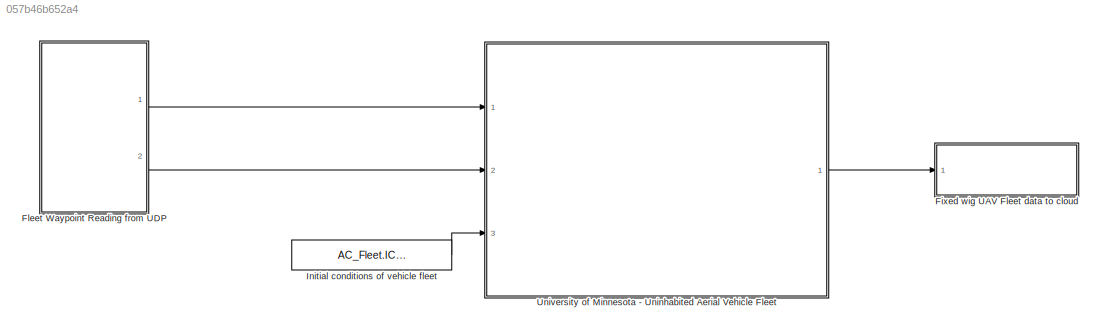
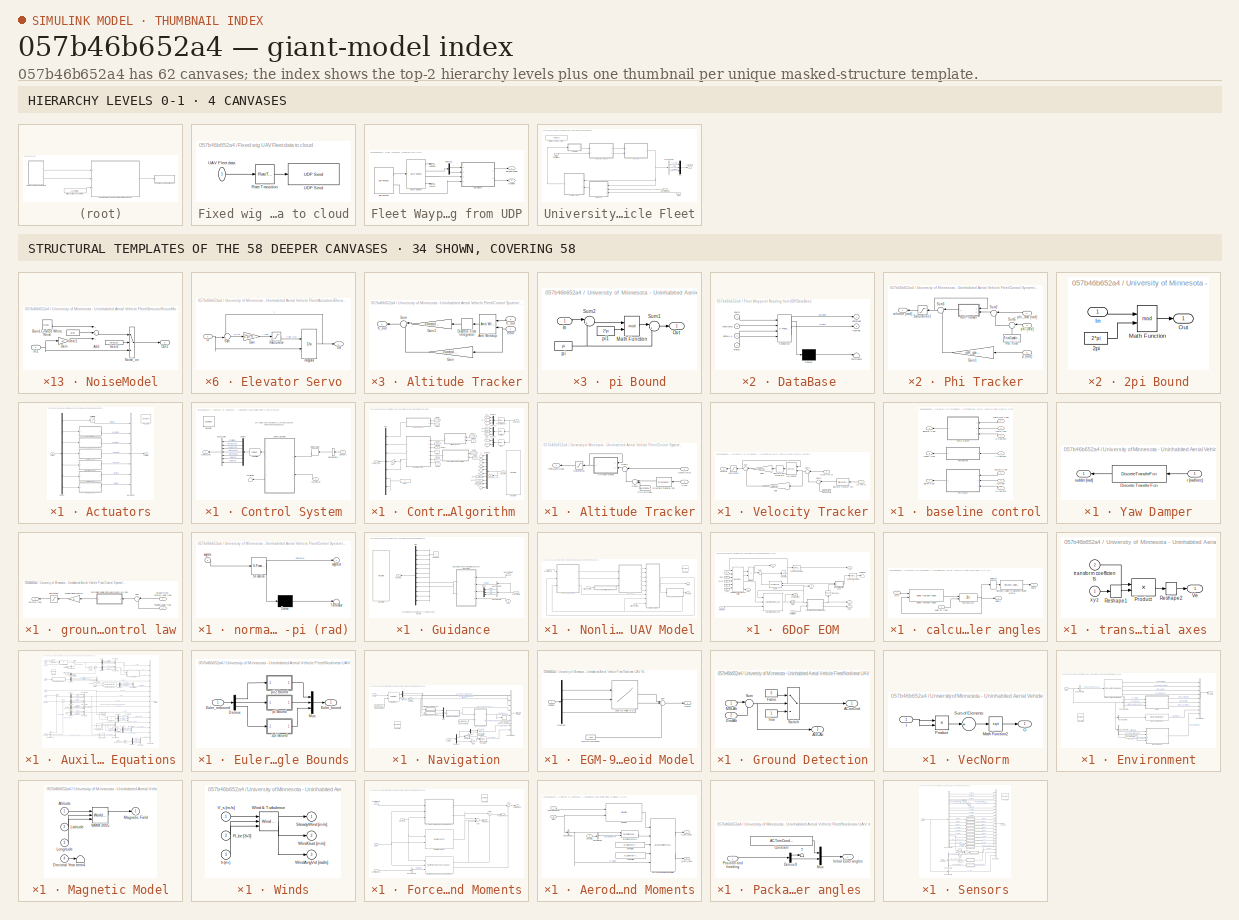
[diagram: thumbnail index - top-2 hierarchy levels (4 canvases) + 34 structural-template representatives of the remaining 58 canvases]
MODEL slx_057b46b652a4
KIND model
BLOCK [SubSystem] Fixed wig UAV Fleet data to cloud
  FunctionWithSeparateData = off
  MaskHideContents = off
  MinAlgLoopOccurrences = off
  Opaque = off
  Ports = [1]
  PropExecContextOutsideSubsystem = off
  RTWSystemCode = Auto
  RequestExecContextInheritance = off
BLOCK [RateTransition] Fixed wig UAV Fleet data to cloud/Rate Transition
  OutPortSampleTime = simPars.SampleTime*5
BLOCK [Inport] Fixed wig UAV Fleet data to cloud/UAV Fleet data
  IconDisplay = Port number
BLOCK [Reference] Fixed wig UAV Fleet data to cloud/UDP Send  REF=instrumentlib/UDP Send
  ByteOrder = BigEndian
  EnableBlockingMode = on
  Host = localhost
  LocalPort = 9091
  Port = 9090
  Ports = [1]
  SourceBlock = instrumentlib/UDP Send
  SourceType = UDP Send
BLOCK [SubSystem] Fleet Waypoint Reading from UDP
  FunctionWithSeparateData = off
  MaskHideContents = off
  MinAlgLoopOccurrences = off
  Opaque = off
  Ports = [0, 2]
  PropExecContextOutsideSubsystem = off
  RTWSystemCode = Auto
  RequestExecContextInheritance = off
BLOCK [Reference] Fleet Waypoint Reading from UDP/Byte Unpack  REF=etargetslib/Byte Unpack
  Ports = [1, 4]
  SourceBlock = etargetslib/Byte Unpack
  SourceType = Byte Unpack
  byteAlign = 1
  datatypes = {'uint8', 'uint16', 'double','uint16'}
  dimensions = {[3],[2],[30], [1]}
BLOCK [SubSystem] Fleet Waypoint Reading from UDP/DataBase 
  ErrorFcn = Stateflow.Translate.translate
  FunctionWithSeparateData = off
  MaskHideContents = off
  MinAlgLoopOccurrences = off
  Opaque = off
  PermitHierarchicalResolution = ExplicitOnly
  Ports = [4, 2]
  PropExecContextOutsideSubsystem = off
  RTWSystemCode = Auto
  RequestExecContextInheritance = off
  SFBlockType = MATLAB Function
  TreatAsAtomicUnit = on
BLOCK [Demux] Fleet Waypoint Reading from UDP/DataBase / Demux 
  Outputs = 1
  Ports = [1, 1]
BLOCK [S-Function] Fleet Waypoint Reading from UDP/DataBase / SFunction 
  EnableBusSupport = on
  FunctionName = sf_sfun
  PortCounts = [4 3]
  Ports = [4, 3]
  Tag = Stateflow S-Function UAV_Fleet2 2
BLOCK [Terminator] Fleet Waypoint Reading from UDP/DataBase / Terminator 
BLOCK [Outport] Fleet Waypoint Reading from UDP/DataBase /dataFleet
  IconDisplay = Port number
BLOCK [Inport] Fleet Waypoint Reading from UDP/DataBase /dataUAV
  IconDisplay = Port number
  Port = 3
BLOCK [Outport] Fleet Waypoint Reading from UDP/DataBase /fcnFleet
  IconDisplay = Port number
  Port = 2
BLOCK [Inport] Fleet Waypoint Reading from UDP/DataBase /functionID
  IconDisplay = Port number
  Port = 2
BLOCK [Inport] Fleet Waypoint Reading from UDP/DataBase /status
  IconDisplay = Port number
  Port = 4
BLOCK [Inport] Fleet Waypoint Reading from UDP/DataBase /uavID
  IconDisplay = Port number
BLOCK [Demux] Fleet Waypoint Reading from UDP/Demux1
  DisplayOption = bar
  Outputs = 2
  Ports = [1, 2]
BLOCK [Reference] Fleet Waypoint Reading from UDP/UDP Receive  REF=instrumentlib/UDP Receive
  ByteOrder = BigEndian
  DataSize = [249    1]
  DataType = uint8
  EnableBlockingMode = off
  Host = localhost
  LocalPort = 9040
  Port = 9040
  Ports = [0, 2]
  SampleTime = 0.02
  SourceBlock = instrumentlib/UDP Receive
  SourceType = UDP Receive
  Timeout = 10
BLOCK [Outport] Fleet Waypoint Reading from UDP/fcnFleet
  IconDisplay = Port number
  Port = 2
BLOCK [Terminator] Fleet Waypoint Reading from UDP/term0
BLOCK [Terminator] Fleet Waypoint Reading from UDP/term1
BLOCK [Outport] Fleet Waypoint Reading from UDP/waypointsFleet
  IconDisplay = Port number
BLOCK [Constant] Initial conditions of vehicle fleet
  Value = AC_Fleet.IC.Pos_Heading
  VectorParams1D = off
BLOCK [SubSystem] University of Minnesota - Uninhabited Aerial Vehicle Fleet
  FunctionWithSeparateData = off
  MaskHideContents = off
  MinAlgLoopOccurrences = off
  Opaque = off
  Ports = [3, 1]
  PropExecContextOutsideSubsystem = off
  RTWSystemCode = Auto
  RequestExecContextInheritance = off
  TreatAsAtomicUnit = on
BLOCK [Inport] University of Minnesota - Uninhabited Aerial Vehicle Fleet/A//C initial conditions
  IconDisplay = Port number
  Partition = on
  PartitionDimension = 2
  PartitionWidth = 1
  Port = 3
BLOCK [Inport] University of Minnesota - Uninhabited Aerial Vehicle Fleet/AC fcn
  IconDisplay = Port number
  Partition = on
  PartitionDimension = 1
  PartitionWidth = 1
  Port = 2
BLOCK [SubSystem] University of Minnesota - Uninhabited Aerial Vehicle Fleet/Actuators
  FunctionWithSeparateData = off
  MaskHideContents = off
  MinAlgLoopOccurrences = off
  Opaque = off
  Ports = [1, 1]
  PropExecContextOutsideSubsystem = off
  RTWSystemCode = Auto
  RequestExecContextInheritance = off
BLOCK [BusCreator] University of Minnesota - Uninhabited Aerial Vehicle Fleet/Actuators/Bus Creator
  DisplayOption = bar
  Inputs = 7
  Ports = [7, 1]
BLOCK [Demux] University of Minnesota - Uninhabited Aerial Vehicle Fleet/Actuators/Demux
  DisplayOption = bar
  Outputs = 7
  Ports = [1, 7]
BLOCK [SubSystem] University of Minnesota - Uninhabited Aerial Vehicle Fleet/Actuators/Elevator Servo
  FunctionWithSeparateData = off
  MaskHideContents = off
  MinAlgLoopOccurrences = off
  Opaque = off
  Ports = [1, 1]
  PropExecContextOutsideSubsystem = off
  RTWSystemCode = Auto
  RequestExecContextInheritance = off
BLOCK [Gain] University of Minnesota - Uninhabited Aerial Vehicle Fleet/Actuators/Elevator Servo/Gain
  Gain = 2*pi*freq
BLOCK [Inport] University of Minnesota - Uninhabited Aerial Vehicle Fleet/Actuators/Elevator Servo/In
  IconDisplay = Port number
BLOCK [Integrator] University of Minnesota - Uninhabited Aerial Vehicle Fleet/Actuators/Elevator Servo/Integrator
  IgnoreLimit = on
  InitialConditionSource = external
  LimitOutput = on
  LowerSaturationLimit = POS_lo
  Ports = [2, 1]
  UpperSaturationLimit = POS_hi
BLOCK [Outport] University of Minnesota - Uninhabited Aerial Vehicle Fleet/Actuators/Elevator Servo/Out
  IconDisplay = Port number
  PortDimensions = 1
BLOCK [Saturate] University of Minnesota - Uninhabited Aerial Vehicle Fleet/Actuators/Elevator Servo/Rate Limiter
  InputPortMap = u0
  LowerLimit = -RL
  Ports = [1, 1]
  UpperLimit = RL
BLOCK [Sum] University of Minnesota - Uninhabited Aerial Vehicle Fleet/Actuators/Elevator Servo/Sum
  IconShape = round
  Inputs = -+|
  Ports = [2, 1]
BLOCK [SubSystem] University of Minnesota - Uninhabited Aerial Vehicle Fleet/Actuators/Left Aileron Servo
  FunctionWithSeparateData = off
  MaskHideContents = off
  MinAlgLoopOccurrences = off
  Opaque = off
  Ports = [1, 1]
  PropExecContextOutsideSubsystem = off
  RTWSystemCode = Auto
  RequestExecContextInheritance = off
BLOCK [Gain] University of Minnesota - Uninhabited Aerial Vehicle Fleet/Actuators/Left Aileron Servo/Gain
  Gain = 2*pi*freq
BLOCK [Inport] University of Minnesota - Uninhabited Aerial Vehicle Fleet/Actuators/Left Aileron Servo/In
  IconDisplay = Port number
BLOCK [Integrator] University of Minnesota - Uninhabited Aerial Vehicle Fleet/Actuators/Left Aileron Servo/Integrator
  IgnoreLimit = on
  InitialConditionSource = external
  LimitOutput = on
  LowerSaturationLimit = POS_lo
  Ports = [2, 1]
  UpperSaturationLimit = POS_hi
BLOCK [Outport] University of Minnesota - Uninhabited Aerial Vehicle Fleet/Actuators/Left Aileron Servo/Out
  IconDisplay = Port number
  PortDimensions = 1
BLOCK [Saturate] University of Minnesota - Uninhabited Aerial Vehicle Fleet/Actuators/Left Aileron Servo/Rate Limiter
  InputPortMap = u0
  LowerLimit = -RL
  Ports = [1, 1]
  UpperLimit = RL
BLOCK [Sum] University of Minnesota - Uninhabited Aerial Vehicle Fleet/Actuators/Left Aileron Servo/Sum
  IconShape = round
  Inputs = -+|
  Ports = [2, 1]
BLOCK [SubSystem] University of Minnesota - Uninhabited Aerial Vehicle Fleet/Actuators/Left Flap Servo
  FunctionWithSeparateData = off
  MaskHideContents = off
  MinAlgLoopOccurrences = off
  Opaque = off
  Ports = [1, 1]
  PropExecContextOutsideSubsystem = off
  RTWSystemCode = Auto
  RequestExecContextInheritance = off
BLOCK [Gain] University of Minnesota - Uninhabited Aerial Vehicle Fleet/Actuators/Left Flap Servo/Gain
  Gain = 2*pi*freq
BLOCK [Inport] University of Minnesota - Uninhabited Aerial Vehicle Fleet/Actuators/Left Flap Servo/In
  IconDisplay = Port number
BLOCK [Integrator] University of Minnesota - Uninhabited Aerial Vehicle Fleet/Actuators/Left Flap Servo/Integrator
  IgnoreLimit = on
  InitialConditionSource = external
  LimitOutput = on
  LowerSaturationLimit = POS_lo
  Ports = [2, 1]
  UpperSaturationLimit = POS_hi
BLOCK [Outport] University of Minnesota - Uninhabited Aerial Vehicle Fleet/Actuators/Left Flap Servo/Out
  IconDisplay = Port number
  PortDimensions = 1
BLOCK [Saturate] University of Minnesota - Uninhabited Aerial Vehicle Fleet/Actuators/Left Flap Servo/Rate Limiter
  InputPortMap = u0
  LowerLimit = -RL
  Ports = [1, 1]
  UpperLimit = RL
BLOCK [Sum] University of Minnesota - Uninhabited Aerial Vehicle Fleet/Actuators/Left Flap Servo/Sum
  IconShape = round
  Inputs = -+|
  Ports = [2, 1]
BLOCK [Reference] University of Minnesota - Uninhabited Aerial Vehicle Fleet/Actuators/README  REF=simulink/Model-Wide
Utilities/DocBlock
  DocumentType = Text
  Ports = []
  SourceBlock = simulink/Model-Wide\nUtilities/DocBlock
  SourceType = DocBlock
  UserDataPersistent = on
BLOCK [SubSystem] University of Minnesota - Uninhabited Aerial Vehicle Fleet/Actuators/Right Aileron Servo
  FunctionWithSeparateData = off
  MaskHideContents = off
  MinAlgLoopOccurrences = off
  Opaque = off
  Ports = [1, 1]
  PropExecContextOutsideSubsystem = off
  RTWSystemCode = Auto
  RequestExecContextInheritance = off
BLOCK [Gain] University of Minnesota - Uninhabited Aerial Vehicle Fleet/Actuators/Right Aileron Servo/Gain
  Gain = 2*pi*freq
BLOCK [Inport] University of Minnesota - Uninhabited Aerial Vehicle Fleet/Actuators/Right Aileron Servo/In
  IconDisplay = Port number
BLOCK [Integrator] University of Minnesota - Uninhabited Aerial Vehicle Fleet/Actuators/Right Aileron Servo/Integrator
  IgnoreLimit = on
  InitialConditionSource = external
  LimitOutput = on
  LowerSaturationLimit = POS_lo
  Ports = [2, 1]
  UpperSaturationLimit = POS_hi
BLOCK [Outport] University of Minnesota - Uninhabited Aerial Vehicle Fleet/Actuators/Right Aileron Servo/Out
  IconDisplay = Port number
  PortDimensions = 1
BLOCK [Saturate] University of Minnesota - Uninhabited Aerial Vehicle Fleet/Actuators/Right Aileron Servo/Rate Limiter
  InputPortMap = u0
  LowerLimit = -RL
  Ports = [1, 1]
  UpperLimit = RL
BLOCK [Sum] University of Minnesota - Uninhabited Aerial Vehicle Fleet/Actuators/Right Aileron Servo/Sum
  IconShape = round
  Inputs = -+|
  Ports = [2, 1]
BLOCK [SubSystem] University of Minnesota - Uninhabited Aerial Vehicle Fleet/Actuators/Right Flap Servo
  FunctionWithSeparateData = off
  MaskHideContents = off
  MinAlgLoopOccurrences = off
  Opaque = off
  Ports = [1, 1]
  PropExecContextOutsideSubsystem = off
  RTWSystemCode = Auto
  RequestExecContextInheritance = off
BLOCK [Gain] University of Minnesota - Uninhabited Aerial Vehicle Fleet/Actuators/Right Flap Servo/Gain
  Gain = 2*pi*freq
BLOCK [Inport] University of Minnesota - Uninhabited Aerial Vehicle Fleet/Actuators/Right Flap Servo/In
  IconDisplay = Port number
BLOCK [Integrator] University of Minnesota - Uninhabited Aerial Vehicle Fleet/Actuators/Right Flap Servo/Integrator
  IgnoreLimit = on
  InitialConditionSource = external
  LimitOutput = on
  LowerSaturationLimit = POS_lo
  Ports = [2, 1]
  UpperSaturationLimit = POS_hi
BLOCK [Outport] University of Minnesota - Uninhabited Aerial Vehicle Fleet/Actuators/Right Flap Servo/Out
  IconDisplay = Port number
  PortDimensions = 1
BLOCK [Saturate] University of Minnesota - Uninhabited Aerial Vehicle Fleet/Actuators/Right Flap Servo/Rate Limiter
  InputPortMap = u0
  LowerLimit = -RL
  Ports = [1, 1]
  UpperLimit = RL
BLOCK [Sum] University of Minnesota - Uninhabited Aerial Vehicle Fleet/Actuators/Right Flap Servo/Sum
  IconShape = round
  Inputs = -+|
  Ports = [2, 1]
BLOCK [SubSystem] University of Minnesota - Uninhabited Aerial Vehicle Fleet/Actuators/Rudder Servo
  FunctionWithSeparateData = off
  MaskHideContents = off
  MinAlgLoopOccurrences = off
  Opaque = off
  Ports = [1, 1]
  PropExecContextOutsideSubsystem = off
  RTWSystemCode = Auto
  RequestExecContextInheritance = off
BLOCK [Gain] University of Minnesota - Uninhabited Aerial Vehicle Fleet/Actuators/Rudder Servo/Gain
  Gain = 2*pi*freq
BLOCK [Inport] University of Minnesota - Uninhabited Aerial Vehicle Fleet/Actuators/Rudder Servo/In
  IconDisplay = Port number
BLOCK [Integrator] University of Minnesota - Uninhabited Aerial Vehicle Fleet/Actuators/Rudder Servo/Integrator
  IgnoreLimit = on
  InitialConditionSource = external
  LimitOutput = on
  LowerSaturationLimit = POS_lo
  Ports = [2, 1]
  UpperSaturationLimit = POS_hi
BLOCK [Outport] University of Minnesota - Uninhabited Aerial Vehicle Fleet/Actuators/Rudder Servo/Out
  IconDisplay = Port number
  PortDimensions = 1
BLOCK [Saturate] University of Minnesota - Uninhabited Aerial Vehicle Fleet/Actuators/Rudder Servo/Rate Limiter
  InputPortMap = u0
  LowerLimit = -RL
  Ports = [1, 1]
  UpperLimit = RL
BLOCK [Sum] University of Minnesota - Uninhabited Aerial Vehicle Fleet/Actuators/Rudder Servo/Sum
  IconShape = round
  Inputs = -+|
  Ports = [2, 1]
BLOCK [Inport] University of Minnesota - Uninhabited Aerial Vehicle Fleet/Actuators/cmds
  IconDisplay = Port number
BLOCK [Outport] University of Minnesota - Uninhabited Aerial Vehicle Fleet/Actuators/controls
  IconDisplay = Port number
BLOCK [Saturate] University of Minnesota - Uninhabited Aerial Vehicle Fleet/Actuators/throttle limits
  InputPortMap = u0
  LowerLimit = AC.Actuator.throttle.NegLim
  Ports = [1, 1]
  UpperLimit = AC.Actuator.throttle.PosLim
BLOCK [BusSelector] University of Minnesota - Uninhabited Aerial Vehicle Fleet/Bus Selector3
  OutputSignals = X_e [m],h [m],psi [rad]
  Ports = [1, 3]
BLOCK [SubSystem] University of Minnesota - Uninhabited Aerial Vehicle Fleet/Control System
  FunctionWithSeparateData = off
  MaskHideContents = off
  MinAlgLoopOccurrences = off
  Opaque = off
  Ports = [2, 1]
  PropExecContextOutsideSubsystem = off
  RTWSystemCode = Auto
  RequestExecContextInheritance = off
BLOCK [BusCreator] University of Minnesota - Uninhabited Aerial Vehicle Fleet/Control System/Bus Creator
  DisplayOption = bar
  Inputs = 7
  Ports = [7, 1]
BLOCK [BusSelector] University of Minnesota - Uninhabited Aerial Vehicle Fleet/Control System/Bus Selector1
  OutputAsBus = on
  OutputSignals = phi [rad],theta [rad],psi [rad],p [rad/s],q [rad/s],r [rad/s],Ax [m/s^2],Ay [m/s^2],Az [m/s^2],h [m],V_s [m/s],alpha [rad],beta [rad],Geodetic Latitude [rad],Geodetic Longitude [rad],Altitude [m],Xdot [m/s],Ydot [m/s],Zdot [m/s]
  Ports = [1, 1]
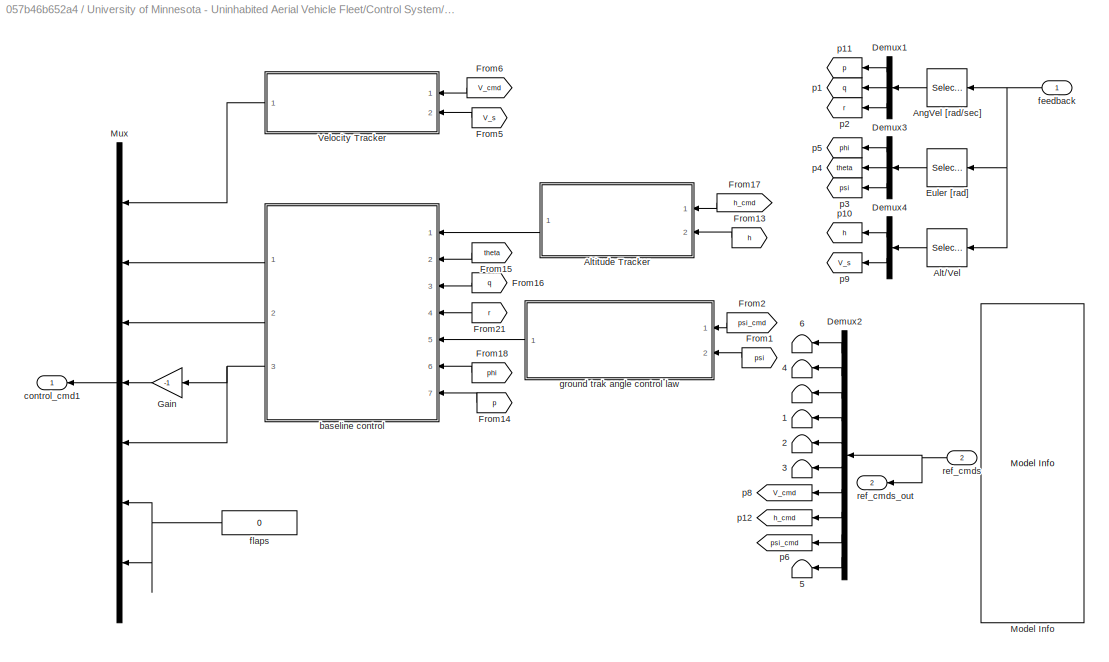
BLOCK [SubSystem] University of Minnesota - Uninhabited Aerial Vehicle Fleet/Control System/Control_Algorithm 
  FunctionWithSeparateData = off
  MaskHideContents = off
  MinAlgLoopOccurrences = off
  Opaque = off
  Ports = [2, 2]
  PropExecContextOutsideSubsystem = off
  RTWSystemCode = Auto
  RequestExecContextInheritance = off
BLOCK [Terminator] University of Minnesota - Uninhabited Aerial Vehicle Fleet/Control System/Control_Algorithm / 
BLOCK [Terminator] University of Minnesota - Uninhabited Aerial Vehicle Fleet/Control System/Control_Algorithm / 1
BLOCK [Terminator] University of Minnesota - Uninhabited Aerial Vehicle Fleet/Control System/Control_Algorithm / 2
BLOCK [Terminator] University of Minnesota - Uninhabited Aerial Vehicle Fleet/Control System/Control_Algorithm / 3
BLOCK [Terminator] University of Minnesota - Uninhabited Aerial Vehicle Fleet/Control System/Control_Algorithm / 4
BLOCK [Terminator] University of Minnesota - Uninhabited Aerial Vehicle Fleet/Control System/Control_Algorithm / 5
BLOCK [Terminator] University of Minnesota - Uninhabited Aerial Vehicle Fleet/Control System/Control_Algorithm / 6
BLOCK [Selector] University of Minnesota - Uninhabited Aerial Vehicle Fleet/Control System/Control_Algorithm /Alt//Vel
  IndexOptions = Index vector (dialog)
  Indices = [10:11]
  InputPortWidth = 19
  OutputSizes = 1
  Ports = [1, 1]
BLOCK [SubSystem] University of Minnesota - Uninhabited Aerial Vehicle Fleet/Control System/Control_Algorithm /Altitude Tracker
  FunctionWithSeparateData = off
  MaskHideContents = off
  MinAlgLoopOccurrences = off
  Opaque = off
  Ports = [2, 1]
  PropExecContextOutsideSubsystem = off
  RTWSystemCode = Auto
  RequestExecContextInheritance = off
BLOCK [SubSystem] University of Minnesota - Uninhabited Aerial Vehicle Fleet/Control System/Control_Algorithm /Altitude Tracker/Altitude Tracker
  FunctionWithSeparateData = off
  MaskHideContents = off
  MinAlgLoopOccurrences = off
  Opaque = off
  Ports = [2, 1]
  PropExecContextOutsideSubsystem = off
  RTWSystemCode = Auto
  RequestExecContextInheritance = off
BLOCK [Inport] University of Minnesota - Uninhabited Aerial Vehicle Fleet/Control System/Control_Algorithm /Altitude Tracker/Altitude Tracker/ h_out
  IconDisplay = Port number
BLOCK [Reference] University of Minnesota - Uninhabited Aerial Vehicle Fleet/Control System/Control_Algorithm /Altitude Tracker/Altitude Tracker/Anti Windup  REF=Actuator_Lib/Anti Windup
  MAX_DEF = AC.Actuator.elevator.PosLim-TrimCondition.Inputs.elevator
  MIN_DEF = AC.Actuator.elevator.NegLim-TrimCondition.Inputs.elevator
  Ports = [2, 1]
  SourceBlock = Actuator_Lib/Anti Windup
  SourceType = Integrator Anti-Windup
  gain_sign = on
BLOCK [DiscreteIntegrator] University of Minnesota - Uninhabited Aerial Vehicle Fleet/Control System/Control_Algorithm /Altitude Tracker/Altitude Tracker/Discrete-Time Integrator
  ICPrevOutput = DiscIntNeverNeededParam
  ICPrevScaledInput = DiscIntNeverNeededParam
  Ports = [1, 1]
  SampleTime = .02
BLOCK [Gain] University of Minnesota - Uninhabited Aerial Vehicle Fleet/Control System/Control_Algorithm /Altitude Tracker/Altitude Tracker/Gain
  Gain = control.kp_AT
  OutDataTypeStr = Inherit: Inherit via internal rule
  ParamDataTypeStr = Inherit: Inherit via internal rule
  SaturateOnIntegerOverflow = off
BLOCK [Gain] University of Minnesota - Uninhabited Aerial Vehicle Fleet/Control System/Control_Algorithm /Altitude Tracker/Altitude Tracker/Gain1
  Gain = control.ki_AT
  OutDataTypeStr = Inherit: Inherit via internal rule
  ParamDataTypeStr = Inherit: Inherit via internal rule
  SaturateOnIntegerOverflow = off
BLOCK [Sum] University of Minnesota - Uninhabited Aerial Vehicle Fleet/Control System/Control_Algorithm /Altitude Tracker/Altitude Tracker/Sum
  IconShape = round
  InputSameDT = off
  Inputs = |++
  OutDataTypeStr = Inherit: Inherit via internal rule
  Ports = [2, 1]
  SaturateOnIntegerOverflow = off
BLOCK [Inport] University of Minnesota - Uninhabited Aerial Vehicle Fleet/Control System/Control_Algorithm /Altitude Tracker/Altitude Tracker/error
  IconDisplay = Port number
  Port = 2
BLOCK [Outport] University of Minnesota - Uninhabited Aerial Vehicle Fleet/Control System/Control_Algorithm /Altitude Tracker/Altitude Tracker/h_out
  IconDisplay = Port number
BLOCK [DiscreteTransferFcn] University of Minnesota - Uninhabited Aerial Vehicle Fleet/Control System/Control_Algorithm /Altitude Tracker/Discrete Transfer Fcn
  Denominator = [1 control.LP_filter(2,2)]
  InitialStates = OperatingPoint.op_report.Outputs(4).y/control.LP_filter(1,2)
  InputPortMap = u0
  Numerator = [control.LP_filter(1,2)]
  Ports = [1, 1]
  SampleTime = SampleTime
BLOCK [Saturate] University of Minnesota - Uninhabited Aerial Vehicle Fleet/Control System/Control_Algorithm /Altitude Tracker/Saturation
  InputPortMap = u0
  LowerLimit = -control.theta_sat*pi/180
  Ports = [1, 1]
  SampleTime = SampleTime
  UpperLimit = control.theta_sat*pi/180
BLOCK [Sum] University of Minnesota - Uninhabited Aerial Vehicle Fleet/Control System/Control_Algorithm /Altitude Tracker/Sum4
  IconShape = round
  InputSameDT = off
  Inputs = |+-
  OutDataTypeStr = Inherit: Inherit via internal rule
  Ports = [2, 1]
  SampleTime = SampleTime
  SaturateOnIntegerOverflow = off
BLOCK [Sum] University of Minnesota - Uninhabited Aerial Vehicle Fleet/Control System/Control_Algorithm /Altitude Tracker/Sum5
  IconShape = round
  InputSameDT = off
  Inputs = |+-
  OutDataTypeStr = Inherit: Inherit via internal rule
  Ports = [2, 1]
  SampleTime = SampleTime
  SaturateOnIntegerOverflow = off
BLOCK [Inport] University of Minnesota - Uninhabited Aerial Vehicle Fleet/Control System/Control_Algorithm /Altitude Tracker/h [m]
  IconDisplay = Port number
  Port = 2
BLOCK [Inport] University of Minnesota - Uninhabited Aerial Vehicle Fleet/Control System/Control_Algorithm /Altitude Tracker/h_cmd [m//s]
  IconDisplay = Port number
BLOCK [Outport] University of Minnesota - Uninhabited Aerial Vehicle Fleet/Control System/Control_Algorithm /Altitude Tracker/theta_cmd [rad]
  IconDisplay = Port number
BLOCK [Constant] University of Minnesota - Uninhabited Aerial Vehicle Fleet/Control System/Control_Algorithm /Altitude Tracker/trim altitude
  Value = OperatingPoint.op_report.Outputs(4).y
BLOCK [Selector] University of Minnesota - Uninhabited Aerial Vehicle Fleet/Control System/Control_Algorithm /AngVel [rad//sec]
  IndexOptions = Index vector (dialog)
  Indices = [4:6]
  InputPortWidth = 19
  OutputSizes = 1
  Ports = [1, 1]
BLOCK [Demux] University of Minnesota - Uninhabited Aerial Vehicle Fleet/Control System/Control_Algorithm /Demux1
  DisplayOption = bar
  Outputs = 3
  Ports = [1, 3]
BLOCK [Demux] University of Minnesota - Uninhabited Aerial Vehicle Fleet/Control System/Control_Algorithm /Demux2
  DisplayOption = bar
  Outputs = [1 1 1 1 1 1 1 1 1 3]
  Ports = [1, 10]
BLOCK [Demux] University of Minnesota - Uninhabited Aerial Vehicle Fleet/Control System/Control_Algorithm /Demux3
  DisplayOption = bar
  Outputs = 3
  Ports = [1, 3]
BLOCK [Demux] University of Minnesota - Uninhabited Aerial Vehicle Fleet/Control System/Control_Algorithm /Demux4
  DisplayOption = bar
  Outputs = 2
  Ports = [1, 2]
BLOCK [Selector] University of Minnesota - Uninhabited Aerial Vehicle Fleet/Control System/Control_Algorithm /Euler [rad]
  IndexOptions = Index vector (dialog)
  Indices = [1:3]
  InputPortWidth = 19
  OutputSizes = 1
  Ports = [1, 1]
BLOCK [From] University of Minnesota - Uninhabited Aerial Vehicle Fleet/Control System/Control_Algorithm /From1
  GotoTag = psi
BLOCK [From] University of Minnesota - Uninhabited Aerial Vehicle Fleet/Control System/Control_Algorithm /From13
  GotoTag = h
BLOCK [From] University of Minnesota - Uninhabited Aerial Vehicle Fleet/Control System/Control_Algorithm /From14
  GotoTag = p
BLOCK [From] University of Minnesota - Uninhabited Aerial Vehicle Fleet/Control System/Control_Algorithm /From15
  GotoTag = theta
BLOCK [From] University of Minnesota - Uninhabited Aerial Vehicle Fleet/Control System/Control_Algorithm /From16
  GotoTag = q
BLOCK [From] University of Minnesota - Uninhabited Aerial Vehicle Fleet/Control System/Control_Algorithm /From17
  GotoTag = h_cmd
BLOCK [From] University of Minnesota - Uninhabited Aerial Vehicle Fleet/Control System/Control_Algorithm /From18
  GotoTag = phi
BLOCK [From] University of Minnesota - Uninhabited Aerial Vehicle Fleet/Control System/Control_Algorithm /From2
  GotoTag = psi_cmd
BLOCK [From] University of Minnesota - Uninhabited Aerial Vehicle Fleet/Control System/Control_Algorithm /From21
  GotoTag = r
BLOCK [From] University of Minnesota - Uninhabited Aerial Vehicle Fleet/Control System/Control_Algorithm /From5
  GotoTag = V_s
BLOCK [From] University of Minnesota - Uninhabited Aerial Vehicle Fleet/Control System/Control_Algorithm /From6
  GotoTag = V_cmd
BLOCK [Gain] University of Minnesota - Uninhabited Aerial Vehicle Fleet/Control System/Control_Algorithm /Gain
  Gain = -1
  OutDataTypeStr = Inherit: Inherit via internal rule
  ParamDataTypeStr = Inherit: Inherit via internal rule
  SaturateOnIntegerOverflow = off
BLOCK [Reference] University of Minnesota - Uninhabited Aerial Vehicle Fleet/Control System/Control_Algorithm /Model Info  REF=simulink/Model-Wide
Utilities/Model Info
  DisplayStringWithTags = Ref Cmd Port Info\n\n1. phi_cmd\n2. theta_cmd\n3. psi_cmd\n4. p_cmd\n5. q_cmd\n6. r_cmd\n7. V_s_cmd\n8. h_cmd\n9. gndtrk_cmd\n10. aoa_cmd\n11. aos_cmd\n12. gamma_cmd\n13. signal_0\n14. signal_1\n15. signal_2\n16. signal_3\n17. signal_4\n18. signal_5\n19. signal_6\n20. signal_7\n21. signal_8\n22. signal_9
  Frame = on
  HorizontalTextAlignment = Center
  InitialBlockCM = None
  LeftAlignmentValue = 0.5
  MaskDisplayString = Ref Cmd Port Info\n\n1. phi_cmd\n2. theta_cmd\n3. psi_cmd\n4. p_cmd\n5. q_cmd\n6. r_cmd\n7. V_s_cmd\n8. h_cmd\n9. gndtrk_cmd\n10. aoa_cmd\n11. aos_cmd\n12. gamma_cmd\n13. signal_0\n14. signal_1\n15. signal_2\n16. signal_3\n17. signal_4\n18. signal_5\n19. signal_6\n20. signal_7\n21. signal_8\n22. signal_9
  Ports = []
  SourceBlock = simulink/Model-Wide\nUtilities/Model Info
  SourceBlockDiagram = UAV_Fleet2
  SourceType = CMBlock
  TagMaxNumber = 20
BLOCK [Mux] University of Minnesota - Uninhabited Aerial Vehicle Fleet/Control System/Control_Algorithm /Mux
  DisplayOption = bar
  Inputs = 7
  Ports = [7, 1]
BLOCK [SubSystem] University of Minnesota - Uninhabited Aerial Vehicle Fleet/Control System/Control_Algorithm /Velocity Tracker
  FunctionWithSeparateData = off
  MaskHideContents = off
  MinAlgLoopOccurrences = off
  Opaque = off
  Ports = [2, 1]
  PropExecContextOutsideSubsystem = off
  RTWSystemCode = Auto
  RequestExecContextInheritance = off
BLOCK [Constant] University of Minnesota - Uninhabited Aerial Vehicle Fleet/Control System/Control_Algorithm /Velocity Tracker/    
  Value = TrimCondition.WindAxesIni(1)
BLOCK [Reference] University of Minnesota - Uninhabited Aerial Vehicle Fleet/Control System/Control_Algorithm /Velocity Tracker/Anti Windup  REF=Actuator_Lib/Anti Windup
  MAX_DEF = AC.Actuator.throttle.PosLim-TrimCondition.Inputs.throttle
  MIN_DEF = AC.Actuator.throttle.NegLim-TrimCondition.Inputs.throttle
  Ports = [2, 1]
  SourceBlock = Actuator_Lib/Anti Windup
  SourceType = Integrator Anti-Windup
  gain_sign = on
BLOCK [DiscreteTransferFcn] University of Minnesota - Uninhabited Aerial Vehicle Fleet/Control System/Control_Algorithm /Velocity Tracker/Discrete Transfer Fcn
  Denominator = [1 control.LP_filter(2,2)]
  InitialStates = TrimCondition.target.V_s/control.LP_filter(1,2)
  InputPortMap = u0
  Numerator = [control.LP_filter(1,2)]
  Ports = [1, 1]
  SampleTime = SampleTime
BLOCK [DiscreteIntegrator] University of Minnesota - Uninhabited Aerial Vehicle Fleet/Control System/Control_Algorithm /Velocity Tracker/Discrete-Time Integrator
  ICPrevOutput = DiscIntNeverNeededParam
  ICPrevScaledInput = DiscIntNeverNeededParam
  Ports = [1, 1]
  SampleTime = .02
BLOCK [Gain] University of Minnesota - Uninhabited Aerial Vehicle Fleet/Control System/Control_Algorithm /Velocity Tracker/Gain
  Gain = control.kp_VT
  OutDataTypeStr = Inherit: Inherit via internal rule
  ParamDataTypeStr = Inherit: Inherit via internal rule
  SaturateOnIntegerOverflow = off
BLOCK [Gain] University of Minnesota - Uninhabited Aerial Vehicle Fleet/Control System/Control_Algorithm /Velocity Tracker/Gain1
  Gain = control.ki_VT
  OutDataTypeStr = Inherit: Inherit via internal rule
  ParamDataTypeStr = Inherit: Inherit via internal rule
  SaturateOnIntegerOverflow = off
BLOCK [Saturate] University of Minnesota - Uninhabited Aerial Vehicle Fleet/Control System/Control_Algorithm /Velocity Tracker/Saturation1
  InputPortMap = u0
  LowerLimit = AC.Actuator.throttle.NegLim-TrimCondition.Inputs.throttle
  Ports = [1, 1]
  SampleTime = SampleTime
  UpperLimit = AC.Actuator.throttle.PosLim-TrimCondition.Inputs.throttle
BLOCK [Sum] University of Minnesota - Uninhabited Aerial Vehicle Fleet/Control System/Control_Algorithm /Velocity Tracker/Sum
  IconShape = round
  InputSameDT = off
  Inputs = |++
  OutDataTypeStr = Inherit: Inherit via internal rule
  Ports = [2, 1]
  SaturateOnIntegerOverflow = off
BLOCK [Sum] University of Minnesota - Uninhabited Aerial Vehicle Fleet/Control System/Control_Algorithm /Velocity Tracker/Sum1
  IconShape = round
  InputSameDT = off
  Inputs = |+-
  OutDataTypeStr = Inherit: Inherit via internal rule
  Ports = [2, 1]
  SaturateOnIntegerOverflow = off
BLOCK [Sum] University of Minnesota - Uninhabited Aerial Vehicle Fleet/Control System/Control_Algorithm /Velocity Tracker/Sum5
  IconShape = round
  InputSameDT = off
  Inputs = |+-
  OutDataTypeStr = Inherit: Inherit via internal rule
  Ports = [2, 1]
  SampleTime = SampleTime
  SaturateOnIntegerOverflow = off
BLOCK [Outport] University of Minnesota - Uninhabited Aerial Vehicle Fleet/Control System/Control_Algorithm /Velocity Tracker/Throttle 
  IconDisplay = Port number
BLOCK [Inport] University of Minnesota - Uninhabited Aerial Vehicle Fleet/Control System/Control_Algorithm /Velocity Tracker/V_cmd [m//s]
  IconDisplay = Port number
BLOCK [Inport] University of Minnesota - Uninhabited Aerial Vehicle Fleet/Control System/Control_Algorithm /Velocity Tracker/V_s [m//s]
  IconDisplay = Port number
  Port = 2
BLOCK [SubSystem] University of Minnesota - Uninhabited Aerial Vehicle Fleet/Control System/Control_Algorithm /baseline control
  FunctionWithSeparateData = off
  MaskHideContents = off
  MinAlgLoopOccurrences = off
  Opaque = off
  Ports = [7, 3]
  PropExecContextOutsideSubsystem = off
  RTWSystemCode = Auto
  RequestExecContextInheritance = off
BLOCK [SubSystem] University of Minnesota - Uninhabited Aerial Vehicle Fleet/Control System/Control_Algorithm /baseline control/Phi Tracker
  FunctionWithSeparateData = off
  MaskHideContents = off
  MinAlgLoopOccurrences = off
  Opaque = off
  Ports = [3, 1]
  PropExecContextOutsideSubsystem = off
  RTWSystemCode = Auto
  RequestExecContextInheritance = off
BLOCK [Gain] University of Minnesota - Uninhabited Aerial Vehicle Fleet/Control System/Control_Algorithm /baseline control/Phi Tracker/Gain1
  Gain = roll_gains(3)
  OutDataTypeStr = Inherit: Inherit via internal rule
  ParamDataTypeStr = Inherit: Inherit via internal rule
  SaturateOnIntegerOverflow = off
BLOCK [Constant] University of Minnesota - Uninhabited Aerial Vehicle Fleet/Control System/Control_Algorithm /baseline control/Phi Tracker/Phi Trim
  Value = TrimCondition.AttitudeIni(1)
BLOCK [SubSystem] University of Minnesota - Uninhabited Aerial Vehicle Fleet/Control System/Control_Algorithm /baseline control/Phi Tracker/Roll Tracker
  FunctionWithSeparateData = off
  MaskHideContents = off
  MinAlgLoopOccurrences = off
  Opaque = off
  Ports = [2, 1]
  PropExecContextOutsideSubsystem = off
  RTWSystemCode = Auto
  RequestExecContextInheritance = off
BLOCK [Reference] University of Minnesota - Uninhabited Aerial Vehicle Fleet/Control System/Control_Algorithm /baseline control/Phi Tracker/Roll Tracker/Anti Windup  REF=Actuator_Lib/Anti Windup
  MAX_DEF = AC.Actuator.r_aileron.PosLim-TrimCondition.Inputs.r_aileron
  MIN_DEF = AC.Actuator.r_aileron.NegLim-TrimCondition.Inputs.r_aileron
  Ports = [2, 1]
  SourceBlock = Actuator_Lib/Anti Windup
  SourceType = Integrator Anti-Windup
  gain_sign = off
BLOCK [DiscreteIntegrator] University of Minnesota - Uninhabited Aerial Vehicle Fleet/Control System/Control_Algorithm /baseline control/Phi Tracker/Roll Tracker/Discrete-Time Integrator
  ICPrevOutput = DiscIntNeverNeededParam
  ICPrevScaledInput = DiscIntNeverNeededParam
  Ports = [1, 1]
  SampleTime = .02
BLOCK [Gain] University of Minnesota - Uninhabited Aerial Vehicle Fleet/Control System/Control_Algorithm /baseline control/Phi Tracker/Roll Tracker/Gain
  Gain = roll_gains(1)
  OutDataTypeStr = Inherit: Inherit via internal rule
  ParamDataTypeStr = Inherit: Inherit via internal rule
  SampleTime = SampleTime
  SaturateOnIntegerOverflow = off
BLOCK [Gain] University of Minnesota - Uninhabited Aerial Vehicle Fleet/Control System/Control_Algorithm /baseline control/Phi Tracker/Roll Tracker/Gain1
  Gain = roll_gains(2)
  OutDataTypeStr = Inherit: Inherit via internal rule
  ParamDataTypeStr = Inherit: Inherit via internal rule
  SampleTime = SampleTime
  SaturateOnIntegerOverflow = off
BLOCK [Sum] University of Minnesota - Uninhabited Aerial Vehicle Fleet/Control System/Control_Algorithm /baseline control/Phi Tracker/Roll Tracker/Sum
  IconShape = round
  InputSameDT = off
  Inputs = |++
  OutDataTypeStr = Inherit: Inherit via internal rule
  Ports = [2, 1]
  SampleTime = .02
  SaturateOnIntegerOverflow = off
BLOCK [Outport] University of Minnesota - Uninhabited Aerial Vehicle Fleet/Control System/Control_Algorithm /baseline control/Phi Tracker/Roll Tracker/aileron
  IconDisplay = Port number
BLOCK [Inport] University of Minnesota - Uninhabited Aerial Vehicle Fleet/Control System/Control_Algorithm /baseline control/Phi Tracker/Roll Tracker/aileron cmd
  IconDisplay = Port number
BLOCK [Inport] University of Minnesota - Uninhabited Aerial Vehicle Fleet/Control System/Control_Algorithm /baseline control/Phi Tracker/Roll Tracker/error
  IconDisplay = Port number
  Port = 2
BLOCK [Saturate] University of Minnesota - Uninhabited Aerial Vehicle Fleet/Control System/Control_Algorithm /baseline control/Phi Tracker/Saturation1
  InputPortMap = u0
  LowerLimit = AC.Actuator.r_aileron.NegLim-TrimCondition.Inputs.r_aileron
  Ports = [1, 1]
  SampleTime = SampleTime
  UpperLimit = AC.Actuator.r_aileron.PosLim-TrimCondition.Inputs.r_aileron
BLOCK [Sum] University of Minnesota - Uninhabited Aerial Vehicle Fleet/Control System/Control_Algorithm /baseline control/Phi Tracker/Sum2
  IconShape = round
  InputSameDT = off
  Inputs = |+-
  OutDataTypeStr = Inherit: Inherit via internal rule
  Ports = [2, 1]
  SampleTime = SampleTime
  SaturateOnIntegerOverflow = off
BLOCK [Sum] University of Minnesota - Uninhabited Aerial Vehicle Fleet/Control System/Control_Algorithm /baseline control/Phi Tracker/Sum3
  IconShape = round
  InputSameDT = off
  Inputs = |+-
  OutDataTypeStr = Inherit: Inherit via internal rule
  Ports = [2, 1]
  SampleTime = SampleTime
  SaturateOnIntegerOverflow = off
BLOCK [Sum] University of Minnesota - Uninhabited Aerial Vehicle Fleet/Control System/Control_Algorithm /baseline control/Phi Tracker/Sum5
  IconShape = round
  InputSameDT = off
  Inputs = |+-
  OutDataTypeStr = Inherit: Inherit via internal rule
  Ports = [2, 1]
  SampleTime = SampleTime
  SaturateOnIntegerOverflow = off
BLOCK [Outport] University of Minnesota - Uninhabited Aerial Vehicle Fleet/Control System/Control_Algorithm /baseline control/Phi Tracker/aileron [rad]
  IconDisplay = Port number
BLOCK [Inport] University of Minnesota - Uninhabited Aerial Vehicle Fleet/Control System/Control_Algorithm /baseline control/Phi Tracker/p [rad]
  IconDisplay = Port number
  Port = 3
BLOCK [Inport] University of Minnesota - Uninhabited Aerial Vehicle Fleet/Control System/Control_Algorithm /baseline control/Phi Tracker/phi [rad]
  IconDisplay = Port number
  Port = 2
BLOCK [Inport] University of Minnesota - Uninhabited Aerial Vehicle Fleet/Control System/Control_Algorithm /baseline control/Phi Tracker/phi_cmd [rad]
  IconDisplay = Port number
BLOCK [SubSystem] University of Minnesota - Uninhabited Aerial Vehicle Fleet/Control System/Control_Algorithm /baseline control/Theta Tracker
  FunctionWithSeparateData = off
  MaskHideContents = off
  MinAlgLoopOccurrences = off
  Opaque = off
  Ports = [3, 1]
  PropExecContextOutsideSubsystem = off
  RTWSystemCode = Auto
  RequestExecContextInheritance = off
BLOCK [Constant] University of Minnesota - Uninhabited Aerial Vehicle Fleet/Control System/Control_Algorithm /baseline control/Theta Tracker/ Theta Trim
  Value = TrimCondition.AttitudeIni(2)
BLOCK [Gain] University of Minnesota - Uninhabited Aerial Vehicle Fleet/Control System/Control_Algorithm /baseline control/Theta Tracker/Gain1
  Gain = pitch_gains(3)
  OutDataTypeStr = Inherit: Inherit via internal rule
  ParamDataTypeStr = Inherit: Inherit via internal rule
  SaturateOnIntegerOverflow = off
BLOCK [SubSystem] University of Minnesota - Uninhabited Aerial Vehicle Fleet/Control System/Control_Algorithm /baseline control/Theta Tracker/Pitch Tracker
  FunctionWithSeparateData = off
  MaskHideContents = off
  MinAlgLoopOccurrences = off
  Opaque = off
  Ports = [2, 1]
  PropExecContextOutsideSubsystem = off
  RTWSystemCode = Auto
  RequestExecContextInheritance = off
BLOCK [Reference] University of Minnesota - Uninhabited Aerial Vehicle Fleet/Control System/Control_Algorithm /baseline control/Theta Tracker/Pitch Tracker/Anti Windup  REF=Actuator_Lib/Anti Windup
  MAX_DEF = AC.Actuator.elevator.PosLim-TrimCondition.Inputs.elevator-15*pi/180
  MIN_DEF = AC.Actuator.elevator.NegLim-TrimCondition.Inputs.elevator+15*pi/180
  Ports = [2, 1]
  SourceBlock = Actuator_Lib/Anti Windup
  SourceType = Integrator Anti-Windup
  gain_sign = off
BLOCK [DiscreteIntegrator] University of Minnesota - Uninhabited Aerial Vehicle Fleet/Control System/Control_Algorithm /baseline control/Theta Tracker/Pitch Tracker/Discrete-Time Integrator
  ICPrevOutput = DiscIntNeverNeededParam
  ICPrevScaledInput = DiscIntNeverNeededParam
  Ports = [1, 1]
  SampleTime = .02
BLOCK [Gain] University of Minnesota - Uninhabited Aerial Vehicle Fleet/Control System/Control_Algorithm /baseline control/Theta Tracker/Pitch Tracker/Gain
  Gain = pitch_gains(1)
  OutDataTypeStr = Inherit: Inherit via internal rule
  ParamDataTypeStr = Inherit: Inherit via internal rule
  SaturateOnIntegerOverflow = off
BLOCK [Gain] University of Minnesota - Uninhabited Aerial Vehicle Fleet/Control System/Control_Algorithm /baseline control/Theta Tracker/Pitch Tracker/Gain1
  Gain = pitch_gains(2)
  OutDataTypeStr = Inherit: Inherit via internal rule
  ParamDataTypeStr = Inherit: Inherit via internal rule
  SaturateOnIntegerOverflow = off
BLOCK [Sum] University of Minnesota - Uninhabited Aerial Vehicle Fleet/Control System/Control_Algorithm /baseline control/Theta Tracker/Pitch Tracker/Sum
  IconShape = round
  InputSameDT = off
  Inputs = |++
  OutDataTypeStr = Inherit: Inherit via internal rule
  Ports = [2, 1]
  SaturateOnIntegerOverflow = off
BLOCK [Inport] University of Minnesota - Uninhabited Aerial Vehicle Fleet/Control System/Control_Algorithm /baseline control/Theta Tracker/Pitch Tracker/eleveator cmd
  IconDisplay = Port number
BLOCK [Inport] University of Minnesota - Uninhabited Aerial Vehicle Fleet/Control System/Control_Algorithm /baseline control/Theta Tracker/Pitch Tracker/error
  IconDisplay = Port number
  Port = 2
BLOCK [Outport] University of Minnesota - Uninhabited Aerial Vehicle Fleet/Control System/Control_Algorithm /baseline control/Theta Tracker/Pitch Tracker/pitch_out
  IconDisplay = Port number
BLOCK [Saturate] University of Minnesota - Uninhabited Aerial Vehicle Fleet/Control System/Control_Algorithm /baseline control/Theta Tracker/Saturation1
  InputPortMap = u0
  LowerLimit = AC.Actuator.elevator.NegLim-TrimCondition.Inputs.elevator
  Ports = [1, 1]
  SampleTime = SampleTime
  UpperLimit = AC.Actuator.elevator.PosLim-TrimCondition.Inputs.elevator
BLOCK [Sum] University of Minnesota - Uninhabited Aerial Vehicle Fleet/Control System/Control_Algorithm /baseline control/Theta Tracker/Sum
  IconShape = round
  InputSameDT = off
  Inputs = |+-
  OutDataTypeStr = Inherit: Inherit via internal rule
  Ports = [2, 1]
  SampleTime = SampleTime
  SaturateOnIntegerOverflow = off
BLOCK [Sum] University of Minnesota - Uninhabited Aerial Vehicle Fleet/Control System/Control_Algorithm /baseline control/Theta Tracker/Sum1
  IconShape = round
  InputSameDT = off
  Inputs = |+-
  OutDataTypeStr = Inherit: Inherit via internal rule
  Ports = [2, 1]
  SampleTime = SampleTime
  SaturateOnIntegerOverflow = off
BLOCK [Sum] University of Minnesota - Uninhabited Aerial Vehicle Fleet/Control System/Control_Algorithm /baseline control/Theta Tracker/Sum2
  IconShape = round
  InputSameDT = off
  Inputs = |+-
  OutDataTypeStr = Inherit: Inherit via internal rule
  Ports = [2, 1]
  SampleTime = SampleTime
  SaturateOnIntegerOverflow = off
BLOCK [Outport] University of Minnesota - Uninhabited Aerial Vehicle Fleet/Control System/Control_Algorithm /baseline control/Theta Tracker/elevator [rad]
  IconDisplay = Port number
BLOCK [Inport] University of Minnesota - Uninhabited Aerial Vehicle Fleet/Control System/Control_Algorithm /baseline control/Theta Tracker/q [rad//sec]
  IconDisplay = Port number
  Port = 3
BLOCK [Inport] University of Minnesota - Uninhabited Aerial Vehicle Fleet/Control System/Control_Algorithm /baseline control/Theta Tracker/theta [rad]
  IconDisplay = Port number
  Port = 2
BLOCK [Inport] University of Minnesota - Uninhabited Aerial Vehicle Fleet/Control System/Control_Algorithm /baseline control/Theta Tracker/theta_cmd [rad//s]
  IconDisplay = Port number
BLOCK [SubSystem] University of Minnesota - Uninhabited Aerial Vehicle Fleet/Control System/Control_Algorithm /baseline control/Yaw Damper
  FunctionWithSeparateData = off
  MaskHideContents = off
  MinAlgLoopOccurrences = off
  Opaque = off
  Ports = [1, 1]
  PropExecContextOutsideSubsystem = off
  RTWSystemCode = Auto
  RequestExecContextInheritance = off
BLOCK [DiscreteTransferFcn] University of Minnesota - Uninhabited Aerial Vehicle Fleet/Control System/Control_Algorithm /baseline control/Yaw Damper/Discrete Transfer Fcn
  Denominator = yaw_damper_den
  InputPortMap = u0
  Numerator = yaw_damper_num
  Ports = [1, 1]
  SampleTime = SampleTime
BLOCK [Inport] University of Minnesota - Uninhabited Aerial Vehicle Fleet/Control System/Control_Algorithm /baseline control/Yaw Damper/r [rad//sec]
  IconDisplay = Port number
BLOCK [Outport] University of Minnesota - Uninhabited Aerial Vehicle Fleet/Control System/Control_Algorithm /baseline control/Yaw Damper/rudder [rad]
  IconDisplay = Port number
BLOCK [Outport] University of Minnesota - Uninhabited Aerial Vehicle Fleet/Control System/Control_Algorithm /baseline control/aileron [rad]
  IconDisplay = Port number
  Port = 3
BLOCK [Outport] University of Minnesota - Uninhabited Aerial Vehicle Fleet/Control System/Control_Algorithm /baseline control/elevator [rad]
  IconDisplay = Port number
BLOCK [Inport] University of Minnesota - Uninhabited Aerial Vehicle Fleet/Control System/Control_Algorithm /baseline control/p [rad//sec]
  IconDisplay = Port number
  Port = 7
BLOCK [Inport] University of Minnesota - Uninhabited Aerial Vehicle Fleet/Control System/Control_Algorithm /baseline control/phi [rad]
  IconDisplay = Port number
  Port = 6
BLOCK [Inport] University of Minnesota - Uninhabited Aerial Vehicle Fleet/Control System/Control_Algorithm /baseline control/phi_cmd [rad]
  IconDisplay = Port number
  Port = 5
BLOCK [Inport] University of Minnesota - Uninhabited Aerial Vehicle Fleet/Control System/Control_Algorithm /baseline control/q [rad//sec]
  IconDisplay = Port number
  Port = 3
BLOCK [Inport] University of Minnesota - Uninhabited Aerial Vehicle Fleet/Control System/Control_Algorithm /baseline control/r [rad//sec]
  IconDisplay = Port number
  Port = 4
BLOCK [Outport] University of Minnesota - Uninhabited Aerial Vehicle Fleet/Control System/Control_Algorithm /baseline control/rudder [rad]
  IconDisplay = Port number
  Port = 2
BLOCK [Inport] University of Minnesota - Uninhabited Aerial Vehicle Fleet/Control System/Control_Algorithm /baseline control/theta [rad]
  IconDisplay = Port number
  Port = 2
BLOCK [Inport] University of Minnesota - Uninhabited Aerial Vehicle Fleet/Control System/Control_Algorithm /baseline control/theta_cmd [rad]
  IconDisplay = Port number
BLOCK [Outport] University of Minnesota - Uninhabited Aerial Vehicle Fleet/Control System/Control_Algorithm /control_cmd1
  IconDisplay = Port number
BLOCK [Inport] University of Minnesota - Uninhabited Aerial Vehicle Fleet/Control System/Control_Algorithm /feedback
  IconDisplay = Port number
BLOCK [Constant] University of Minnesota - Uninhabited Aerial Vehicle Fleet/Control System/Control_Algorithm /flaps
  Value = 0
BLOCK [SubSystem] University of Minnesota - Uninhabited Aerial Vehicle Fleet/Control System/Control_Algorithm /ground trak angle control law
  FunctionWithSeparateData = off
  MaskHideContents = off
  MinAlgLoopOccurrences = off
  Opaque = off
  Ports = [2, 1]
  PropExecContextOutsideSubsystem = off
  RTWSystemCode = Auto
  RequestExecContextInheritance = off
BLOCK [Saturate] University of Minnesota - Uninhabited Aerial Vehicle Fleet/Control System/Control_Algorithm /ground trak angle control law/Saturation
  InputPortMap = u0
  LowerLimit = -40*pi/180
  Ports = [1, 1]
  UpperLimit = 40*pi/180
BLOCK [Sum] University of Minnesota - Uninhabited Aerial Vehicle Fleet/Control System/Control_Algorithm /ground trak angle control law/Sum
  IconShape = round
  InputSameDT = off
  Inputs = |+-
  OutDataTypeStr = Inherit: Inherit via internal rule
  Ports = [2, 1]
  SaturateOnIntegerOverflow = off
BLOCK [Inport] University of Minnesota - Uninhabited Aerial Vehicle Fleet/Control System/Control_Algorithm /ground trak angle control law/ground track reference angle (rad)
  IconDisplay = Port number
BLOCK [Inport] University of Minnesota - Uninhabited Aerial Vehicle Fleet/Control System/Control_Algorithm /ground trak angle control law/heading angle (rad)
  IconDisplay = Port number
  Port = 2
BLOCK [SubSystem] University of Minnesota - Uninhabited Aerial Vehicle Fleet/Control System/Control_Algorithm /ground trak angle control law/normalize angle between pi and -pi (rad)
  ErrorFcn = Stateflow.Translate.translate
  FunctionWithSeparateData = off
  MaskHideContents = off
  MinAlgLoopOccurrences = off
  Opaque = off
  PermitHierarchicalResolution = ExplicitOnly
  Ports = [1, 1]
  PropExecContextOutsideSubsystem = off
  RTWSystemCode = Auto
  RequestExecContextInheritance = off
  SFBlockType = MATLAB Function
  TreatAsAtomicUnit = on
BLOCK [Demux] University of Minnesota - Uninhabited Aerial Vehicle Fleet/Control System/Control_Algorithm /ground trak angle control law/normalize angle between pi and -pi (rad)/ Demux 
  Outputs = 1
  Ports = [1, 1]
BLOCK [S-Function] University of Minnesota - Uninhabited Aerial Vehicle Fleet/Control System/Control_Algorithm /ground trak angle control law/normalize angle between pi and -pi (rad)/ SFunction 
  EnableBusSupport = on
  FunctionName = sf_sfun
  PortCounts = [1 2]
  Ports = [1, 2]
  Tag = Stateflow S-Function UAV_Fleet2 3
BLOCK [Terminator] University of Minnesota - Uninhabited Aerial Vehicle Fleet/Control System/Control_Algorithm /ground trak angle control law/normalize angle between pi and -pi (rad)/ Terminator 
BLOCK [Inport] University of Minnesota - Uninhabited Aerial Vehicle Fleet/Control System/Control_Algorithm /ground trak angle control law/normalize angle between pi and -pi (rad)/angleIn
  IconDisplay = Port number
BLOCK [Outport] University of Minnesota - Uninhabited Aerial Vehicle Fleet/Control System/Control_Algorithm /ground trak angle control law/normalize angle between pi and -pi (rad)/angleOut
  IconDisplay = Port number
BLOCK [Outport] University of Minnesota - Uninhabited Aerial Vehicle Fleet/Control System/Control_Algorithm /ground trak angle control law/phi cmd (rad)
  IconDisplay = Port number
BLOCK [Gain] University of Minnesota - Uninhabited Aerial Vehicle Fleet/Control System/Control_Algorithm /ground trak angle control law/proportional control
  OutDataTypeStr = Inherit: Inherit via internal rule
  ParamDataTypeStr = Inherit: Inherit via internal rule
  SaturateOnIntegerOverflow = off
BLOCK [Goto] University of Minnesota - Uninhabited Aerial Vehicle Fleet/Control System/Control_Algorithm /p1
  GotoTag = q
BLOCK [Goto] University of Minnesota - Uninhabited Aerial Vehicle Fleet/Control System/Control_Algorithm /p10
  GotoTag = h
BLOCK [Goto] University of Minnesota - Uninhabited Aerial Vehicle Fleet/Control System/Control_Algorithm /p11
  GotoTag = p
BLOCK [Goto] University of Minnesota - Uninhabited Aerial Vehicle Fleet/Control System/Control_Algorithm /p12
  GotoTag = h_cmd
BLOCK [Goto] University of Minnesota - Uninhabited Aerial Vehicle Fleet/Control System/Control_Algorithm /p2
  GotoTag = r
BLOCK [Goto] University of Minnesota - Uninhabited Aerial Vehicle Fleet/Control System/Control_Algorithm /p3
  GotoTag = psi
BLOCK [Goto] University of Minnesota - Uninhabited Aerial Vehicle Fleet/Control System/Control_Algorithm /p4
  GotoTag = theta
BLOCK [Goto] University of Minnesota - Uninhabited Aerial Vehicle Fleet/Control System/Control_Algorithm /p5
  GotoTag = phi
BLOCK [Goto] University of Minnesota - Uninhabited Aerial Vehicle Fleet/Control System/Control_Algorithm /p6
  GotoTag = psi_cmd
BLOCK [Goto] University of Minnesota - Uninhabited Aerial Vehicle Fleet/Control System/Control_Algorithm /p8
  GotoTag = V_cmd
BLOCK [Goto] University of Minnesota - Uninhabited Aerial Vehicle Fleet/Control System/Control_Algorithm /p9
  GotoTag = V_s
BLOCK [Inport] University of Minnesota - Uninhabited Aerial Vehicle Fleet/Control System/Control_Algorithm /ref_cmds
  IconDisplay = Port number
  Port = 2
BLOCK [Outport] University of Minnesota - Uninhabited Aerial Vehicle Fleet/Control System/Control_Algorithm /ref_cmds_out
  IconDisplay = Port number
  Port = 2
BLOCK [Demux] University of Minnesota - Uninhabited Aerial Vehicle Fleet/Control System/Demux
  DisplayOption = bar
  Outputs = 7
  Ports = [1, 7]
BLOCK [Delay] University of Minnesota - Uninhabited Aerial Vehicle Fleet/Control System/Integer Delay
  DelayLength = IntegerTimeDelay
  InitialCondition = repmat([TrimCondition.AttitudeIni;TrimCondition.RatesIni;TrimCondition.AccelsIni;OperatingPoint.op_report.Outputs(4).y;TrimCondition.WindAxesIni;TrimCondition.LLIni;0; zeros(3,1)],[1,IntegerTimeDelay])
  InputPortMap = u0
  InputProcessing = Inherited
  Ports = [1, 1]
BLOCK [Reference] University of Minnesota - Uninhabited Aerial Vehicle Fleet/Control System/README  REF=simulink/Model-Wide
Utilities/DocBlock
  DocumentType = Text
  Ports = []
  SourceBlock = simulink/Model-Wide\nUtilities/DocBlock
  SourceType = DocBlock
  UserDataPersistent = on
BLOCK [Inport] University of Minnesota - Uninhabited Aerial Vehicle Fleet/Control System/Sensors
  IconDisplay = Port number
BLOCK [Terminator] University of Minnesota - Uninhabited Aerial Vehicle Fleet/Control System/Terminator
BLOCK [Reference] University of Minnesota - Uninhabited Aerial Vehicle Fleet/Control System/Trim setting   REF=Actuator_Lib/Trim setting 
  Ports = [1, 1]
  SourceBlock = Actuator_Lib/Trim setting
  SourceType = SubSystem
BLOCK [Outport] University of Minnesota - Uninhabited Aerial Vehicle Fleet/Control System/control_cmd
  IconDisplay = Port number
BLOCK [Inport] University of Minnesota - Uninhabited Aerial Vehicle Fleet/Control System/ref_cmds_in
  IconDisplay = Port number
  Port = 2
BLOCK [SubSystem] University of Minnesota - Uninhabited Aerial Vehicle Fleet/Guidance 
  FunctionWithSeparateData = off
  MaskHideContents = off
  MinAlgLoopOccurrences = off
  Opaque = off
  Ports = [3, 1]
  PropExecContextOutsideSubsystem = off
  RTWSystemCode = Auto
  RequestExecContextInheritance = off
BLOCK [Inport] University of Minnesota - Uninhabited Aerial Vehicle Fleet/Guidance /AC fcn
  IconDisplay = Port number
  Port = 3
BLOCK [BusSelector] University of Minnesota - Uninhabited Aerial Vehicle Fleet/Guidance /Bus Selector1
  OutputSignals = psi [rad]
  Ports = [1, 1]
BLOCK [BusSelector] University of Minnesota - Uninhabited Aerial Vehicle Fleet/Guidance /Bus Selector2
  OutputSignals = X_e [m].X [m],X_e [m].Y [m],X_e [m].Z [m]
  Ports = [1, 3]
BLOCK [Constant] University of Minnesota - Uninhabited Aerial Vehicle Fleet/Guidance /Constant
  Value = 0
BLOCK [SubSystem] University of Minnesota - Uninhabited Aerial Vehicle Fleet/Guidance /Ground track angle computation based on waypoints
  ErrorFcn = Stateflow.Translate.translate
  FunctionWithSeparateData = off
  MaskHideContents = off
  MinAlgLoopOccurrences = off
  Opaque = off
  PermitHierarchicalResolution = ExplicitOnly
  Ports = [4, 2]
  PropExecContextOutsideSubsystem = off
  RTWSystemCode = Auto
  RequestExecContextInheritance = off
  SFBlockType = MATLAB Function
  TreatAsAtomicUnit = on
BLOCK [Demux] University of Minnesota - Uninhabited Aerial Vehicle Fleet/Guidance /Ground track angle computation based on waypoints/ Demux 
  Outputs = 1
  Ports = [1, 1]
BLOCK [S-Function] University of Minnesota - Uninhabited Aerial Vehicle Fleet/Guidance /Ground track angle computation based on waypoints/ SFunction 
  EnableBusSupport = on
  FunctionName = sf_sfun
  PortCounts = [4 3]
  Ports = [4, 3]
  Tag = Stateflow S-Function UAV_Fleet2 1
BLOCK [Terminator] University of Minnesota - Uninhabited Aerial Vehicle Fleet/Guidance /Ground track angle computation based on waypoints/ Terminator 
BLOCK [Inport] University of Minnesota - Uninhabited Aerial Vehicle Fleet/Guidance /Ground track angle computation based on waypoints/Pned
  IconDisplay = Port number
  Port = 3
BLOCK [Inport] University of Minnesota - Uninhabited Aerial Vehicle Fleet/Guidance /Ground track angle computation based on waypoints/fcn
  IconDisplay = Port number
  Port = 4
BLOCK [Outport] University of Minnesota - Uninhabited Aerial Vehicle Fleet/Guidance /Ground track angle computation based on waypoints/hCmd
  IconDisplay = Port number
BLOCK [Inport] University of Minnesota - Uninhabited Aerial Vehicle Fleet/Guidance /Ground track angle computation based on waypoints/psi
  IconDisplay = Port number
  Port = 2
BLOCK [Outport] University of Minnesota - Uninhabited Aerial Vehicle Fleet/Guidance /Ground track angle computation based on waypoints/psiTarget
  IconDisplay = Port number
  Port = 2
BLOCK [Inport] University of Minnesota - Uninhabited Aerial Vehicle Fleet/Guidance /Ground track angle computation based on waypoints/waypoint
  IconDisplay = Port number
BLOCK [Reference] University of Minnesota - Uninhabited Aerial Vehicle Fleet/Guidance /Model Info  REF=simulink/Model-Wide
Utilities/Model Info
  DisplayStringWithTags = Ref Cmd Port Info\n\n1. phi_cmd\n2. theta_cmd\n3. psi_cmd\n4. p_cmd\n5. q_cmd\n6. r_cmd\n7. V_s_cmd\n8. h_cmd\n9. gndtrk_cmd\n10. aoa_cmd\n11. aos_cmd\n12. gamma_cmd
  Frame = on
  HorizontalTextAlignment = Center
  InitialBlockCM = None
  LeftAlignmentValue = 0.5
  MaskDisplayString = Ref Cmd Port Info\n\n1. phi_cmd\n2. theta_cmd\n3. psi_cmd\n4. p_cmd\n5. q_cmd\n6. r_cmd\n7. V_s_cmd\n8. h_cmd\n9. gndtrk_cmd\n10. aoa_cmd\n11. aos_cmd\n12. gamma_cmd
  Ports = []
  SourceBlock = simulink/Model-Wide\nUtilities/Model Info
  SourceBlockDiagram = UAV_Fleet2
  SourceType = CMBlock
  TagMaxNumber = 20
BLOCK [Mux] University of Minnesota - Uninhabited Aerial Vehicle Fleet/Guidance /Mux
  DisplayOption = bar
  Inputs = 12
  Ports = [12, 1]
BLOCK [Mux] University of Minnesota - Uninhabited Aerial Vehicle Fleet/Guidance /Mux1
  DisplayOption = bar
  Inputs = 3
  Ports = [3, 1]
BLOCK [Outport] University of Minnesota - Uninhabited Aerial Vehicle Fleet/Guidance /ref_cmds
  IconDisplay = Port number
BLOCK [Inport] University of Minnesota - Uninhabited Aerial Vehicle Fleet/Guidance /sensor data
  IconDisplay = Port number
BLOCK [Inport] University of Minnesota - Uninhabited Aerial Vehicle Fleet/Guidance /waypoint data
  IconDisplay = Port number
  Port = 2
BLOCK [ForEach] University of Minnesota - Uninhabited Aerial Vehicle Fleet/Iteration over the UAV fleet
  DisableCoverage = on
  IndexMode = One-based
  Ports = []
BLOCK [Mux] University of Minnesota - Uninhabited Aerial Vehicle Fleet/Mux
  DisplayOption = bar
  Inputs = 3
  Ports = [3, 1]
BLOCK [SubSystem] University of Minnesota - Uninhabited Aerial Vehicle Fleet/Nonlinear UAV Model
  FunctionWithSeparateData = off
  MaskHideContents = off
  MinAlgLoopOccurrences = off
  Opaque = off
  Ports = [2, 2]
  PropExecContextOutsideSubsystem = off
  RTWSystemCode = Auto
  RequestExecContextInheritance = off
BLOCK [SubSystem] University of Minnesota - Uninhabited Aerial Vehicle Fleet/Nonlinear UAV Model/6DoF EOM
  FunctionWithSeparateData = off
  MaskHideContents = off
  MinAlgLoopOccurrences = off
  Opaque = off
  Ports = [3, 6]
  PropExecContextOutsideSubsystem = off
  RTWSystemCode = Auto
  RequestExecContextInheritance = off
BLOCK [Outport] University of Minnesota - Uninhabited Aerial Vehicle Fleet/Nonlinear UAV Model/6DoF EOM/Ab
  IconDisplay = Port number
  Port = 6
BLOCK [Reference] University of Minnesota - Uninhabited Aerial Vehicle Fleet/Nonlinear UAV Model/6DoF EOM/Calculate omega_dot  REF=aerolib6dofsys/Calculate omega_dot
  FunctionWithSeparateData = off
  GeneratePreprocessorConditionals = off
  Ports = [3, 1]
  ShowPortLabels = FromPortIcon
  SourceBlock = aerolib6dofsys/Calculate omega_dot
  SystemSampleTime = -1
BLOCK [Outport] University of Minnesota - Uninhabited Aerial Vehicle Fleet/Nonlinear UAV Model/6DoF EOM/DCM
  IconDisplay = Port number
  Port = 2
BLOCK [Reference] University of Minnesota - Uninhabited Aerial Vehicle Fleet/Nonlinear UAV Model/6DoF EOM/Determine Force, Mass & Inertia  REF=aerolib6dofsys/Mass & Inertia (fixed)
  FunctionWithSeparateData = off
  GeneratePreprocessorConditionals = off
  Ports = [6, 4]
  ShowPortLabels = FromPortIcon
  SourceBlock = aerolib6dofsys/Mass & Inertia (fixed)
  SourceType = Mass & Inertia (fixed)
  SystemSampleTime = -1
BLOCK [Outport] University of Minnesota - Uninhabited Aerial Vehicle Fleet/Nonlinear UAV Model/6DoF EOM/Euler
  IconDisplay = Port number
BLOCK [Inport] University of Minnesota - Uninhabited Aerial Vehicle Fleet/Nonlinear UAV Model/6DoF EOM/Euler ini. (rad)
  IconDisplay = Port number
  Port = 3
BLOCK [Inport] University of Minnesota - Uninhabited Aerial Vehicle Fleet/Nonlinear UAV Model/6DoF EOM/Forces
  IconDisplay = Port number
BLOCK [Ground] University of Minnesota - Uninhabited Aerial Vehicle Fleet/Nonlinear UAV Model/6DoF EOM/I
BLOCK [Ground] University of Minnesota - Uninhabited Aerial Vehicle Fleet/Nonlinear UAV Model/6DoF EOM/I_dot
BLOCK [Inport] University of Minnesota - Uninhabited Aerial Vehicle Fleet/Nonlinear UAV Model/6DoF EOM/Moments
  IconDisplay = Port number
  Port = 2
BLOCK [Terminator] University of Minnesota - Uninhabited Aerial Vehicle Fleet/Nonlinear UAV Model/6DoF EOM/Out9
BLOCK [Product] University of Minnesota - Uninhabited Aerial Vehicle Fleet/Nonlinear UAV Model/6DoF EOM/Product
  InputSameDT = off
  Inputs = */
  Ports = [2, 1]
  RndMeth = Floor
BLOCK [Sum] University of Minnesota - Uninhabited Aerial Vehicle Fleet/Nonlinear UAV Model/6DoF EOM/Sum
  IconShape = round
  InputSameDT = off
  Inputs = |++
  OutDataTypeStr = Inherit: Inherit via internal rule
  Ports = [2, 1]
BLOCK [Terminator] University of Minnesota - Uninhabited Aerial Vehicle Fleet/Nonlinear UAV Model/6DoF EOM/Terminator
BLOCK [Math] University of Minnesota - Uninhabited Aerial Vehicle Fleet/Nonlinear UAV Model/6DoF EOM/Transpose
  Operator = transpose
  Ports = [1, 1]
BLOCK [Outport] University of Minnesota - Uninhabited Aerial Vehicle Fleet/Nonlinear UAV Model/6DoF EOM/Vb
  IconDisplay = Port number
  Port = 3
BLOCK [Reference] University of Minnesota - Uninhabited Aerial Vehicle Fleet/Nonlinear UAV Model/6DoF EOM/Vbxw  REF=aerolibutil/3x3 Cross Product
  Ports = [2, 1]
  SourceBlock = aerolibutil/3x3 Cross Product
  SourceType = CrossProduct
BLOCK [Reference] University of Minnesota - Uninhabited Aerial Vehicle Fleet/Nonlinear UAV Model/6DoF EOM/Velocity Conversion  REF=aerolibconvert2/Velocity Conversion
  IU = m/s
  OU = m/s
  Ports = [1, 1]
  SourceBlock = aerolibconvert2/Velocity Conversion
  SourceType = Velocity Conversion
BLOCK [Reference] University of Minnesota - Uninhabited Aerial Vehicle Fleet/Nonlinear UAV Model/6DoF EOM/Velocity Conversion1  REF=aerolibconvert2/Velocity Conversion
  IU = m/s
  OU = m/s
  Ports = [1, 1]
  SourceBlock = aerolibconvert2/Velocity Conversion
  SourceType = Velocity Conversion
BLOCK [SubSystem] University of Minnesota - Uninhabited Aerial Vehicle Fleet/Nonlinear UAV Model/6DoF EOM/calculate DCM and Euler angles
  FunctionWithSeparateData = off
  MaskHideContents = off
  MinAlgLoopOccurrences = off
  Opaque = off
  Ports = [2, 2]
  PropExecContextOutsideSubsystem = off
  RTWSystemCode = Auto
  RequestExecContextInheritance = off
BLOCK [Outport] University of Minnesota - Uninhabited Aerial Vehicle Fleet/Nonlinear UAV Model/6DoF EOM/calculate DCM and Euler angles/DCM1
  IconDisplay = Port number
BLOCK [Outport] University of Minnesota - Uninhabited Aerial Vehicle Fleet/Nonlinear UAV Model/6DoF EOM/calculate DCM and Euler angles/Euler1
  IconDisplay = Port number
  Port = 2
BLOCK [Reference] University of Minnesota - Uninhabited Aerial Vehicle Fleet/Nonlinear UAV Model/6DoF EOM/calculate DCM and Euler angles/Rotation Angles to Direction Cosine Matrix  REF=aerolibtransform2/Rotation Angles to
Direction Cosine Matrix
  AttributesFormatString = Rotation Order: %<rotationOrder>
  Ports = [1, 1]
  SourceBlock = aerolibtransform2/Rotation Angles to\nDirection Cosine Matrix
  SourceType = Ang2DCM
  rotationOrder = ZYX
BLOCK [Selector] University of Minnesota - Uninhabited Aerial Vehicle Fleet/Nonlinear UAV Model/6DoF EOM/calculate DCM and Euler angles/Selector
  IndexOptions = Index vector (dialog)
  Indices = [3 2 1]
  InputPortWidth = 3
  OutputSizes = 1
  Ports = [1, 1]
BLOCK [Inport] University of Minnesota - Uninhabited Aerial Vehicle Fleet/Nonlinear UAV Model/6DoF EOM/calculate DCM and Euler angles/euler ini. (rad)
  IconDisplay = Port number
  Port = 2
BLOCK [Inport] University of Minnesota - Uninhabited Aerial Vehicle Fleet/Nonlinear UAV Model/6DoF EOM/calculate DCM and Euler angles/p q r 
  IconDisplay = Port number
BLOCK [Integrator] University of Minnesota - Uninhabited Aerial Vehicle Fleet/Nonlinear UAV Model/6DoF EOM/calculate DCM and Euler angles/phi theta psi
  InitialCondition = eul_0
  InitialConditionSource = external
  Ports = [2, 1]
BLOCK [Reference] University of Minnesota - Uninhabited Aerial Vehicle Fleet/Nonlinear UAV Model/6DoF EOM/calculate DCM and Euler angles/phidot thetadot psidot  REF=aerolib6dofsys/DCM & Euler Angles (Euler)/phidot
thetadot
psidot
  Ports = [2, 1]
  SourceBlock = aerolib6dofsys/DCM & Euler Angles (Euler)/phidot\nthetadot\npsidot
  SourceType = SubSystem
BLOCK [Ground] University of Minnesota - Uninhabited Aerial Vehicle Fleet/Nonlinear UAV Model/6DoF EOM/m_dot
BLOCK [Ground] University of Minnesota - Uninhabited Aerial Vehicle Fleet/Nonlinear UAV Model/6DoF EOM/mass
BLOCK [Outport] University of Minnesota - Uninhabited Aerial Vehicle Fleet/Nonlinear UAV Model/6DoF EOM/p,q,r
  IconDisplay = Port number
  Port = 4
BLOCK [Integrator] University of Minnesota - Uninhabited Aerial Vehicle Fleet/Nonlinear UAV Model/6DoF EOM/p,q,r 
  InitialCondition = pm_0
  Ports = [1, 1]
BLOCK [Outport] University of Minnesota - Uninhabited Aerial Vehicle Fleet/Nonlinear UAV Model/6DoF EOM/pdot,qdot,rdot
  IconDisplay = Port number
  Port = 5
BLOCK [SubSystem] University of Minnesota - Uninhabited Aerial Vehicle Fleet/Nonlinear UAV Model/6DoF EOM/transform to Inertial axes 
  FunctionWithSeparateData = off
  MaskHideContents = off
  MinAlgLoopOccurrences = off
  Opaque = off
  Ports = [2, 1]
  PropExecContextOutsideSubsystem = off
  RTWSystemCode = Auto
  RequestExecContextInheritance = off
  ShowPortLabels = none
BLOCK [Product] University of Minnesota - Uninhabited Aerial Vehicle Fleet/Nonlinear UAV Model/6DoF EOM/transform to Inertial axes /Product
  Multiplication = Matrix(*)
  Ports = [2, 1]
  RndMeth = Floor
BLOCK [Reshape] University of Minnesota - Uninhabited Aerial Vehicle Fleet/Nonlinear UAV Model/6DoF EOM/transform to Inertial axes /Reshape1
  OutputDimensionality = Column vector (2-D)
  Ports = [1, 1]
BLOCK [Reshape] University of Minnesota - Uninhabited Aerial Vehicle Fleet/Nonlinear UAV Model/6DoF EOM/transform to Inertial axes /Reshape2
  Ports = [1, 1]
BLOCK [Outport] University of Minnesota - Uninhabited Aerial Vehicle Fleet/Nonlinear UAV Model/6DoF EOM/transform to Inertial axes /Ve
  IconDisplay = Port number
BLOCK [Inport] University of Minnesota - Uninhabited Aerial Vehicle Fleet/Nonlinear UAV Model/6DoF EOM/transform to Inertial axes /transform coefficients
  IconDisplay = Port number
  Port = 2
BLOCK [Inport] University of Minnesota - Uninhabited Aerial Vehicle Fleet/Nonlinear UAV Model/6DoF EOM/transform to Inertial axes /x y z
  IconDisplay = Port number
BLOCK [Integrator] University of Minnesota - Uninhabited Aerial Vehicle Fleet/Nonlinear UAV Model/6DoF EOM/ub,vb,wb
  InitialCondition = convvel(Vm_0,'m/s','m/s')
  Ports = [1, 1]
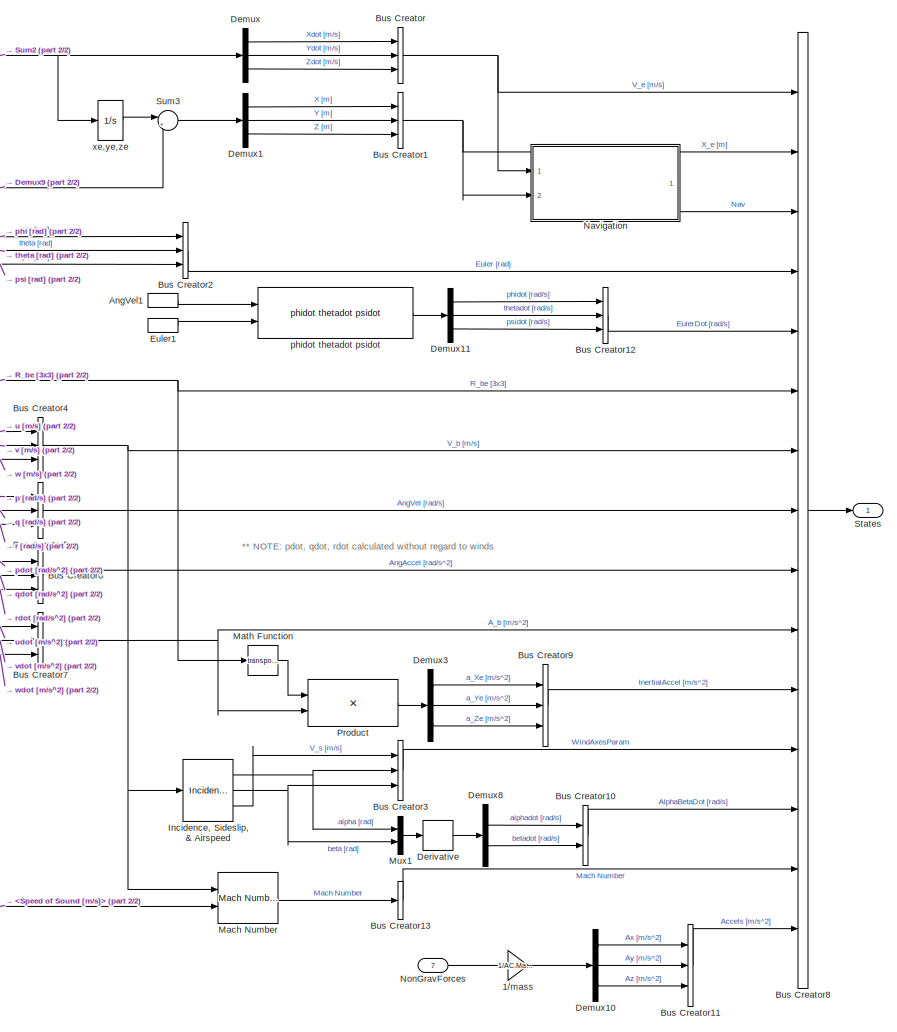
[diagram: University of Minnesota - Uninhabited Aerial Vehicle Fleet/Nonlinear UAV Model/Auxiliary Equations - part 1/2, center side, full height]
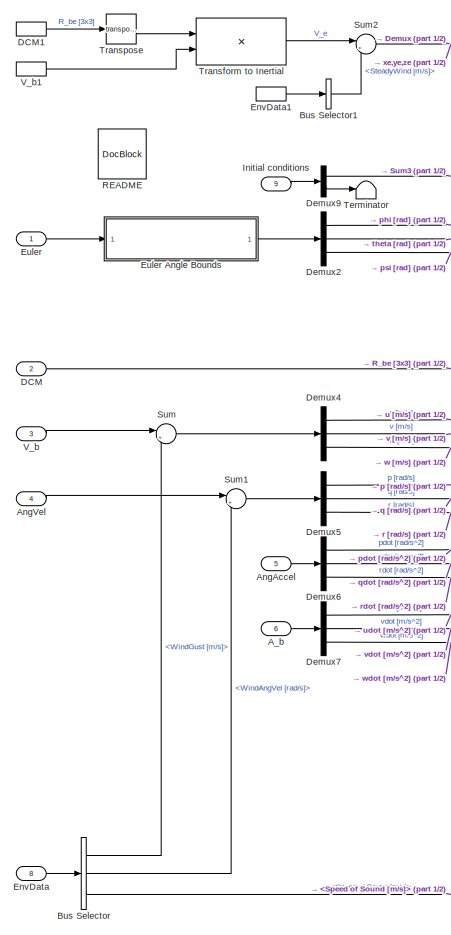
[diagram: University of Minnesota - Uninhabited Aerial Vehicle Fleet/Nonlinear UAV Model/Auxiliary Equations - part 2/2, left side, full height]
BLOCK [SubSystem] University of Minnesota - Uninhabited Aerial Vehicle Fleet/Nonlinear UAV Model/Auxiliary Equations
  FunctionWithSeparateData = off
  MaskHideContents = off
  MinAlgLoopOccurrences = off
  Opaque = off
  Ports = [9, 1]
  PropExecContextOutsideSubsystem = off
  RTWSystemCode = Auto
  RequestExecContextInheritance = off
BLOCK [Gain] University of Minnesota - Uninhabited Aerial Vehicle Fleet/Nonlinear UAV Model/Auxiliary Equations/1//mass
  Gain = 1/AC.Mass
  OutDataTypeStr = Inherit: Inherit via internal rule
  ParamDataTypeStr = Inherit: Inherit via internal rule
  SaturateOnIntegerOverflow = off
BLOCK [Inport] University of Minnesota - Uninhabited Aerial Vehicle Fleet/Nonlinear UAV Model/Auxiliary Equations/A_b
  IconDisplay = Port number
  Port = 6
BLOCK [Inport] University of Minnesota - Uninhabited Aerial Vehicle Fleet/Nonlinear UAV Model/Auxiliary Equations/AngAccel
  IconDisplay = Port number
  Port = 5
BLOCK [Inport] University of Minnesota - Uninhabited Aerial Vehicle Fleet/Nonlinear UAV Model/Auxiliary Equations/AngVel
  IconDisplay = Port number
  Port = 4
BLOCK [InportShadow] University of Minnesota - Uninhabited Aerial Vehicle Fleet/Nonlinear UAV Model/Auxiliary Equations/AngVel1
  IconDisplay = Port number
  LatchByDelayingOutsideSignal = off
  LatchInputForFeedbackSignals = off
  Port = 4
BLOCK [BusCreator] University of Minnesota - Uninhabited Aerial Vehicle Fleet/Nonlinear UAV Model/Auxiliary Equations/Bus Creator
  DisplayOption = bar
  Inputs = 3
  Ports = [3, 1]
BLOCK [BusCreator] University of Minnesota - Uninhabited Aerial Vehicle Fleet/Nonlinear UAV Model/Auxiliary Equations/Bus Creator1
  DisplayOption = bar
  Inputs = 3
  Ports = [3, 1]
BLOCK [BusCreator] University of Minnesota - Uninhabited Aerial Vehicle Fleet/Nonlinear UAV Model/Auxiliary Equations/Bus Creator10
  DisplayOption = bar
  Inputs = 2
  Ports = [2, 1]
BLOCK [BusCreator] University of Minnesota - Uninhabited Aerial Vehicle Fleet/Nonlinear UAV Model/Auxiliary Equations/Bus Creator11
  DisplayOption = bar
  Inputs = 3
  Ports = [3, 1]
BLOCK [BusCreator] University of Minnesota - Uninhabited Aerial Vehicle Fleet/Nonlinear UAV Model/Auxiliary Equations/Bus Creator12
  DisplayOption = bar
  Inputs = 3
  Ports = [3, 1]
BLOCK [BusCreator] University of Minnesota - Uninhabited Aerial Vehicle Fleet/Nonlinear UAV Model/Auxiliary Equations/Bus Creator13
  DisplayOption = bar
  Inputs = 1
  Ports = [1, 1]
BLOCK [BusCreator] University of Minnesota - Uninhabited Aerial Vehicle Fleet/Nonlinear UAV Model/Auxiliary Equations/Bus Creator2
  DisplayOption = bar
  Inputs = 3
  Ports = [3, 1]
BLOCK [BusCreator] University of Minnesota - Uninhabited Aerial Vehicle Fleet/Nonlinear UAV Model/Auxiliary Equations/Bus Creator3
  DisplayOption = bar
  Inputs = 3
  Ports = [3, 1]
BLOCK [BusCreator] University of Minnesota - Uninhabited Aerial Vehicle Fleet/Nonlinear UAV Model/Auxiliary Equations/Bus Creator4
  DisplayOption = bar
  Inputs = 3
  Ports = [3, 1]
BLOCK [BusCreator] University of Minnesota - Uninhabited Aerial Vehicle Fleet/Nonlinear UAV Model/Auxiliary Equations/Bus Creator5
  DisplayOption = bar
  Inputs = 3
  Ports = [3, 1]
BLOCK [BusCreator] University of Minnesota - Uninhabited Aerial Vehicle Fleet/Nonlinear UAV Model/Auxiliary Equations/Bus Creator6
  DisplayOption = bar
  Inputs = 3
  Ports = [3, 1]
BLOCK [BusCreator] University of Minnesota - Uninhabited Aerial Vehicle Fleet/Nonlinear UAV Model/Auxiliary Equations/Bus Creator7
  DisplayOption = bar
  Inputs = 3
  Ports = [3, 1]
BLOCK [BusCreator] University of Minnesota - Uninhabited Aerial Vehicle Fleet/Nonlinear UAV Model/Auxiliary Equations/Bus Creator8
  DisplayOption = bar
  Inputs = 15
  Ports = [15, 1]
BLOCK [BusCreator] University of Minnesota - Uninhabited Aerial Vehicle Fleet/Nonlinear UAV Model/Auxiliary Equations/Bus Creator9
  DisplayOption = bar
  Inputs = 3
  Ports = [3, 1]
BLOCK [BusSelector] University of Minnesota - Uninhabited Aerial Vehicle Fleet/Nonlinear UAV Model/Auxiliary Equations/Bus Selector
  OutputSignals = WindGust [m/s],WindAngVel [rad/s],Speed of Sound [m/s]
  Ports = [1, 3]
BLOCK [BusSelector] University of Minnesota - Uninhabited Aerial Vehicle Fleet/Nonlinear UAV Model/Auxiliary Equations/Bus Selector1
  OutputSignals = SteadyWind [m/s]
  Ports = [1, 1]
BLOCK [Inport] University of Minnesota - Uninhabited Aerial Vehicle Fleet/Nonlinear UAV Model/Auxiliary Equations/DCM
  IconDisplay = Port number
  Port = 2
BLOCK [InportShadow] University of Minnesota - Uninhabited Aerial Vehicle Fleet/Nonlinear UAV Model/Auxiliary Equations/DCM1
  IconDisplay = Port number
  LatchByDelayingOutsideSignal = off
  LatchInputForFeedbackSignals = off
  Port = 2
BLOCK [Demux] University of Minnesota - Uninhabited Aerial Vehicle Fleet/Nonlinear UAV Model/Auxiliary Equations/Demux
  DisplayOption = bar
  Outputs = 3
  Ports = [1, 3]
BLOCK [Demux] University of Minnesota - Uninhabited Aerial Vehicle Fleet/Nonlinear UAV Model/Auxiliary Equations/Demux1
  DisplayOption = bar
  Outputs = 3
  Ports = [1, 3]
BLOCK [Demux] University of Minnesota - Uninhabited Aerial Vehicle Fleet/Nonlinear UAV Model/Auxiliary Equations/Demux10
  DisplayOption = bar
  Outputs = 3
  Ports = [1, 3]
BLOCK [Demux] University of Minnesota - Uninhabited Aerial Vehicle Fleet/Nonlinear UAV Model/Auxiliary Equations/Demux11
  DisplayOption = bar
  Outputs = 3
  Ports = [1, 3]
BLOCK [Demux] University of Minnesota - Uninhabited Aerial Vehicle Fleet/Nonlinear UAV Model/Auxiliary Equations/Demux2
  DisplayOption = bar
  Outputs = 3
  Ports = [1, 3]
BLOCK [Demux] University of Minnesota - Uninhabited Aerial Vehicle Fleet/Nonlinear UAV Model/Auxiliary Equations/Demux3
  DisplayOption = bar
  Outputs = 3
  Ports = [1, 3]
BLOCK [Demux] University of Minnesota - Uninhabited Aerial Vehicle Fleet/Nonlinear UAV Model/Auxiliary Equations/Demux4
  DisplayOption = bar
  Outputs = 3
  Ports = [1, 3]
BLOCK [Demux] University of Minnesota - Uninhabited Aerial Vehicle Fleet/Nonlinear UAV Model/Auxiliary Equations/Demux5
  DisplayOption = bar
  Outputs = 3
  Ports = [1, 3]
BLOCK [Demux] University of Minnesota - Uninhabited Aerial Vehicle Fleet/Nonlinear UAV Model/Auxiliary Equations/Demux6
  DisplayOption = bar
  Outputs = 3
  Ports = [1, 3]
BLOCK [Demux] University of Minnesota - Uninhabited Aerial Vehicle Fleet/Nonlinear UAV Model/Auxiliary Equations/Demux7
  DisplayOption = bar
  Outputs = 3
  Ports = [1, 3]
BLOCK [Demux] University of Minnesota - Uninhabited Aerial Vehicle Fleet/Nonlinear UAV Model/Auxiliary Equations/Demux8
  Outputs = 2
  Ports = [1, 2]
BLOCK [Demux] University of Minnesota - Uninhabited Aerial Vehicle Fleet/Nonlinear UAV Model/Auxiliary Equations/Demux9
  DisplayOption = bar
  Outputs = [3 1]
  Ports = [1, 2]
BLOCK [Derivative] University of Minnesota - Uninhabited Aerial Vehicle Fleet/Nonlinear UAV Model/Auxiliary Equations/Derivative
BLOCK [Inport] University of Minnesota - Uninhabited Aerial Vehicle Fleet/Nonlinear UAV Model/Auxiliary Equations/EnvData
  IconDisplay = Port number
  Port = 8
BLOCK [InportShadow] University of Minnesota - Uninhabited Aerial Vehicle Fleet/Nonlinear UAV Model/Auxiliary Equations/EnvData1
  IconDisplay = Port number
  LatchByDelayingOutsideSignal = off
  LatchInputForFeedbackSignals = off
  Port = 8
BLOCK [Inport] University of Minnesota - Uninhabited Aerial Vehicle Fleet/Nonlinear UAV Model/Auxiliary Equations/Euler
  IconDisplay = Port number
BLOCK [SubSystem] University of Minnesota - Uninhabited Aerial Vehicle Fleet/Nonlinear UAV Model/Auxiliary Equations/Euler Angle Bounds
  FunctionWithSeparateData = off
  MaskHideContents = off
  MinAlgLoopOccurrences = off
  Opaque = off
  Ports = [1, 1]
  PropExecContextOutsideSubsystem = off
  RTWSystemCode = Auto
  RequestExecContextInheritance = off
BLOCK [SubSystem] University of Minnesota - Uninhabited Aerial Vehicle Fleet/Nonlinear UAV Model/Auxiliary Equations/Euler Angle Bounds/2pi Bound
  FunctionWithSeparateData = off
  MaskHideContents = off
  MinAlgLoopOccurrences = off
  Opaque = off
  Ports = [1, 1]
  PropExecContextOutsideSubsystem = off
  RTWSystemCode = Auto
  RequestExecContextInheritance = off
BLOCK [Constant] University of Minnesota - Uninhabited Aerial Vehicle Fleet/Nonlinear UAV Model/Auxiliary Equations/Euler Angle Bounds/2pi Bound/2pi
  Value = 2*pi
BLOCK [Inport] University of Minnesota - Uninhabited Aerial Vehicle Fleet/Nonlinear UAV Model/Auxiliary Equations/Euler Angle Bounds/2pi Bound/In
  IconDisplay = Port number
BLOCK [Math] University of Minnesota - Uninhabited Aerial Vehicle Fleet/Nonlinear UAV Model/Auxiliary Equations/Euler Angle Bounds/2pi Bound/Math Function
  Operator = mod
  Ports = [2, 1]
BLOCK [Outport] University of Minnesota - Uninhabited Aerial Vehicle Fleet/Nonlinear UAV Model/Auxiliary Equations/Euler Angle Bounds/2pi Bound/Out
  IconDisplay = Port number
BLOCK [Demux] University of Minnesota - Uninhabited Aerial Vehicle Fleet/Nonlinear UAV Model/Auxiliary Equations/Euler Angle Bounds/Demux
  DisplayOption = bar
  Outputs = 3
  Ports = [1, 3]
BLOCK [Outport] University of Minnesota - Uninhabited Aerial Vehicle Fleet/Nonlinear UAV Model/Auxiliary Equations/Euler Angle Bounds/Euler_bound
  IconDisplay = Port number
BLOCK [Inport] University of Minnesota - Uninhabited Aerial Vehicle Fleet/Nonlinear UAV Model/Auxiliary Equations/Euler Angle Bounds/Euler_nobound
  IconDisplay = Port number
BLOCK [Mux] University of Minnesota - Uninhabited Aerial Vehicle Fleet/Nonlinear UAV Model/Auxiliary Equations/Euler Angle Bounds/Mux
  DisplayOption = bar
  Inputs = 3
  Ports = [3, 1]
BLOCK [SubSystem] University of Minnesota - Uninhabited Aerial Vehicle Fleet/Nonlinear UAV Model/Auxiliary Equations/Euler Angle Bounds/pi Bound
  FunctionWithSeparateData = off
  MaskHideContents = off
  MinAlgLoopOccurrences = off
  Opaque = off
  Ports = [1, 1]
  PropExecContextOutsideSubsystem = off
  RTWSystemCode = Auto
  RequestExecContextInheritance = off
BLOCK [Inport] University of Minnesota - Uninhabited Aerial Vehicle Fleet/Nonlinear UAV Model/Auxiliary Equations/Euler Angle Bounds/pi Bound/In
  IconDisplay = Port number
BLOCK [Math] University of Minnesota - Uninhabited Aerial Vehicle Fleet/Nonlinear UAV Model/Auxiliary Equations/Euler Angle Bounds/pi Bound/Math Function
  Operator = mod
  Ports = [2, 1]
BLOCK [Outport] University of Minnesota - Uninhabited Aerial Vehicle Fleet/Nonlinear UAV Model/Auxiliary Equations/Euler Angle Bounds/pi Bound/Out
  IconDisplay = Port number
BLOCK [Sum] University of Minnesota - Uninhabited Aerial Vehicle Fleet/Nonlinear UAV Model/Auxiliary Equations/Euler Angle Bounds/pi Bound/Sum1
  IconShape = round
  Inputs = |+-
  Ports = [2, 1]
BLOCK [Sum] University of Minnesota - Uninhabited Aerial Vehicle Fleet/Nonlinear UAV Model/Auxiliary Equations/Euler Angle Bounds/pi Bound/Sum2
  IconShape = round
  Inputs = |++
  Ports = [2, 1]
BLOCK [Constant] University of Minnesota - Uninhabited Aerial Vehicle Fleet/Nonlinear UAV Model/Auxiliary Equations/Euler Angle Bounds/pi Bound/pi
  Value = pi
BLOCK [Constant] University of Minnesota - Uninhabited Aerial Vehicle Fleet/Nonlinear UAV Model/Auxiliary Equations/Euler Angle Bounds/pi Bound/pi1
  Value = 2*pi
BLOCK [SubSystem] University of Minnesota - Uninhabited Aerial Vehicle Fleet/Nonlinear UAV Model/Auxiliary Equations/Euler Angle Bounds/pi//2 Bound
  FunctionWithSeparateData = off
  MaskHideContents = off
  MinAlgLoopOccurrences = off
  Opaque = off
  Ports = [1, 1]
  PropExecContextOutsideSubsystem = off
  RTWSystemCode = Auto
  RequestExecContextInheritance = off
BLOCK [Inport] University of Minnesota - Uninhabited Aerial Vehicle Fleet/Nonlinear UAV Model/Auxiliary Equations/Euler Angle Bounds/pi//2 Bound/In
  IconDisplay = Port number
BLOCK [Math] University of Minnesota - Uninhabited Aerial Vehicle Fleet/Nonlinear UAV Model/Auxiliary Equations/Euler Angle Bounds/pi//2 Bound/Math Function
  Operator = mod
  Ports = [2, 1]
BLOCK [Outport] University of Minnesota - Uninhabited Aerial Vehicle Fleet/Nonlinear UAV Model/Auxiliary Equations/Euler Angle Bounds/pi//2 Bound/Out
  IconDisplay = Port number
BLOCK [Sum] University of Minnesota - Uninhabited Aerial Vehicle Fleet/Nonlinear UAV Model/Auxiliary Equations/Euler Angle Bounds/pi//2 Bound/Sum1
  IconShape = round
  Inputs = |+-
  Ports = [2, 1]
BLOCK [Sum] University of Minnesota - Uninhabited Aerial Vehicle Fleet/Nonlinear UAV Model/Auxiliary Equations/Euler Angle Bounds/pi//2 Bound/Sum2
  IconShape = round
  Inputs = |++
  Ports = [2, 1]
BLOCK [Constant] University of Minnesota - Uninhabited Aerial Vehicle Fleet/Nonlinear UAV Model/Auxiliary Equations/Euler Angle Bounds/pi//2 Bound/pi
  Value = pi/2
BLOCK [Constant] University of Minnesota - Uninhabited Aerial Vehicle Fleet/Nonlinear UAV Model/Auxiliary Equations/Euler Angle Bounds/pi//2 Bound/pi1
  Value = pi
BLOCK [InportShadow] University of Minnesota - Uninhabited Aerial Vehicle Fleet/Nonlinear UAV Model/Auxiliary Equations/Euler1
  IconDisplay = Port number
  LatchByDelayingOutsideSignal = off
  LatchInputForFeedbackSignals = off
BLOCK [Reference] University of Minnesota - Uninhabited Aerial Vehicle Fleet/Nonlinear UAV Model/Auxiliary Equations/Incidence, Sideslip, & Airspeed  REF=aerolibasang/Incidence, Sideslip,
& Airspeed
  Ports = [1, 3]
  SourceBlock = aerolibasang/Incidence, Sideslip,\n& Airspeed
  SourceType = Incidence,Sideslip,&Airspeed
BLOCK [Inport] University of Minnesota - Uninhabited Aerial Vehicle Fleet/Nonlinear UAV Model/Auxiliary Equations/Initial conditions
  IconDisplay = Port number
  Port = 9
BLOCK [Reference] University of Minnesota - Uninhabited Aerial Vehicle Fleet/Nonlinear UAV Model/Auxiliary Equations/Mach Number  REF=aerolibasang/Mach Number
  Ports = [2, 1]
  SourceBlock = aerolibasang/Mach Number
  SourceType = Mach Number
BLOCK [Math] University of Minnesota - Uninhabited Aerial Vehicle Fleet/Nonlinear UAV Model/Auxiliary Equations/Math Function
  Operator = transpose
  Ports = [1, 1]
BLOCK [Mux] University of Minnesota - Uninhabited Aerial Vehicle Fleet/Nonlinear UAV Model/Auxiliary Equations/Mux1
  DisplayOption = bar
  Inputs = 2
  Ports = [2, 1]
BLOCK [SubSystem] University of Minnesota - Uninhabited Aerial Vehicle Fleet/Nonlinear UAV Model/Auxiliary Equations/Navigation
  Description = This model produces the followng navigation data for the UAV flight:\n                                                                    \n* Geodetic Latitude                                                 \n* Geodetic Longitude                                                \n* Geodetic Altitude                                                 \n* Altitude above Mean Sea Level                        ...<+49ch>
  FunctionWithSeparateData = off
  MaskHideContents = off
  MinAlgLoopOccurrences = off
  Opaque = off
  Ports = [2, 1]
  PropExecContextOutsideSubsystem = off
  RTWSystemCode = Auto
  RequestExecContextInheritance = off
BLOCK [BusCreator] University of Minnesota - Uninhabited Aerial Vehicle Fleet/Nonlinear UAV Model/Auxiliary Equations/Navigation/Bus Creator1
  DisplayOption = bar
  Inputs = 8
  Ports = [8, 1]
BLOCK [Demux] University of Minnesota - Uninhabited Aerial Vehicle Fleet/Nonlinear UAV Model/Auxiliary Equations/Navigation/Demux
  DisplayOption = bar
  Outputs = 2
  Ports = [1, 2]
BLOCK [Demux] University of Minnesota - Uninhabited Aerial Vehicle Fleet/Nonlinear UAV Model/Auxiliary Equations/Navigation/Demux8
  DisplayOption = bar
  Outputs = [2 1]
  Ports = [1, 2]
BLOCK [Demux] University of Minnesota - Uninhabited Aerial Vehicle Fleet/Nonlinear UAV Model/Auxiliary Equations/Navigation/Demux9
  DisplayOption = bar
  Outputs = 2
  Ports = [1, 2]
BLOCK [SubSystem] University of Minnesota - Uninhabited Aerial Vehicle Fleet/Nonlinear UAV Model/Auxiliary Equations/Navigation/EGM-96 Geoid Model
  FunctionWithSeparateData = off
  MaskHideContents = off
  MinAlgLoopOccurrences = off
  Opaque = off
  Ports = [1, 1]
  PropExecContextOutsideSubsystem = off
  RTWSystemCode = Auto
  RequestExecContextInheritance = off
BLOCK [Demux] University of Minnesota - Uninhabited Aerial Vehicle Fleet/Nonlinear UAV Model/Auxiliary Equations/Navigation/EGM-96 Geoid Model/Demux2
  Outputs = 3
  Ports = [1, 3]
BLOCK [Lookup2D] University of Minnesota - Uninhabited Aerial Vehicle Fleet/Nonlinear UAV Model/Auxiliary Equations/Navigation/EGM-96 Geoid Model/Look-Up Table (2-D)
  ColumnIndex = Lon
  RowIndex = Lat
  Table = Alterr'
BLOCK [Outport] University of Minnesota - Uninhabited Aerial Vehicle Fleet/Nonlinear UAV Model/Auxiliary Equations/Navigation/EGM-96 Geoid Model/MSLAlt
  IconDisplay = Port number
BLOCK [Inport] University of Minnesota - Uninhabited Aerial Vehicle Fleet/Nonlinear UAV Model/Auxiliary Equations/Navigation/EGM-96 Geoid Model/Position
  IconDisplay = Port number
BLOCK [Sum] University of Minnesota - Uninhabited Aerial Vehicle Fleet/Nonlinear UAV Model/Auxiliary Equations/Navigation/EGM-96 Geoid Model/Sum
  IconShape = round
  InputSameDT = off
  Inputs = |+++
  OutDataTypeStr = Inherit: Inherit via internal rule
  Ports = [3, 1]
  SaturateOnIntegerOverflow = off
BLOCK [Constant] University of Minnesota - Uninhabited Aerial Vehicle Fleet/Nonlinear UAV Model/Auxiliary Equations/Navigation/EGM-96 Geoid Model/WGS-84 correction
  Value = -0.53
BLOCK [Reference] University of Minnesota - Uninhabited Aerial Vehicle Fleet/Nonlinear UAV Model/Auxiliary Equations/Navigation/Flat Earth to LLA  REF=aerolibtransform2/Flat Earth to LLA
  F = 1/298.257223563
  LL0 = TrimCondition.LLIni
  Ports = [2, 2]
  R = 6378137
  SourceBlock = aerolibtransform2/Flat Earth to LLA
  SourceType = Flat Earth to LLA
  psi = 0
  ptype = Earth (WGS84)
  units = Metric (MKS)
BLOCK [Gain] University of Minnesota - Uninhabited Aerial Vehicle Fleet/Nonlinear UAV Model/Auxiliary Equations/Navigation/Gain
  Gain = -1
  OutDataTypeStr = Inherit: Inherit via internal rule
  ParamDataTypeStr = Inherit: Inherit via internal rule
  SaturateOnIntegerOverflow = off
BLOCK [SubSystem] University of Minnesota - Uninhabited Aerial Vehicle Fleet/Nonlinear UAV Model/Auxiliary Equations/Navigation/Ground Detection
  FunctionWithSeparateData = off
  MaskHideContents = off
  MinAlgLoopOccurrences = off
  Opaque = off
  Ports = [2, 2]
  PropExecContextOutsideSubsystem = off
  RTWSystemCode = Auto
  RequestExecContextInheritance = off
BLOCK [Outport] University of Minnesota - Uninhabited Aerial Vehicle Fleet/Nonlinear UAV Model/Auxiliary Equations/Navigation/Ground Detection/AConGnd
  IconDisplay = Port number
BLOCK [Outport] University of Minnesota - Uninhabited Aerial Vehicle Fleet/Nonlinear UAV Model/Auxiliary Equations/Navigation/Ground Detection/AGLAlt
  IconDisplay = Port number
  Port = 2
BLOCK [Constant] University of Minnesota - Uninhabited Aerial Vehicle Fleet/Nonlinear UAV Model/Auxiliary Equations/Navigation/Ground Detection/False
  Value = 0
BLOCK [Inport] University of Minnesota - Uninhabited Aerial Vehicle Fleet/Nonlinear UAV Model/Auxiliary Equations/Navigation/Ground Detection/GndAlt
  IconDisplay = Port number
  Port = 2
BLOCK [Inport] University of Minnesota - Uninhabited Aerial Vehicle Fleet/Nonlinear UAV Model/Auxiliary Equations/Navigation/Ground Detection/MSLAlt
  IconDisplay = Port number
BLOCK [Sum] University of Minnesota - Uninhabited Aerial Vehicle Fleet/Nonlinear UAV Model/Auxiliary Equations/Navigation/Ground Detection/Sum
  IconShape = round
  Inputs = |+-
  Ports = [2, 1]
BLOCK [Switch] University of Minnesota - Uninhabited Aerial Vehicle Fleet/Nonlinear UAV Model/Auxiliary Equations/Navigation/Ground Detection/Switch
BLOCK [Constant] University of Minnesota - Uninhabited Aerial Vehicle Fleet/Nonlinear UAV Model/Auxiliary Equations/Navigation/Ground Detection/True
BLOCK [Constant] University of Minnesota - Uninhabited Aerial Vehicle Fleet/Nonlinear UAV Model/Auxiliary Equations/Navigation/Ground Height
  Value = Env.GroundAlt
BLOCK [Constant] University of Minnesota - Uninhabited Aerial Vehicle Fleet/Nonlinear UAV Model/Auxiliary Equations/Navigation/Ground Height1
  Value = Env.GroundAlt
BLOCK [SubSystem] University of Minnesota - Uninhabited Aerial Vehicle Fleet/Nonlinear UAV Model/Auxiliary Equations/Navigation/Latitude Bound [-180,180]
  FunctionWithSeparateData = off
  MaskHideContents = off
  MinAlgLoopOccurrences = off
  Opaque = off
  Ports = [1, 1]
  PropExecContextOutsideSubsystem = off
  RTWSystemCode = Auto
  RequestExecContextInheritance = off
BLOCK [Constant] University of Minnesota - Uninhabited Aerial Vehicle Fleet/Nonlinear UAV Model/Auxiliary Equations/Navigation/Latitude Bound [-180,180]/2pi
  Value = 360
BLOCK [Inport] University of Minnesota - Uninhabited Aerial Vehicle Fleet/Nonlinear UAV Model/Auxiliary Equations/Navigation/Latitude Bound [-180,180]/In
  IconDisplay = Port number
BLOCK [Math] University of Minnesota - Uninhabited Aerial Vehicle Fleet/Nonlinear UAV Model/Auxiliary Equations/Navigation/Latitude Bound [-180,180]/Math Function
  Operator = mod
  Ports = [2, 1]
BLOCK [Outport] University of Minnesota - Uninhabited Aerial Vehicle Fleet/Nonlinear UAV Model/Auxiliary Equations/Navigation/Latitude Bound [-180,180]/Out
  IconDisplay = Port number
BLOCK [Sum] University of Minnesota - Uninhabited Aerial Vehicle Fleet/Nonlinear UAV Model/Auxiliary Equations/Navigation/Latitude Bound [-180,180]/Sum1
  IconShape = round
  Inputs = |+-
  Ports = [2, 1]
BLOCK [Sum] University of Minnesota - Uninhabited Aerial Vehicle Fleet/Nonlinear UAV Model/Auxiliary Equations/Navigation/Latitude Bound [-180,180]/Sum2
  IconShape = round
  Inputs = |++
  Ports = [2, 1]
BLOCK [Constant] University of Minnesota - Uninhabited Aerial Vehicle Fleet/Nonlinear UAV Model/Auxiliary Equations/Navigation/Latitude Bound [-180,180]/pi
  Value = 180
BLOCK [SubSystem] University of Minnesota - Uninhabited Aerial Vehicle Fleet/Nonlinear UAV Model/Auxiliary Equations/Navigation/Longitude Bound 0-360
  FunctionWithSeparateData = off
  MaskHideContents = off
  MinAlgLoopOccurrences = off
  Opaque = off
  Ports = [1, 1]
  PropExecContextOutsideSubsystem = off
  RTWSystemCode = Auto
  RequestExecContextInheritance = off
BLOCK [Constant] University of Minnesota - Uninhabited Aerial Vehicle Fleet/Nonlinear UAV Model/Auxiliary Equations/Navigation/Longitude Bound 0-360/2pi
  Value = 360
BLOCK [Inport] University of Minnesota - Uninhabited Aerial Vehicle Fleet/Nonlinear UAV Model/Auxiliary Equations/Navigation/Longitude Bound 0-360/In
  IconDisplay = Port number
BLOCK [Math] University of Minnesota - Uninhabited Aerial Vehicle Fleet/Nonlinear UAV Model/Auxiliary Equations/Navigation/Longitude Bound 0-360/Math Function
  Operator = mod
  Ports = [2, 1]
BLOCK [Outport] University of Minnesota - Uninhabited Aerial Vehicle Fleet/Nonlinear UAV Model/Auxiliary Equations/Navigation/Longitude Bound 0-360/Out
  IconDisplay = Port number
BLOCK [Mux] University of Minnesota - Uninhabited Aerial Vehicle Fleet/Nonlinear UAV Model/Auxiliary Equations/Navigation/Mux
  DisplayOption = bar
  Inputs = 3
  Ports = [3, 1]
BLOCK [Outport] University of Minnesota - Uninhabited Aerial Vehicle Fleet/Nonlinear UAV Model/Auxiliary Equations/Navigation/Nav
  IconDisplay = Port number
BLOCK [Reference] University of Minnesota - Uninhabited Aerial Vehicle Fleet/Nonlinear UAV Model/Auxiliary Equations/Navigation/README  REF=simulink/Model-Wide
Utilities/DocBlock
  DocumentType = Text
  Ports = []
  SourceBlock = simulink/Model-Wide\nUtilities/DocBlock
  SourceType = DocBlock
  UserDataPersistent = on
BLOCK [Saturate] University of Minnesota - Uninhabited Aerial Vehicle Fleet/Nonlinear UAV Model/Auxiliary Equations/Navigation/Saturation
  InputPortMap = u0
  LowerLimit = 0
  Ports = [1, 1]
  UpperLimit = Inf
BLOCK [Stop] University of Minnesota - Uninhabited Aerial Vehicle Fleet/Nonlinear UAV Model/Auxiliary Equations/Navigation/Stop Simulation when A//C on the ground
BLOCK [Trigonometry] University of Minnesota - Uninhabited Aerial Vehicle Fleet/Nonlinear UAV Model/Auxiliary Equations/Navigation/Trigonometric Function
  Operator = atan2
  Ports = [2, 1]
BLOCK [Trigonometry] University of Minnesota - Uninhabited Aerial Vehicle Fleet/Nonlinear UAV Model/Auxiliary Equations/Navigation/Trigonometric Function1
  Operator = atan2
  Ports = [2, 1]
BLOCK [Inport] University of Minnesota - Uninhabited Aerial Vehicle Fleet/Nonlinear UAV Model/Auxiliary Equations/Navigation/V_e [m//s]
  IconDisplay = Port number
BLOCK [SubSystem] University of Minnesota - Uninhabited Aerial Vehicle Fleet/Nonlinear UAV Model/Auxiliary Equations/Navigation/VecNorm
  FunctionWithSeparateData = off
  MaskHideContents = off
  MinAlgLoopOccurrences = off
  Opaque = off
  Ports = [1, 1]
  PropExecContextOutsideSubsystem = off
  RTWSystemCode = Auto
  RequestExecContextInheritance = off
BLOCK [Inport] University of Minnesota - Uninhabited Aerial Vehicle Fleet/Nonlinear UAV Model/Auxiliary Equations/Navigation/VecNorm/I
  IconDisplay = Port number
BLOCK [Math] University of Minnesota - Uninhabited Aerial Vehicle Fleet/Nonlinear UAV Model/Auxiliary Equations/Navigation/VecNorm/Math Function2
  Operator = sqrt
  Ports = [1, 1]
BLOCK [Outport] University of Minnesota - Uninhabited Aerial Vehicle Fleet/Nonlinear UAV Model/Auxiliary Equations/Navigation/VecNorm/O
  IconDisplay = Port number
BLOCK [Product] University of Minnesota - Uninhabited Aerial Vehicle Fleet/Nonlinear UAV Model/Auxiliary Equations/Navigation/VecNorm/Product
  InputSameDT = off
  OutDataTypeStr = Inherit: Inherit via internal rule
  Ports = [2, 1]
  SaturateOnIntegerOverflow = off
BLOCK [Sum] University of Minnesota - Uninhabited Aerial Vehicle Fleet/Nonlinear UAV Model/Auxiliary Equations/Navigation/VecNorm/Sum of Elements
  InputSameDT = off
  Inputs = +
  OutDataTypeStr = Inherit: Inherit via internal rule
  Ports = [1, 1]
  SaturateOnIntegerOverflow = off
BLOCK [Inport] University of Minnesota - Uninhabited Aerial Vehicle Fleet/Nonlinear UAV Model/Auxiliary Equations/Navigation/X_e [m]
  IconDisplay = Port number
  Port = 2
BLOCK [Inport] University of Minnesota - Uninhabited Aerial Vehicle Fleet/Nonlinear UAV Model/Auxiliary Equations/NonGravForces
  IconDisplay = Port number
  Port = 7
BLOCK [Product] University of Minnesota - Uninhabited Aerial Vehicle Fleet/Nonlinear UAV Model/Auxiliary Equations/Product
  InputSameDT = off
  Multiplication = Matrix(*)
  OutDataTypeStr = Inherit: Inherit via internal rule
  Ports = [2, 1]
  SaturateOnIntegerOverflow = off
BLOCK [Reference] University of Minnesota - Uninhabited Aerial Vehicle Fleet/Nonlinear UAV Model/Auxiliary Equations/README  REF=simulink/Model-Wide
Utilities/DocBlock
  DocumentType = Text
  Ports = []
  SourceBlock = simulink/Model-Wide\nUtilities/DocBlock
  SourceType = DocBlock
  UserDataPersistent = on
BLOCK [Outport] University of Minnesota - Uninhabited Aerial Vehicle Fleet/Nonlinear UAV Model/Auxiliary Equations/States
  IconDisplay = Port number
BLOCK [Sum] University of Minnesota - Uninhabited Aerial Vehicle Fleet/Nonlinear UAV Model/Auxiliary Equations/Sum
  IconShape = round
  InputSameDT = off
  Inputs = |++
  OutDataTypeStr = Inherit: Inherit via internal rule
  Ports = [2, 1]
  SaturateOnIntegerOverflow = off
BLOCK [Sum] University of Minnesota - Uninhabited Aerial Vehicle Fleet/Nonlinear UAV Model/Auxiliary Equations/Sum1
  IconShape = round
  InputSameDT = off
  Inputs = |++
  OutDataTypeStr = Inherit: Inherit via internal rule
  Ports = [2, 1]
  SaturateOnIntegerOverflow = off
BLOCK [Sum] University of Minnesota - Uninhabited Aerial Vehicle Fleet/Nonlinear UAV Model/Auxiliary Equations/Sum2
  IconShape = round
  InputSameDT = off
  Inputs = |++
  OutDataTypeStr = Inherit: Inherit via internal rule
  Ports = [2, 1]
  SaturateOnIntegerOverflow = off
BLOCK [Sum] University of Minnesota - Uninhabited Aerial Vehicle Fleet/Nonlinear UAV Model/Auxiliary Equations/Sum3
  IconShape = round
  InputSameDT = off
  Inputs = |++
  OutDataTypeStr = Inherit: Inherit via internal rule
  Ports = [2, 1]
  SaturateOnIntegerOverflow = off
BLOCK [Terminator] University of Minnesota - Uninhabited Aerial Vehicle Fleet/Nonlinear UAV Model/Auxiliary Equations/Terminator
BLOCK [Product] University of Minnesota - Uninhabited Aerial Vehicle Fleet/Nonlinear UAV Model/Auxiliary Equations/Transform to Inertial
  InputSameDT = off
  Multiplication = Matrix(*)
  OutDataTypeStr = Inherit: Inherit via internal rule
  Ports = [2, 1]
  SaturateOnIntegerOverflow = off
BLOCK [Math] University of Minnesota - Uninhabited Aerial Vehicle Fleet/Nonlinear UAV Model/Auxiliary Equations/Transpose
  Operator = transpose
  Ports = [1, 1]
BLOCK [Inport] University of Minnesota - Uninhabited Aerial Vehicle Fleet/Nonlinear UAV Model/Auxiliary Equations/V_b
  IconDisplay = Port number
  Port = 3
BLOCK [InportShadow] University of Minnesota - Uninhabited Aerial Vehicle Fleet/Nonlinear UAV Model/Auxiliary Equations/V_b1
  IconDisplay = Port number
  LatchByDelayingOutsideSignal = off
  LatchInputForFeedbackSignals = off
  Port = 3
BLOCK [Reference] University of Minnesota - Uninhabited Aerial Vehicle Fleet/Nonlinear UAV Model/Auxiliary Equations/phidot thetadot psidot  REF=aerolib6dofsys/DCM & Euler Angles (Euler)/phidot
thetadot
psidot
  Ports = [2, 1]
  SourceBlock = aerolib6dofsys/DCM & Euler Angles (Euler)/phidot\nthetadot\npsidot
  SourceType = SubSystem
BLOCK [Integrator] University of Minnesota - Uninhabited Aerial Vehicle Fleet/Nonlinear UAV Model/Auxiliary Equations/xe,ye,ze
  InitialCondition = [0;0;0]
  Ports = [1, 1]
BLOCK [Inport] University of Minnesota - Uninhabited Aerial Vehicle Fleet/Nonlinear UAV Model/Control Inputs
  IconDisplay = Port number
BLOCK [Outport] University of Minnesota - Uninhabited Aerial Vehicle Fleet/Nonlinear UAV Model/EnvData
  IconDisplay = Port number
  Port = 2
BLOCK [SubSystem] University of Minnesota - Uninhabited Aerial Vehicle Fleet/Nonlinear UAV Model/Environment
  FunctionWithSeparateData = off
  MaskHideContents = off
  MinAlgLoopOccurrences = off
  Opaque = off
  Ports = [1, 1]
  PropExecContextOutsideSubsystem = off
  RTWSystemCode = Auto
  RequestExecContextInheritance = off
BLOCK [BusCreator] University of Minnesota - Uninhabited Aerial Vehicle Fleet/Nonlinear UAV Model/Environment/Bus Creator
  DisplayOption = bar
  Inputs = 9
  Ports = [9, 1]
BLOCK [BusSelector] University of Minnesota - Uninhabited Aerial Vehicle Fleet/Nonlinear UAV Model/Environment/Bus Selector1
  OutputSignals = Nav.Alt (Above Mean Sea Level) [m]
  Ports = [1, 1]
BLOCK [BusSelector] University of Minnesota - Uninhabited Aerial Vehicle Fleet/Nonlinear UAV Model/Environment/Bus Selector2
  OutputSignals = Nav.Altitude [m],Nav.Geodetic Latitude [deg],Nav.Geodetic Longitude [deg]
  Ports = [1, 3]
BLOCK [BusSelector] University of Minnesota - Uninhabited Aerial Vehicle Fleet/Nonlinear UAV Model/Environment/Bus Selector3
  OutputAsBus = on
  OutputSignals = Nav.Geodetic Latitude [deg],Nav.Geodetic Longitude [deg],Nav.Altitude [m]
  Ports = [1, 1]
BLOCK [BusSelector] University of Minnesota - Uninhabited Aerial Vehicle Fleet/Nonlinear UAV Model/Environment/Bus Selector4
  OutputSignals = WindAxesParam.V_s [m/s],R_be [3x3],Nav.Alt (Above Ground Level) [m]
  Ports = [1, 3]
BLOCK [Reference] University of Minnesota - Uninhabited Aerial Vehicle Fleet/Nonlinear UAV Model/Environment/COESA Atmosphere Model  REF=aerolibatmos2/COESA Atmosphere Model
  Ports = [1, 4]
  SourceBlock = aerolibatmos2/COESA Atmosphere Model
  SourceType = Atmosphere Model
  action = Warning
  envelope_percent = 1%
  envelope_var = High temperature
  model = Profile
  profile_alt = 5 km (16404 ft)
  profile_percent = 1%
  profile_var = High temperature
  spec = 1976 COESA-extended U.S. Standard Atmosphere
  units = Metric (MKS)
BLOCK [Constant] University of Minnesota - Uninhabited Aerial Vehicle Fleet/Nonlinear UAV Model/Environment/Constant
  Value = Env.DecimalYear
BLOCK [Outport] University of Minnesota - Uninhabited Aerial Vehicle Fleet/Nonlinear UAV Model/Environment/EnvData
  IconDisplay = Port number
BLOCK [SubSystem] University of Minnesota - Uninhabited Aerial Vehicle Fleet/Nonlinear UAV Model/Environment/Magnetic Model
  AttributesFormatString = %<BlockChoice>
  BlockChoice = WMM 2005
  FunctionWithSeparateData = off
  MaskHideContents = off
  MemberBlocks = WMM 2005,WMM Bypass
  MinAlgLoopOccurrences = off
  Opaque = off
  Ports = [4, 1]
  PropExecContextOutsideSubsystem = off
  RTWSystemCode = Auto
  RequestExecContextInheritance = off
  TemplateBlock = Environment_Lib/Magnetic Model
BLOCK [Inport] University of Minnesota - Uninhabited Aerial Vehicle Fleet/Nonlinear UAV Model/Environment/Magnetic Model/Altitude
  IconDisplay = Port number
BLOCK [Inport] University of Minnesota - Uninhabited Aerial Vehicle Fleet/Nonlinear UAV Model/Environment/Magnetic Model/Decimal Year
  IconDisplay = Port number
  Port = 4
BLOCK [Inport] University of Minnesota - Uninhabited Aerial Vehicle Fleet/Nonlinear UAV Model/Environment/Magnetic Model/Latitude
  IconDisplay = Port number
  Port = 2
BLOCK [Inport] University of Minnesota - Uninhabited Aerial Vehicle Fleet/Nonlinear UAV Model/Environment/Magnetic Model/Longitude
  IconDisplay = Port number
  Port = 3
BLOCK [Outport] University of Minnesota - Uninhabited Aerial Vehicle Fleet/Nonlinear UAV Model/Environment/Magnetic Model/Magnetic Field
  IconDisplay = Port number
BLOCK [Reference] University of Minnesota - Uninhabited Aerial Vehicle Fleet/Nonlinear UAV Model/Environment/Magnetic Model/WMM 2005  REF=aerolibobsolete/World Magnetic Model 2005
  Ports = [3, 1]
  SourceBlock = aerolibobsolete/World Magnetic Model 2005
  SourceType = World Magnetic Model 2005
  action = None
  day = 1
  dec_out = off
  h_out = off
  inc_out = off
  month = August
  ti_out = off
  time_in = off
  units = Metric (MKS)
  year = 2009
BLOCK [Terminator] University of Minnesota - Uninhabited Aerial Vehicle Fleet/Nonlinear UAV Model/Environment/Magnetic Model/term4
BLOCK [Reference] University of Minnesota - Uninhabited Aerial Vehicle Fleet/Nonlinear UAV Model/Environment/README  REF=simulink/Model-Wide
Utilities/DocBlock
  DocumentType = Text
  Ports = []
  SourceBlock = simulink/Model-Wide\nUtilities/DocBlock
  SourceType = DocBlock
  UserDataPersistent = on
BLOCK [Inport] University of Minnesota - Uninhabited Aerial Vehicle Fleet/Nonlinear UAV Model/Environment/States
  IconDisplay = Port number
BLOCK [Reference] University of Minnesota - Uninhabited Aerial Vehicle Fleet/Nonlinear UAV Model/Environment/WGS84 Gravity Model   REF=aerolibgravity2/WGS84 Gravity Model 
  Ports = [1, 1]
  SourceBlock = aerolibgravity2/WGS84 Gravity Model
  SourceType = WGS84 Gravity Model 3D
  action = Warning
  day = 10
  jd_loc = off
  model = WGS84 Taylor Series
  month = October
  no_atmos = on
  no_centrifugal = on
  precessing = on
  units = Metric (MKS)
  year = 2004
BLOCK [SubSystem] University of Minnesota - Uninhabited Aerial Vehicle Fleet/Nonlinear UAV Model/Environment/Winds
  AttributesFormatString = %<BlockChoice>
  BlockChoice = Wind & Turbulence
  FunctionWithSeparateData = off
  MaskHideContents = off
  MemberBlocks = Wind & Turbulence,Wind Bypass
  MinAlgLoopOccurrences = off
  Opaque = off
  Ports = [3, 3]
  PropExecContextOutsideSubsystem = off
  RTWSystemCode = Auto
  RequestExecContextInheritance = off
  TemplateBlock = Environment_Lib/Winds
BLOCK [Inport] University of Minnesota - Uninhabited Aerial Vehicle Fleet/Nonlinear UAV Model/Environment/Winds/R_be [3x3]
  IconDisplay = Port number
  Port = 2
BLOCK [Outport] University of Minnesota - Uninhabited Aerial Vehicle Fleet/Nonlinear UAV Model/Environment/Winds/SteadyWind [m//s]
  IconDisplay = Port number
BLOCK [Inport] University of Minnesota - Uninhabited Aerial Vehicle Fleet/Nonlinear UAV Model/Environment/Winds/V_s [m//s]
  IconDisplay = Port number
BLOCK [Reference] University of Minnesota - Uninhabited Aerial Vehicle Fleet/Nonlinear UAV Model/Environment/Winds/Wind & Turbulence  REF=Environment_Lib/Wind & Turbulence
  Ports = [3, 3]
  SourceBlock = Environment_Lib/Wind & Turbulence
  SourceType = SubSystem
BLOCK [Outport] University of Minnesota - Uninhabited Aerial Vehicle Fleet/Nonlinear UAV Model/Environment/Winds/WindAngVel [rad//s]
  IconDisplay = Port number
  Port = 3
BLOCK [Outport] University of Minnesota - Uninhabited Aerial Vehicle Fleet/Nonlinear UAV Model/Environment/Winds/WindGust [m//s]
  IconDisplay = Port number
  Port = 2
BLOCK [Inport] University of Minnesota - Uninhabited Aerial Vehicle Fleet/Nonlinear UAV Model/Environment/Winds/h (m)
  IconDisplay = Port number
  Port = 3
BLOCK [SubSystem] University of Minnesota - Uninhabited Aerial Vehicle Fleet/Nonlinear UAV Model/Forces and Moments
  FunctionWithSeparateData = off
  MaskHideContents = off
  MinAlgLoopOccurrences = off
  Opaque = off
  Ports = [3, 3]
  PropExecContextOutsideSubsystem = off
  RTWSystemCode = Auto
  RequestExecContextInheritance = off
BLOCK [SubSystem] University of Minnesota - Uninhabited Aerial Vehicle Fleet/Nonlinear UAV Model/Forces and Moments/Aerodynamic Forces and Moments
  AncestorBlock = Aero_Lib/Aerodynamic Forces and Moments
  FunctionWithSeparateData = off
  MaskHideContents = off
  MinAlgLoopOccurrences = off
  Opaque = off
  Ports = [3, 2]
  PropExecContextOutsideSubsystem = off
  RTWSystemCode = Auto
  RequestExecContextInheritance = off
BLOCK [BusSelector] University of Minnesota - Uninhabited Aerial Vehicle Fleet/Nonlinear UAV Model/Forces and Moments/Aerodynamic Forces and Moments/Bus Selector
  OutputSignals = Density [kg/m^3]
  Ports = [1, 1]
BLOCK [BusSelector] University of Minnesota - Uninhabited Aerial Vehicle Fleet/Nonlinear UAV Model/Forces and Moments/Aerodynamic Forces and Moments/Bus Selector1
  OutputSignals = V_b [m/s]
  Ports = [1, 1]
BLOCK [Constant] University of Minnesota - Uninhabited Aerial Vehicle Fleet/Nonlinear UAV Model/Forces and Moments/Aerodynamic Forces and Moments/CG Position
  Value = AC.Geometry.rCG
BLOCK [Constant] University of Minnesota - Uninhabited Aerial Vehicle Fleet/Nonlinear UAV Model/Forces and Moments/Aerodynamic Forces and Moments/CP Position
  Value = AC.Geometry.AeroCenter
BLOCK [Inport] University of Minnesota - Uninhabited Aerial Vehicle Fleet/Nonlinear UAV Model/Forces and Moments/Aerodynamic Forces and Moments/Control Surfaces
  IconDisplay = Port number
BLOCK [Reference] University of Minnesota - Uninhabited Aerial Vehicle Fleet/Nonlinear UAV Model/Forces and Moments/Aerodynamic Forces and Moments/Dynamic Pressure  REF=aerolibasang/Dynamic Pressure
  Ports = [2, 1]
  SourceBlock = aerolibasang/Dynamic Pressure
  SourceType = Dynamic Pressure
BLOCK [Inport] University of Minnesota - Uninhabited Aerial Vehicle Fleet/Nonlinear UAV Model/Forces and Moments/Aerodynamic Forces and Moments/EnvData
  IconDisplay = Port number
  Port = 3
BLOCK [Outport] University of Minnesota - Uninhabited Aerial Vehicle Fleet/Nonlinear UAV Model/Forces and Moments/Aerodynamic Forces and Moments/F_aero_body
  IconDisplay = Port number
  Port = 2
BLOCK [Reference] University of Minnesota - Uninhabited Aerial Vehicle Fleet/Nonlinear UAV Model/Forces and Moments/Aerodynamic Forces and Moments/Forces and Moments Calculation   REF=aerolibadyn/Aerodynamic
Forces and Moments 
  Ports = [5, 2]
  S = AC.Geometry.S
  SourceBlock = aerolibadyn/Aerodynamic\nForces and Moments
  SourceType = Aerodynamic Forces and Moments
  b = AC.Geometry.b
  cbar = AC.Geometry.c
  inputAxes = Wind
  outputForceAxes = Body
  outputMomentAxes = Wind
BLOCK [Outport] University of Minnesota - Uninhabited Aerial Vehicle Fleet/Nonlinear UAV Model/Forces and Moments/Aerodynamic Forces and Moments/M_aero_body
  IconDisplay = Port number
BLOCK [Inport] University of Minnesota - Uninhabited Aerial Vehicle Fleet/Nonlinear UAV Model/Forces and Moments/Aerodynamic Forces and Moments/States
  IconDisplay = Port number
  Port = 2
BLOCK [Reference] University of Minnesota - Uninhabited Aerial Vehicle Fleet/Nonlinear UAV Model/Forces and Moments/Aerodynamic Forces and Moments/Ultrastick  REF=Ultrastick_Aero_Lib/Ultrastick
  Ports = [2, 1]
  SourceBlock = Ultrastick_Aero_Lib/Ultrastick
  SourceType = SubSystem
BLOCK [BusSelector] University of Minnesota - Uninhabited Aerial Vehicle Fleet/Nonlinear UAV Model/Forces and Moments/Bus Selector1
  OutputSignals = throttle [nd]
  Ports = [1, 1]
BLOCK [Inport] University of Minnesota - Uninhabited Aerial Vehicle Fleet/Nonlinear UAV Model/Forces and Moments/Control Inputs
  IconDisplay = Port number
BLOCK [InportShadow] University of Minnesota - Uninhabited Aerial Vehicle Fleet/Nonlinear UAV Model/Forces and Moments/Control Inputs1
  IconDisplay = Port number
  LatchByDelayingOutsideSignal = off
  LatchInputForFeedbackSignals = off
BLOCK [Reference] University of Minnesota - Uninhabited Aerial Vehicle Fleet/Nonlinear UAV Model/Forces and Moments/Electric Propulsion Forces and Moments  REF=Propulsion_Lib/Electric Propulsion Forces and Moments
  Ports = [3, 2]
  SourceBlock = Propulsion_Lib/Electric Propulsion Forces and Moments
  SourceType = SubSystem
BLOCK [Inport] University of Minnesota - Uninhabited Aerial Vehicle Fleet/Nonlinear UAV Model/Forces and Moments/EnvData
  IconDisplay = Port number
  Port = 3
BLOCK [Reference] University of Minnesota - Uninhabited Aerial Vehicle Fleet/Nonlinear UAV Model/Forces and Moments/Gravitational Force   REF=Gravity_Lib/Gravitational Force 
  Ports = [2, 1]
  SourceBlock = Gravity_Lib/Gravitational Force
  SourceType = SubSystem
BLOCK [Reference] University of Minnesota - Uninhabited Aerial Vehicle Fleet/Nonlinear UAV Model/Forces and Moments/README  REF=simulink/Model-Wide
Utilities/DocBlock
  DocumentType = Text
  Ports = []
  SourceBlock = simulink/Model-Wide\nUtilities/DocBlock
  SourceType = DocBlock
  UserDataPersistent = on
BLOCK [Inport] University of Minnesota - Uninhabited Aerial Vehicle Fleet/Nonlinear UAV Model/Forces and Moments/States
  IconDisplay = Port number
  Port = 2
BLOCK [Sum] University of Minnesota - Uninhabited Aerial Vehicle Fleet/Nonlinear UAV Model/Forces and Moments/Sum
  InputSameDT = off
  Inputs = +++
  OutDataTypeStr = Inherit: Inherit via internal rule
  Ports = [3, 1]
  SaturateOnIntegerOverflow = off
BLOCK [Sum] University of Minnesota - Uninhabited Aerial Vehicle Fleet/Nonlinear UAV Model/Forces and Moments/Sum1
  IconShape = round
  InputSameDT = off
  Inputs = |++
  OutDataTypeStr = Inherit: Inherit via internal rule
  Ports = [2, 1]
  SaturateOnIntegerOverflow = off
BLOCK [Sum] University of Minnesota - Uninhabited Aerial Vehicle Fleet/Nonlinear UAV Model/Forces and Moments/Sum2
  IconShape = round
  InputSameDT = off
  Inputs = |++
  OutDataTypeStr = Inherit: Inherit via internal rule
  Ports = [2, 1]
  SaturateOnIntegerOverflow = off
BLOCK [Outport] University of Minnesota - Uninhabited Aerial Vehicle Fleet/Nonlinear UAV Model/Forces and Moments/Total Force
  IconDisplay = Port number
BLOCK [Outport] University of Minnesota - Uninhabited Aerial Vehicle Fleet/Nonlinear UAV Model/Forces and Moments/Total Moment
  IconDisplay = Port number
  Port = 2
BLOCK [Outport] University of Minnesota - Uninhabited Aerial Vehicle Fleet/Nonlinear UAV Model/Forces and Moments/nonGravForces
  IconDisplay = Port number
  Port = 3
BLOCK [Inport] University of Minnesota - Uninhabited Aerial Vehicle Fleet/Nonlinear UAV Model/Initial conditions
  IconDisplay = Port number
  Port = 2
BLOCK [InportShadow] University of Minnesota - Uninhabited Aerial Vehicle Fleet/Nonlinear UAV Model/Initial conditions1
  IconDisplay = Port number
  LatchByDelayingOutsideSignal = off
  LatchInputForFeedbackSignals = off
  Port = 2
BLOCK [SubSystem] University of Minnesota - Uninhabited Aerial Vehicle Fleet/Nonlinear UAV Model/Packaging initial Euler angles 
  FunctionWithSeparateData = off
  MaskHideContents = off
  MinAlgLoopOccurrences = off
  Opaque = off
  Ports = [1, 1]
  PropExecContextOutsideSubsystem = off
  RTWSystemCode = Auto
  RequestExecContextInheritance = off
BLOCK [Constant] University of Minnesota - Uninhabited Aerial Vehicle Fleet/Nonlinear UAV Model/Packaging initial Euler angles /Constant
  Value = AC.TrimCondition.AttitudeIni(1:2)
BLOCK [Demux] University of Minnesota - Uninhabited Aerial Vehicle Fleet/Nonlinear UAV Model/Packaging initial Euler angles /Demux9
  DisplayOption = bar
  Outputs = [3 1]
  Ports = [1, 2]
BLOCK [Outport] University of Minnesota - Uninhabited Aerial Vehicle Fleet/Nonlinear UAV Model/Packaging initial Euler angles /Initial Euler angles
  IconDisplay = Port number
BLOCK [Mux] University of Minnesota - Uninhabited Aerial Vehicle Fleet/Nonlinear UAV Model/Packaging initial Euler angles /Mux
  DisplayOption = bar
  Inputs = [2 1]
  Ports = [2, 1]
BLOCK [Inport] University of Minnesota - Uninhabited Aerial Vehicle Fleet/Nonlinear UAV Model/Packaging initial Euler angles /Position and heading
  IconDisplay = Port number
BLOCK [Terminator] University of Minnesota - Uninhabited Aerial Vehicle Fleet/Nonlinear UAV Model/Packaging initial Euler angles /T
BLOCK [Reference] University of Minnesota - Uninhabited Aerial Vehicle Fleet/Nonlinear UAV Model/README  REF=simulink/Model-Wide
Utilities/DocBlock
  DocumentType = Text
  Ports = []
  SourceBlock = simulink/Model-Wide\nUtilities/DocBlock
  SourceType = DocBlock
  UserDataPersistent = on
BLOCK [Outport] University of Minnesota - Uninhabited Aerial Vehicle Fleet/Nonlinear UAV Model/States
  IconDisplay = Port number
BLOCK [SubSystem] University of Minnesota - Uninhabited Aerial Vehicle Fleet/Sensors
  FunctionWithSeparateData = off
  MaskHideContents = off
  MinAlgLoopOccurrences = off
  Opaque = off
  Ports = [2, 1]
  PropExecContextOutsideSubsystem = off
  RTWSystemCode = Auto
  RequestExecContextInheritance = off
BLOCK [BusCreator] University of Minnesota - Uninhabited Aerial Vehicle Fleet/Sensors/Bus Creator
  DisplayOption = bar
  Inputs = 23
  Ports = [23, 1]
BLOCK [BusSelector] University of Minnesota - Uninhabited Aerial Vehicle Fleet/Sensors/Bus Selector1
  OutputSignals = Euler [rad].phi [rad],Euler [rad].theta [rad],Euler [rad].psi [rad],Nav.Geodetic Latitude [deg],Nav.Geodetic Longitude [deg],Nav.Altitude [m],V_e [m/s].Xdot [m/s],V_e [m/s].Ydot [m/s],V_e [m/s].Zdot [m/s],AngVel [rad/s].p [rad/s],AngVel [rad/s].q [rad/s],AngVel [rad/s].r [rad/s],Accels [m/s^2].Ax [m/s^2],Accels [m/s^2].Ay [m/s^2],Accels [m/s^2].Az [m/s^2],WindAxesParam.V_s [m/s],Nav.Alt (Above Gro...<+65ch>
  Ports = [1, 19]
BLOCK [BusSelector] University of Minnesota - Uninhabited Aerial Vehicle Fleet/Sensors/Bus Selector2
  OutputSignals = Density [kg/m^3],Pressure [Pa],Magnetic Field [nT]
  Ports = [1, 3]
BLOCK [BusSelector] University of Minnesota - Uninhabited Aerial Vehicle Fleet/Sensors/Bus Selector3
  OutputSignals = X_e [m]
  Ports = [1, 1]
BLOCK [Gain] University of Minnesota - Uninhabited Aerial Vehicle Fleet/Sensors/D2R
  Gain = pi/180
  OutDataTypeStr = Inherit: Inherit via internal rule
  ParamDataTypeStr = Inherit: Inherit via internal rule
  SampleTime = SampleTime
  SaturateOnIntegerOverflow = off
BLOCK [Gain] University of Minnesota - Uninhabited Aerial Vehicle Fleet/Sensors/D2R 
  Gain = pi/180
  OutDataTypeStr = Inherit: Inherit via internal rule
  ParamDataTypeStr = Inherit: Inherit via internal rule
  SampleTime = SampleTime
  SaturateOnIntegerOverflow = off
BLOCK [Inport] University of Minnesota - Uninhabited Aerial Vehicle Fleet/Sensors/EnvData
  IconDisplay = Port number
  Port = 2
BLOCK [Math] University of Minnesota - Uninhabited Aerial Vehicle Fleet/Sensors/Math Function
  Operator = square
  Ports = [1, 1]
BLOCK [SubSystem] University of Minnesota - Uninhabited Aerial Vehicle Fleet/Sensors/NoiseModel
  FunctionWithSeparateData = off
  MaskHideContents = off
  MinAlgLoopOccurrences = off
  Opaque = off
  Ports = [1, 1]
  PropExecContextOutsideSubsystem = off
  RTWSystemCode = Auto
  RequestExecContextInheritance = off
BLOCK [Sum] University of Minnesota - Uninhabited Aerial Vehicle Fleet/Sensors/NoiseModel/Add
  InputSameDT = off
  Inputs = +++
  OutDataTypeStr = Inherit: Inherit via internal rule
  Ports = [3, 1]
  SaturateOnIntegerOverflow = off
BLOCK [Reference] University of Minnesota - Uninhabited Aerial Vehicle Fleet/Sensors/NoiseModel/Band-Limited White Noise  REF=simulink/Sources/Band-Limited
White Noise
  Cov = sigma
  Ports = [0, 1]
  SourceBlock = simulink/Sources/Band-Limited\nWhite Noise
  SourceType = Band-Limited White Noise.
  Ts = timestep
  VectorParams1D = on
  seed = seed
BLOCK [Gain] University of Minnesota - Uninhabited Aerial Vehicle Fleet/Sensors/NoiseModel/Gain
  Gain = scf
  OutDataTypeStr = Inherit: Inherit via internal rule
  ParamDataTypeStr = Inherit: Inherit via internal rule
  SaturateOnIntegerOverflow = off
BLOCK [Constant] University of Minnesota - Uninhabited Aerial Vehicle Fleet/Sensors/NoiseModel/Gear1
  Value = bias
BLOCK [Constant] University of Minnesota - Uninhabited Aerial Vehicle Fleet/Sensors/NoiseModel/Gear2
  Value = noise_on
BLOCK [Inport] University of Minnesota - Uninhabited Aerial Vehicle Fleet/Sensors/NoiseModel/In1
  IconDisplay = Port number
BLOCK [Switch] University of Minnesota - Uninhabited Aerial Vehicle Fleet/Sensors/NoiseModel/Noise_on
  Threshold = 0.5
BLOCK [Outport] University of Minnesota - Uninhabited Aerial Vehicle Fleet/Sensors/NoiseModel/Out1
  IconDisplay = Port number
BLOCK [SubSystem] University of Minnesota - Uninhabited Aerial Vehicle Fleet/Sensors/NoiseModel1
  FunctionWithSeparateData = off
  MaskHideContents = off
  MinAlgLoopOccurrences = off
  Opaque = off
  Ports = [1, 1]
  PropExecContextOutsideSubsystem = off
  RTWSystemCode = Auto
  RequestExecContextInheritance = off
BLOCK [Sum] University of Minnesota - Uninhabited Aerial Vehicle Fleet/Sensors/NoiseModel1/Add
  InputSameDT = off
  Inputs = +++
  OutDataTypeStr = Inherit: Inherit via internal rule
  Ports = [3, 1]
  SaturateOnIntegerOverflow = off
BLOCK [Reference] University of Minnesota - Uninhabited Aerial Vehicle Fleet/Sensors/NoiseModel1/Band-Limited White Noise  REF=simulink/Sources/Band-Limited
White Noise
  Cov = sigma
  Ports = [0, 1]
  SourceBlock = simulink/Sources/Band-Limited\nWhite Noise
  SourceType = Band-Limited White Noise.
  Ts = timestep
  VectorParams1D = on
  seed = seed
BLOCK [Gain] University of Minnesota - Uninhabited Aerial Vehicle Fleet/Sensors/NoiseModel1/Gain
  Gain = scf
  OutDataTypeStr = Inherit: Inherit via internal rule
  ParamDataTypeStr = Inherit: Inherit via internal rule
  SaturateOnIntegerOverflow = off
BLOCK [Constant] University of Minnesota - Uninhabited Aerial Vehicle Fleet/Sensors/NoiseModel1/Gear1
  Value = bias
BLOCK [Constant] University of Minnesota - Uninhabited Aerial Vehicle Fleet/Sensors/NoiseModel1/Gear2
  Value = noise_on
BLOCK [Inport] University of Minnesota - Uninhabited Aerial Vehicle Fleet/Sensors/NoiseModel1/In1
  IconDisplay = Port number
BLOCK [Switch] University of Minnesota - Uninhabited Aerial Vehicle Fleet/Sensors/NoiseModel1/Noise_on
  Threshold = 0.5
BLOCK [Outport] University of Minnesota - Uninhabited Aerial Vehicle Fleet/Sensors/NoiseModel1/Out1
  IconDisplay = Port number
BLOCK [SubSystem] University of Minnesota - Uninhabited Aerial Vehicle Fleet/Sensors/NoiseModel10
  FunctionWithSeparateData = off
  MaskHideContents = off
  MinAlgLoopOccurrences = off
  Opaque = off
  Ports = [1, 1]
  PropExecContextOutsideSubsystem = off
  RTWSystemCode = Auto
  RequestExecContextInheritance = off
BLOCK [Sum] University of Minnesota - Uninhabited Aerial Vehicle Fleet/Sensors/NoiseModel10/Add
  InputSameDT = off
  Inputs = +++
  OutDataTypeStr = Inherit: Inherit via internal rule
  Ports = [3, 1]
  SaturateOnIntegerOverflow = off
BLOCK [Reference] University of Minnesota - Uninhabited Aerial Vehicle Fleet/Sensors/NoiseModel10/Band-Limited White Noise  REF=simulink/Sources/Band-Limited
White Noise
  Cov = sigma
  Ports = [0, 1]
  SourceBlock = simulink/Sources/Band-Limited\nWhite Noise
  SourceType = Band-Limited White Noise.
  Ts = timestep
  VectorParams1D = on
  seed = seed
BLOCK [Gain] University of Minnesota - Uninhabited Aerial Vehicle Fleet/Sensors/NoiseModel10/Gain
  Gain = scf
  OutDataTypeStr = Inherit: Inherit via internal rule
  ParamDataTypeStr = Inherit: Inherit via internal rule
  SaturateOnIntegerOverflow = off
BLOCK [Constant] University of Minnesota - Uninhabited Aerial Vehicle Fleet/Sensors/NoiseModel10/Gear1
  Value = bias
BLOCK [Constant] University of Minnesota - Uninhabited Aerial Vehicle Fleet/Sensors/NoiseModel10/Gear2
  Value = noise_on
BLOCK [Inport] University of Minnesota - Uninhabited Aerial Vehicle Fleet/Sensors/NoiseModel10/In1
  IconDisplay = Port number
BLOCK [Switch] University of Minnesota - Uninhabited Aerial Vehicle Fleet/Sensors/NoiseModel10/Noise_on
  Threshold = 0.5
BLOCK [Outport] University of Minnesota - Uninhabited Aerial Vehicle Fleet/Sensors/NoiseModel10/Out1
  IconDisplay = Port number
BLOCK [SubSystem] University of Minnesota - Uninhabited Aerial Vehicle Fleet/Sensors/NoiseModel11
  FunctionWithSeparateData = off
  MaskHideContents = off
  MinAlgLoopOccurrences = off
  Opaque = off
  Ports = [1, 1]
  PropExecContextOutsideSubsystem = off
  RTWSystemCode = Auto
  RequestExecContextInheritance = off
BLOCK [Sum] University of Minnesota - Uninhabited Aerial Vehicle Fleet/Sensors/NoiseModel11/Add
  InputSameDT = off
  Inputs = +++
  OutDataTypeStr = Inherit: Inherit via internal rule
  Ports = [3, 1]
  SaturateOnIntegerOverflow = off
BLOCK [Reference] University of Minnesota - Uninhabited Aerial Vehicle Fleet/Sensors/NoiseModel11/Band-Limited White Noise  REF=simulink/Sources/Band-Limited
White Noise
  Cov = sigma
  Ports = [0, 1]
  SourceBlock = simulink/Sources/Band-Limited\nWhite Noise
  SourceType = Band-Limited White Noise.
  Ts = timestep
  VectorParams1D = on
  seed = seed
BLOCK [Gain] University of Minnesota - Uninhabited Aerial Vehicle Fleet/Sensors/NoiseModel11/Gain
  Gain = scf
  OutDataTypeStr = Inherit: Inherit via internal rule
  ParamDataTypeStr = Inherit: Inherit via internal rule
  SaturateOnIntegerOverflow = off
BLOCK [Constant] University of Minnesota - Uninhabited Aerial Vehicle Fleet/Sensors/NoiseModel11/Gear1
  Value = bias
BLOCK [Constant] University of Minnesota - Uninhabited Aerial Vehicle Fleet/Sensors/NoiseModel11/Gear2
  Value = noise_on
BLOCK [Inport] University of Minnesota - Uninhabited Aerial Vehicle Fleet/Sensors/NoiseModel11/In1
  IconDisplay = Port number
BLOCK [Switch] University of Minnesota - Uninhabited Aerial Vehicle Fleet/Sensors/NoiseModel11/Noise_on
  Threshold = 0.5
BLOCK [Outport] University of Minnesota - Uninhabited Aerial Vehicle Fleet/Sensors/NoiseModel11/Out1
  IconDisplay = Port number
BLOCK [SubSystem] University of Minnesota - Uninhabited Aerial Vehicle Fleet/Sensors/NoiseModel12
  FunctionWithSeparateData = off
  MaskHideContents = off
  MinAlgLoopOccurrences = off
  Opaque = off
  Ports = [1, 1]
  PropExecContextOutsideSubsystem = off
  RTWSystemCode = Auto
  RequestExecContextInheritance = off
BLOCK [Sum] University of Minnesota - Uninhabited Aerial Vehicle Fleet/Sensors/NoiseModel12/Add
  InputSameDT = off
  Inputs = +++
  OutDataTypeStr = Inherit: Inherit via internal rule
  Ports = [3, 1]
  SaturateOnIntegerOverflow = off
BLOCK [Reference] University of Minnesota - Uninhabited Aerial Vehicle Fleet/Sensors/NoiseModel12/Band-Limited White Noise  REF=simulink/Sources/Band-Limited
White Noise
  Cov = sigma
  Ports = [0, 1]
  SourceBlock = simulink/Sources/Band-Limited\nWhite Noise
  SourceType = Band-Limited White Noise.
  Ts = timestep
  VectorParams1D = on
  seed = seed
BLOCK [Gain] University of Minnesota - Uninhabited Aerial Vehicle Fleet/Sensors/NoiseModel12/Gain
  Gain = scf
  OutDataTypeStr = Inherit: Inherit via internal rule
  ParamDataTypeStr = Inherit: Inherit via internal rule
  SaturateOnIntegerOverflow = off
BLOCK [Constant] University of Minnesota - Uninhabited Aerial Vehicle Fleet/Sensors/NoiseModel12/Gear1
  Value = bias
BLOCK [Constant] University of Minnesota - Uninhabited Aerial Vehicle Fleet/Sensors/NoiseModel12/Gear2
  Value = noise_on
BLOCK [Inport] University of Minnesota - Uninhabited Aerial Vehicle Fleet/Sensors/NoiseModel12/In1
  IconDisplay = Port number
BLOCK [Switch] University of Minnesota - Uninhabited Aerial Vehicle Fleet/Sensors/NoiseModel12/Noise_on
  Threshold = 0.5
BLOCK [Outport] University of Minnesota - Uninhabited Aerial Vehicle Fleet/Sensors/NoiseModel12/Out1
  IconDisplay = Port number
BLOCK [SubSystem] University of Minnesota - Uninhabited Aerial Vehicle Fleet/Sensors/NoiseModel2
  FunctionWithSeparateData = off
  MaskHideContents = off
  MinAlgLoopOccurrences = off
  Opaque = off
  Ports = [1, 1]
  PropExecContextOutsideSubsystem = off
  RTWSystemCode = Auto
  RequestExecContextInheritance = off
BLOCK [Sum] University of Minnesota - Uninhabited Aerial Vehicle Fleet/Sensors/NoiseModel2/Add
  InputSameDT = off
  Inputs = +++
  OutDataTypeStr = Inherit: Inherit via internal rule
  Ports = [3, 1]
  SaturateOnIntegerOverflow = off
BLOCK [Reference] University of Minnesota - Uninhabited Aerial Vehicle Fleet/Sensors/NoiseModel2/Band-Limited White Noise  REF=simulink/Sources/Band-Limited
White Noise
  Cov = sigma
  Ports = [0, 1]
  SourceBlock = simulink/Sources/Band-Limited\nWhite Noise
  SourceType = Band-Limited White Noise.
  Ts = timestep
  VectorParams1D = on
  seed = seed
BLOCK [Gain] University of Minnesota - Uninhabited Aerial Vehicle Fleet/Sensors/NoiseModel2/Gain
  Gain = scf
  OutDataTypeStr = Inherit: Inherit via internal rule
  ParamDataTypeStr = Inherit: Inherit via internal rule
  SaturateOnIntegerOverflow = off
BLOCK [Constant] University of Minnesota - Uninhabited Aerial Vehicle Fleet/Sensors/NoiseModel2/Gear1
  Value = bias
BLOCK [Constant] University of Minnesota - Uninhabited Aerial Vehicle Fleet/Sensors/NoiseModel2/Gear2
  Value = noise_on
BLOCK [Inport] University of Minnesota - Uninhabited Aerial Vehicle Fleet/Sensors/NoiseModel2/In1
  IconDisplay = Port number
BLOCK [Switch] University of Minnesota - Uninhabited Aerial Vehicle Fleet/Sensors/NoiseModel2/Noise_on
  Threshold = 0.5
BLOCK [Outport] University of Minnesota - Uninhabited Aerial Vehicle Fleet/Sensors/NoiseModel2/Out1
  IconDisplay = Port number
BLOCK [SubSystem] University of Minnesota - Uninhabited Aerial Vehicle Fleet/Sensors/NoiseModel3
  FunctionWithSeparateData = off
  MaskHideContents = off
  MinAlgLoopOccurrences = off
  Opaque = off
  Ports = [1, 1]
  PropExecContextOutsideSubsystem = off
  RTWSystemCode = Auto
  RequestExecContextInheritance = off
BLOCK [Sum] University of Minnesota - Uninhabited Aerial Vehicle Fleet/Sensors/NoiseModel3/Add
  InputSameDT = off
  Inputs = +++
  OutDataTypeStr = Inherit: Inherit via internal rule
  Ports = [3, 1]
  SaturateOnIntegerOverflow = off
BLOCK [Reference] University of Minnesota - Uninhabited Aerial Vehicle Fleet/Sensors/NoiseModel3/Band-Limited White Noise  REF=simulink/Sources/Band-Limited
White Noise
  Cov = sigma
  Ports = [0, 1]
  SourceBlock = simulink/Sources/Band-Limited\nWhite Noise
  SourceType = Band-Limited White Noise.
  Ts = timestep
  VectorParams1D = on
  seed = seed
BLOCK [Gain] University of Minnesota - Uninhabited Aerial Vehicle Fleet/Sensors/NoiseModel3/Gain
  Gain = scf
  OutDataTypeStr = Inherit: Inherit via internal rule
  ParamDataTypeStr = Inherit: Inherit via internal rule
  SaturateOnIntegerOverflow = off
BLOCK [Constant] University of Minnesota - Uninhabited Aerial Vehicle Fleet/Sensors/NoiseModel3/Gear1
  Value = bias
BLOCK [Constant] University of Minnesota - Uninhabited Aerial Vehicle Fleet/Sensors/NoiseModel3/Gear2
  Value = noise_on
BLOCK [Inport] University of Minnesota - Uninhabited Aerial Vehicle Fleet/Sensors/NoiseModel3/In1
  IconDisplay = Port number
BLOCK [Switch] University of Minnesota - Uninhabited Aerial Vehicle Fleet/Sensors/NoiseModel3/Noise_on
  Threshold = 0.5
BLOCK [Outport] University of Minnesota - Uninhabited Aerial Vehicle Fleet/Sensors/NoiseModel3/Out1
  IconDisplay = Port number
BLOCK [SubSystem] University of Minnesota - Uninhabited Aerial Vehicle Fleet/Sensors/NoiseModel4
  FunctionWithSeparateData = off
  MaskHideContents = off
  MinAlgLoopOccurrences = off
  Opaque = off
  Ports = [1, 1]
  PropExecContextOutsideSubsystem = off
  RTWSystemCode = Auto
  RequestExecContextInheritance = off
BLOCK [Sum] University of Minnesota - Uninhabited Aerial Vehicle Fleet/Sensors/NoiseModel4/Add
  InputSameDT = off
  Inputs = +++
  OutDataTypeStr = Inherit: Inherit via internal rule
  Ports = [3, 1]
  SaturateOnIntegerOverflow = off
BLOCK [Reference] University of Minnesota - Uninhabited Aerial Vehicle Fleet/Sensors/NoiseModel4/Band-Limited White Noise  REF=simulink/Sources/Band-Limited
White Noise
  Cov = sigma
  Ports = [0, 1]
  SourceBlock = simulink/Sources/Band-Limited\nWhite Noise
  SourceType = Band-Limited White Noise.
  Ts = timestep
  VectorParams1D = on
  seed = seed
BLOCK [Gain] University of Minnesota - Uninhabited Aerial Vehicle Fleet/Sensors/NoiseModel4/Gain
  Gain = scf
  OutDataTypeStr = Inherit: Inherit via internal rule
  ParamDataTypeStr = Inherit: Inherit via internal rule
  SaturateOnIntegerOverflow = off
BLOCK [Constant] University of Minnesota - Uninhabited Aerial Vehicle Fleet/Sensors/NoiseModel4/Gear1
  Value = bias
BLOCK [Constant] University of Minnesota - Uninhabited Aerial Vehicle Fleet/Sensors/NoiseModel4/Gear2
  Value = noise_on
BLOCK [Inport] University of Minnesota - Uninhabited Aerial Vehicle Fleet/Sensors/NoiseModel4/In1
  IconDisplay = Port number
BLOCK [Switch] University of Minnesota - Uninhabited Aerial Vehicle Fleet/Sensors/NoiseModel4/Noise_on
  Threshold = 0.5
BLOCK [Outport] University of Minnesota - Uninhabited Aerial Vehicle Fleet/Sensors/NoiseModel4/Out1
  IconDisplay = Port number
BLOCK [SubSystem] University of Minnesota - Uninhabited Aerial Vehicle Fleet/Sensors/NoiseModel5
  FunctionWithSeparateData = off
  MaskHideContents = off
  MinAlgLoopOccurrences = off
  Opaque = off
  Ports = [1, 1]
  PropExecContextOutsideSubsystem = off
  RTWSystemCode = Auto
  RequestExecContextInheritance = off
BLOCK [Sum] University of Minnesota - Uninhabited Aerial Vehicle Fleet/Sensors/NoiseModel5/Add
  InputSameDT = off
  Inputs = +++
  OutDataTypeStr = Inherit: Inherit via internal rule
  Ports = [3, 1]
  SaturateOnIntegerOverflow = off
BLOCK [Reference] University of Minnesota - Uninhabited Aerial Vehicle Fleet/Sensors/NoiseModel5/Band-Limited White Noise  REF=simulink/Sources/Band-Limited
White Noise
  Cov = sigma
  Ports = [0, 1]
  SourceBlock = simulink/Sources/Band-Limited\nWhite Noise
  SourceType = Band-Limited White Noise.
  Ts = timestep
  VectorParams1D = on
  seed = seed
BLOCK [Gain] University of Minnesota - Uninhabited Aerial Vehicle Fleet/Sensors/NoiseModel5/Gain
  Gain = scf
  OutDataTypeStr = Inherit: Inherit via internal rule
  ParamDataTypeStr = Inherit: Inherit via internal rule
  SaturateOnIntegerOverflow = off
BLOCK [Constant] University of Minnesota - Uninhabited Aerial Vehicle Fleet/Sensors/NoiseModel5/Gear1
  Value = bias
BLOCK [Constant] University of Minnesota - Uninhabited Aerial Vehicle Fleet/Sensors/NoiseModel5/Gear2
  Value = noise_on
BLOCK [Inport] University of Minnesota - Uninhabited Aerial Vehicle Fleet/Sensors/NoiseModel5/In1
  IconDisplay = Port number
BLOCK [Switch] University of Minnesota - Uninhabited Aerial Vehicle Fleet/Sensors/NoiseModel5/Noise_on
  Threshold = 0.5
BLOCK [Outport] University of Minnesota - Uninhabited Aerial Vehicle Fleet/Sensors/NoiseModel5/Out1
  IconDisplay = Port number
BLOCK [SubSystem] University of Minnesota - Uninhabited Aerial Vehicle Fleet/Sensors/NoiseModel6
  FunctionWithSeparateData = off
  MaskHideContents = off
  MinAlgLoopOccurrences = off
  Opaque = off
  Ports = [1, 1]
  PropExecContextOutsideSubsystem = off
  RTWSystemCode = Auto
  RequestExecContextInheritance = off
BLOCK [Sum] University of Minnesota - Uninhabited Aerial Vehicle Fleet/Sensors/NoiseModel6/Add
  InputSameDT = off
  Inputs = +++
  OutDataTypeStr = Inherit: Inherit via internal rule
  Ports = [3, 1]
  SaturateOnIntegerOverflow = off
BLOCK [Reference] University of Minnesota - Uninhabited Aerial Vehicle Fleet/Sensors/NoiseModel6/Band-Limited White Noise  REF=simulink/Sources/Band-Limited
White Noise
  Cov = sigma
  Ports = [0, 1]
  SourceBlock = simulink/Sources/Band-Limited\nWhite Noise
  SourceType = Band-Limited White Noise.
  Ts = timestep
  VectorParams1D = on
  seed = seed
BLOCK [Gain] University of Minnesota - Uninhabited Aerial Vehicle Fleet/Sensors/NoiseModel6/Gain
  Gain = scf
  OutDataTypeStr = Inherit: Inherit via internal rule
  ParamDataTypeStr = Inherit: Inherit via internal rule
  SaturateOnIntegerOverflow = off
BLOCK [Constant] University of Minnesota - Uninhabited Aerial Vehicle Fleet/Sensors/NoiseModel6/Gear1
  Value = bias
BLOCK [Constant] University of Minnesota - Uninhabited Aerial Vehicle Fleet/Sensors/NoiseModel6/Gear2
  Value = noise_on
BLOCK [Inport] University of Minnesota - Uninhabited Aerial Vehicle Fleet/Sensors/NoiseModel6/In1
  IconDisplay = Port number
BLOCK [Switch] University of Minnesota - Uninhabited Aerial Vehicle Fleet/Sensors/NoiseModel6/Noise_on
  Threshold = 0.5
BLOCK [Outport] University of Minnesota - Uninhabited Aerial Vehicle Fleet/Sensors/NoiseModel6/Out1
  IconDisplay = Port number
BLOCK [SubSystem] University of Minnesota - Uninhabited Aerial Vehicle Fleet/Sensors/NoiseModel7
  FunctionWithSeparateData = off
  MaskHideContents = off
  MinAlgLoopOccurrences = off
  Opaque = off
  Ports = [1, 1]
  PropExecContextOutsideSubsystem = off
  RTWSystemCode = Auto
  RequestExecContextInheritance = off
BLOCK [Sum] University of Minnesota - Uninhabited Aerial Vehicle Fleet/Sensors/NoiseModel7/Add
  InputSameDT = off
  Inputs = +++
  OutDataTypeStr = Inherit: Inherit via internal rule
  Ports = [3, 1]
  SaturateOnIntegerOverflow = off
BLOCK [Reference] University of Minnesota - Uninhabited Aerial Vehicle Fleet/Sensors/NoiseModel7/Band-Limited White Noise  REF=simulink/Sources/Band-Limited
White Noise
  Cov = sigma
  Ports = [0, 1]
  SourceBlock = simulink/Sources/Band-Limited\nWhite Noise
  SourceType = Band-Limited White Noise.
  Ts = timestep
  VectorParams1D = on
  seed = seed
BLOCK [Gain] University of Minnesota - Uninhabited Aerial Vehicle Fleet/Sensors/NoiseModel7/Gain
  Gain = scf
  OutDataTypeStr = Inherit: Inherit via internal rule
  ParamDataTypeStr = Inherit: Inherit via internal rule
  SaturateOnIntegerOverflow = off
BLOCK [Constant] University of Minnesota - Uninhabited Aerial Vehicle Fleet/Sensors/NoiseModel7/Gear1
  Value = bias
BLOCK [Constant] University of Minnesota - Uninhabited Aerial Vehicle Fleet/Sensors/NoiseModel7/Gear2
  Value = noise_on
BLOCK [Inport] University of Minnesota - Uninhabited Aerial Vehicle Fleet/Sensors/NoiseModel7/In1
  IconDisplay = Port number
BLOCK [Switch] University of Minnesota - Uninhabited Aerial Vehicle Fleet/Sensors/NoiseModel7/Noise_on
  Threshold = 0.5
BLOCK [Outport] University of Minnesota - Uninhabited Aerial Vehicle Fleet/Sensors/NoiseModel7/Out1
  IconDisplay = Port number
BLOCK [SubSystem] University of Minnesota - Uninhabited Aerial Vehicle Fleet/Sensors/NoiseModel8
  FunctionWithSeparateData = off
  MaskHideContents = off
  MinAlgLoopOccurrences = off
  Opaque = off
  Ports = [1, 1]
  PropExecContextOutsideSubsystem = off
  RTWSystemCode = Auto
  RequestExecContextInheritance = off
BLOCK [Sum] University of Minnesota - Uninhabited Aerial Vehicle Fleet/Sensors/NoiseModel8/Add
  InputSameDT = off
  Inputs = +++
  OutDataTypeStr = Inherit: Inherit via internal rule
  Ports = [3, 1]
  SaturateOnIntegerOverflow = off
BLOCK [Reference] University of Minnesota - Uninhabited Aerial Vehicle Fleet/Sensors/NoiseModel8/Band-Limited White Noise  REF=simulink/Sources/Band-Limited
White Noise
  Cov = sigma
  Ports = [0, 1]
  SourceBlock = simulink/Sources/Band-Limited\nWhite Noise
  SourceType = Band-Limited White Noise.
  Ts = timestep
  VectorParams1D = on
  seed = seed
BLOCK [Gain] University of Minnesota - Uninhabited Aerial Vehicle Fleet/Sensors/NoiseModel8/Gain
  Gain = scf
  OutDataTypeStr = Inherit: Inherit via internal rule
  ParamDataTypeStr = Inherit: Inherit via internal rule
  SaturateOnIntegerOverflow = off
BLOCK [Constant] University of Minnesota - Uninhabited Aerial Vehicle Fleet/Sensors/NoiseModel8/Gear1
  Value = bias
BLOCK [Constant] University of Minnesota - Uninhabited Aerial Vehicle Fleet/Sensors/NoiseModel8/Gear2
  Value = noise_on
BLOCK [Inport] University of Minnesota - Uninhabited Aerial Vehicle Fleet/Sensors/NoiseModel8/In1
  IconDisplay = Port number
BLOCK [Switch] University of Minnesota - Uninhabited Aerial Vehicle Fleet/Sensors/NoiseModel8/Noise_on
  Threshold = 0.5
BLOCK [Outport] University of Minnesota - Uninhabited Aerial Vehicle Fleet/Sensors/NoiseModel8/Out1
  IconDisplay = Port number
BLOCK [SubSystem] University of Minnesota - Uninhabited Aerial Vehicle Fleet/Sensors/NoiseModel9
  FunctionWithSeparateData = off
  MaskHideContents = off
  MinAlgLoopOccurrences = off
  Opaque = off
  Ports = [1, 1]
  PropExecContextOutsideSubsystem = off
  RTWSystemCode = Auto
  RequestExecContextInheritance = off
BLOCK [Sum] University of Minnesota - Uninhabited Aerial Vehicle Fleet/Sensors/NoiseModel9/Add
  InputSameDT = off
  Inputs = +++
  OutDataTypeStr = Inherit: Inherit via internal rule
  Ports = [3, 1]
  SaturateOnIntegerOverflow = off
BLOCK [Reference] University of Minnesota - Uninhabited Aerial Vehicle Fleet/Sensors/NoiseModel9/Band-Limited White Noise  REF=simulink/Sources/Band-Limited
White Noise
  Cov = sigma
  Ports = [0, 1]
  SourceBlock = simulink/Sources/Band-Limited\nWhite Noise
  SourceType = Band-Limited White Noise.
  Ts = timestep
  VectorParams1D = on
  seed = seed
BLOCK [Gain] University of Minnesota - Uninhabited Aerial Vehicle Fleet/Sensors/NoiseModel9/Gain
  Gain = scf
  OutDataTypeStr = Inherit: Inherit via internal rule
  ParamDataTypeStr = Inherit: Inherit via internal rule
  SaturateOnIntegerOverflow = off
BLOCK [Constant] University of Minnesota - Uninhabited Aerial Vehicle Fleet/Sensors/NoiseModel9/Gear1
  Value = bias
BLOCK [Constant] University of Minnesota - Uninhabited Aerial Vehicle Fleet/Sensors/NoiseModel9/Gear2
  Value = noise_on
BLOCK [Inport] University of Minnesota - Uninhabited Aerial Vehicle Fleet/Sensors/NoiseModel9/In1
  IconDisplay = Port number
BLOCK [Switch] University of Minnesota - Uninhabited Aerial Vehicle Fleet/Sensors/NoiseModel9/Noise_on
  Threshold = 0.5
BLOCK [Outport] University of Minnesota - Uninhabited Aerial Vehicle Fleet/Sensors/NoiseModel9/Out1
  IconDisplay = Port number
BLOCK [Gain] University of Minnesota - Uninhabited Aerial Vehicle Fleet/Sensors/Pa2Kpa
  Gain = 1/1000
  OutDataTypeStr = Inherit: Inherit via internal rule
  ParamDataTypeStr = Inherit: Inherit via internal rule
  SaturateOnIntegerOverflow = off
BLOCK [Product] University of Minnesota - Uninhabited Aerial Vehicle Fleet/Sensors/Product
  InputSameDT = off
  OutDataTypeStr = Inherit: Inherit via internal rule
  Ports = [2, 1]
  SaturateOnIntegerOverflow = off
BLOCK [Reference] University of Minnesota - Uninhabited Aerial Vehicle Fleet/Sensors/README  REF=simulink/Model-Wide
Utilities/DocBlock
  DocumentType = Text
  Ports = []
  SourceBlock = simulink/Model-Wide\nUtilities/DocBlock
  SourceType = DocBlock
  UserDataPersistent = on
BLOCK [Outport] University of Minnesota - Uninhabited Aerial Vehicle Fleet/Sensors/Sensors
  IconDisplay = Port number
BLOCK [Inport] University of Minnesota - Uninhabited Aerial Vehicle Fleet/Sensors/States
  IconDisplay = Port number
BLOCK [Gain] University of Minnesota - Uninhabited Aerial Vehicle Fleet/Sensors/gain
  Gain = 1/2000
  OutDataTypeStr = Inherit: Inherit via internal rule
  ParamDataTypeStr = Inherit: Inherit via internal rule
  SaturateOnIntegerOverflow = off
BLOCK [Inport] University of Minnesota - Uninhabited Aerial Vehicle Fleet/air controller data
  IconDisplay = Port number
  Partition = on
  PartitionDimension = 3
  PartitionWidth = 1
BLOCK [Outport] University of Minnesota - Uninhabited Aerial Vehicle Fleet/output data
  ConcatenationDimension = 1
  IconDisplay = Port number
ANNOTATION University of Minnesota - Uninhabited Aerial Vehicle Fleet/Control System: See "Software\Documentation\UAV_controllaw_ICD.pdf" for details on the input/output signals.
ANNOTATION University of Minnesota - Uninhabited Aerial Vehicle Fleet/Guidance : See /Software/Documentation/UAV_controlaw_ICD.pdf for details
ANNOTATION University of Minnesota - Uninhabited Aerial Vehicle Fleet/Nonlinear UAV Model/Auxiliary Equations: ** NOTE: pdot, qdot, rdot calculated without regard to winds
LINE Fixed wig UAV Fleet data to cloud/Rate Transition:1 -> Fixed wig UAV Fleet data to cloud/UDP Send:1
LINE Fixed wig UAV Fleet data to cloud/UAV Fleet data:1 -> Fixed wig UAV Fleet data to cloud/Rate Transition:1
LINE Fleet Waypoint Reading from UDP/Byte Unpack:1 -> Fleet Waypoint Reading from UDP/term0:1
LINE Fleet Waypoint Reading from UDP/Byte Unpack:2 -> Fleet Waypoint Reading from UDP/Demux1:1
LINE Fleet Waypoint Reading from UDP/Byte Unpack:3 -> Fleet Waypoint Reading from UDP/DataBase :3
LINE Fleet Waypoint Reading from UDP/Byte Unpack:4 -> Fleet Waypoint Reading from UDP/term1:1
LINE Fleet Waypoint Reading from UDP/DataBase :1 -> Fleet Waypoint Reading from UDP/waypointsFleet:1
LINE Fleet Waypoint Reading from UDP/DataBase :2 -> Fleet Waypoint Reading from UDP/fcnFleet:1
LINE Fleet Waypoint Reading from UDP/Demux1:1 -> Fleet Waypoint Reading from UDP/DataBase :1
LINE Fleet Waypoint Reading from UDP/Demux1:2 -> Fleet Waypoint Reading from UDP/DataBase :2
LINE Fleet Waypoint Reading from UDP/UDP Receive:1 -> Fleet Waypoint Reading from UDP/Byte Unpack:1
LINE Fleet Waypoint Reading from UDP/UDP Receive:2 -> Fleet Waypoint Reading from UDP/DataBase :4
LINE Fleet Waypoint Reading from UDP:1 -> University of Minnesota - Uninhabited Aerial Vehicle Fleet:1
LINE Fleet Waypoint Reading from UDP:2 -> University of Minnesota - Uninhabited Aerial Vehicle Fleet:2
LINE Initial conditions of vehicle fleet:1 -> University of Minnesota - Uninhabited Aerial Vehicle Fleet:3
LINE University of Minnesota - Uninhabited Aerial Vehicle Fleet/A//C initial conditions:1 -> University of Minnesota - Uninhabited Aerial Vehicle Fleet/Nonlinear UAV Model:2
LINE University of Minnesota - Uninhabited Aerial Vehicle Fleet/AC fcn:1 -> University of Minnesota - Uninhabited Aerial Vehicle Fleet/Guidance :3
LINE University of Minnesota - Uninhabited Aerial Vehicle Fleet/Actuators/Bus Creator:1 -> University of Minnesota - Uninhabited Aerial Vehicle Fleet/Actuators/controls:1
LINE University of Minnesota - Uninhabited Aerial Vehicle Fleet/Actuators/Demux:1 -> University of Minnesota - Uninhabited Aerial Vehicle Fleet/Actuators/throttle limits:1
LINE University of Minnesota - Uninhabited Aerial Vehicle Fleet/Actuators/Demux:2 -> University of Minnesota - Uninhabited Aerial Vehicle Fleet/Actuators/Elevator Servo:1
LINE University of Minnesota - Uninhabited Aerial Vehicle Fleet/Actuators/Demux:3 -> University of Minnesota - Uninhabited Aerial Vehicle Fleet/Actuators/Rudder Servo:1
LINE University of Minnesota - Uninhabited Aerial Vehicle Fleet/Actuators/Demux:4 -> University of Minnesota - Uninhabited Aerial Vehicle Fleet/Actuators/Left Aileron Servo:1
LINE University of Minnesota - Uninhabited Aerial Vehicle Fleet/Actuators/Demux:5 -> University of Minnesota - Uninhabited Aerial Vehicle Fleet/Actuators/Right Aileron Servo:1
LINE University of Minnesota - Uninhabited Aerial Vehicle Fleet/Actuators/Demux:6 -> University of Minnesota - Uninhabited Aerial Vehicle Fleet/Actuators/Left Flap Servo:1
LINE University of Minnesota - Uninhabited Aerial Vehicle Fleet/Actuators/Demux:7 -> University of Minnesota - Uninhabited Aerial Vehicle Fleet/Actuators/Right Flap Servo:1
LINE University of Minnesota - Uninhabited Aerial Vehicle Fleet/Actuators/Elevator Servo/Gain:1 -> University of Minnesota - Uninhabited Aerial Vehicle Fleet/Actuators/Elevator Servo/Rate Limiter:1
NET University of Minnesota - Uninhabited Aerial Vehicle Fleet/Actuators/Elevator Servo/In:1 -> University of Minnesota - Uninhabited Aerial Vehicle Fleet/Actuators/Elevator Servo/Integrator:2, University of Minnesota - Uninhabited Aerial Vehicle Fleet/Actuators/Elevator Servo/Sum:2
NET University of Minnesota - Uninhabited Aerial Vehicle Fleet/Actuators/Elevator Servo/Integrator:1 -> University of Minnesota - Uninhabited Aerial Vehicle Fleet/Actuators/Elevator Servo/Out:1, University of Minnesota - Uninhabited Aerial Vehicle Fleet/Actuators/Elevator Servo/Sum:1
LINE University of Minnesota - Uninhabited Aerial Vehicle Fleet/Actuators/Elevator Servo/Rate Limiter:1 -> University of Minnesota - Uninhabited Aerial Vehicle Fleet/Actuators/Elevator Servo/Integrator:1
LINE University of Minnesota - Uninhabited Aerial Vehicle Fleet/Actuators/Elevator Servo/Sum:1 -> University of Minnesota - Uninhabited Aerial Vehicle Fleet/Actuators/Elevator Servo/Gain:1
LINE University of Minnesota - Uninhabited Aerial Vehicle Fleet/Actuators/Elevator Servo:1 -> University of Minnesota - Uninhabited Aerial Vehicle Fleet/Actuators/Bus Creator:2
LINE University of Minnesota - Uninhabited Aerial Vehicle Fleet/Actuators/Left Aileron Servo/Gain:1 -> University of Minnesota - Uninhabited Aerial Vehicle Fleet/Actuators/Left Aileron Servo/Rate Limiter:1
NET University of Minnesota - Uninhabited Aerial Vehicle Fleet/Actuators/Left Aileron Servo/In:1 -> University of Minnesota - Uninhabited Aerial Vehicle Fleet/Actuators/Left Aileron Servo/Integrator:2, University of Minnesota - Uninhabited Aerial Vehicle Fleet/Actuators/Left Aileron Servo/Sum:2
NET University of Minnesota - Uninhabited Aerial Vehicle Fleet/Actuators/Left Aileron Servo/Integrator:1 -> University of Minnesota - Uninhabited Aerial Vehicle Fleet/Actuators/Left Aileron Servo/Out:1, University of Minnesota - Uninhabited Aerial Vehicle Fleet/Actuators/Left Aileron Servo/Sum:1
LINE University of Minnesota - Uninhabited Aerial Vehicle Fleet/Actuators/Left Aileron Servo/Rate Limiter:1 -> University of Minnesota - Uninhabited Aerial Vehicle Fleet/Actuators/Left Aileron Servo/Integrator:1
LINE University of Minnesota - Uninhabited Aerial Vehicle Fleet/Actuators/Left Aileron Servo/Sum:1 -> University of Minnesota - Uninhabited Aerial Vehicle Fleet/Actuators/Left Aileron Servo/Gain:1
LINE University of Minnesota - Uninhabited Aerial Vehicle Fleet/Actuators/Left Aileron Servo:1 -> University of Minnesota - Uninhabited Aerial Vehicle Fleet/Actuators/Bus Creator:4
LINE University of Minnesota - Uninhabited Aerial Vehicle Fleet/Actuators/Left Flap Servo/Gain:1 -> University of Minnesota - Uninhabited Aerial Vehicle Fleet/Actuators/Left Flap Servo/Rate Limiter:1
NET University of Minnesota - Uninhabited Aerial Vehicle Fleet/Actuators/Left Flap Servo/In:1 -> University of Minnesota - Uninhabited Aerial Vehicle Fleet/Actuators/Left Flap Servo/Integrator:2, University of Minnesota - Uninhabited Aerial Vehicle Fleet/Actuators/Left Flap Servo/Sum:2
NET University of Minnesota - Uninhabited Aerial Vehicle Fleet/Actuators/Left Flap Servo/Integrator:1 -> University of Minnesota - Uninhabited Aerial Vehicle Fleet/Actuators/Left Flap Servo/Out:1, University of Minnesota - Uninhabited Aerial Vehicle Fleet/Actuators/Left Flap Servo/Sum:1
LINE University of Minnesota - Uninhabited Aerial Vehicle Fleet/Actuators/Left Flap Servo/Rate Limiter:1 -> University of Minnesota - Uninhabited Aerial Vehicle Fleet/Actuators/Left Flap Servo/Integrator:1
LINE University of Minnesota - Uninhabited Aerial Vehicle Fleet/Actuators/Left Flap Servo/Sum:1 -> University of Minnesota - Uninhabited Aerial Vehicle Fleet/Actuators/Left Flap Servo/Gain:1
LINE University of Minnesota - Uninhabited Aerial Vehicle Fleet/Actuators/Left Flap Servo:1 -> University of Minnesota - Uninhabited Aerial Vehicle Fleet/Actuators/Bus Creator:6
LINE University of Minnesota - Uninhabited Aerial Vehicle Fleet/Actuators/Right Aileron Servo/Gain:1 -> University of Minnesota - Uninhabited Aerial Vehicle Fleet/Actuators/Right Aileron Servo/Rate Limiter:1
NET University of Minnesota - Uninhabited Aerial Vehicle Fleet/Actuators/Right Aileron Servo/In:1 -> University of Minnesota - Uninhabited Aerial Vehicle Fleet/Actuators/Right Aileron Servo/Integrator:2, University of Minnesota - Uninhabited Aerial Vehicle Fleet/Actuators/Right Aileron Servo/Sum:2
NET University of Minnesota - Uninhabited Aerial Vehicle Fleet/Actuators/Right Aileron Servo/Integrator:1 -> University of Minnesota - Uninhabited Aerial Vehicle Fleet/Actuators/Right Aileron Servo/Out:1, University of Minnesota - Uninhabited Aerial Vehicle Fleet/Actuators/Right Aileron Servo/Sum:1
LINE University of Minnesota - Uninhabited Aerial Vehicle Fleet/Actuators/Right Aileron Servo/Rate Limiter:1 -> University of Minnesota - Uninhabited Aerial Vehicle Fleet/Actuators/Right Aileron Servo/Integrator:1
LINE University of Minnesota - Uninhabited Aerial Vehicle Fleet/Actuators/Right Aileron Servo/Sum:1 -> University of Minnesota - Uninhabited Aerial Vehicle Fleet/Actuators/Right Aileron Servo/Gain:1
LINE University of Minnesota - Uninhabited Aerial Vehicle Fleet/Actuators/Right Aileron Servo:1 -> University of Minnesota - Uninhabited Aerial Vehicle Fleet/Actuators/Bus Creator:5
LINE University of Minnesota - Uninhabited Aerial Vehicle Fleet/Actuators/Right Flap Servo/Gain:1 -> University of Minnesota - Uninhabited Aerial Vehicle Fleet/Actuators/Right Flap Servo/Rate Limiter:1
NET University of Minnesota - Uninhabited Aerial Vehicle Fleet/Actuators/Right Flap Servo/In:1 -> University of Minnesota - Uninhabited Aerial Vehicle Fleet/Actuators/Right Flap Servo/Integrator:2, University of Minnesota - Uninhabited Aerial Vehicle Fleet/Actuators/Right Flap Servo/Sum:2
NET University of Minnesota - Uninhabited Aerial Vehicle Fleet/Actuators/Right Flap Servo/Integrator:1 -> University of Minnesota - Uninhabited Aerial Vehicle Fleet/Actuators/Right Flap Servo/Out:1, University of Minnesota - Uninhabited Aerial Vehicle Fleet/Actuators/Right Flap Servo/Sum:1
LINE University of Minnesota - Uninhabited Aerial Vehicle Fleet/Actuators/Right Flap Servo/Rate Limiter:1 -> University of Minnesota - Uninhabited Aerial Vehicle Fleet/Actuators/Right Flap Servo/Integrator:1
LINE University of Minnesota - Uninhabited Aerial Vehicle Fleet/Actuators/Right Flap Servo/Sum:1 -> University of Minnesota - Uninhabited Aerial Vehicle Fleet/Actuators/Right Flap Servo/Gain:1
LINE University of Minnesota - Uninhabited Aerial Vehicle Fleet/Actuators/Right Flap Servo:1 -> University of Minnesota - Uninhabited Aerial Vehicle Fleet/Actuators/Bus Creator:7
LINE University of Minnesota - Uninhabited Aerial Vehicle Fleet/Actuators/Rudder Servo/Gain:1 -> University of Minnesota - Uninhabited Aerial Vehicle Fleet/Actuators/Rudder Servo/Rate Limiter:1
NET University of Minnesota - Uninhabited Aerial Vehicle Fleet/Actuators/Rudder Servo/In:1 -> University of Minnesota - Uninhabited Aerial Vehicle Fleet/Actuators/Rudder Servo/Integrator:2, University of Minnesota - Uninhabited Aerial Vehicle Fleet/Actuators/Rudder Servo/Sum:2
NET University of Minnesota - Uninhabited Aerial Vehicle Fleet/Actuators/Rudder Servo/Integrator:1 -> University of Minnesota - Uninhabited Aerial Vehicle Fleet/Actuators/Rudder Servo/Out:1, University of Minnesota - Uninhabited Aerial Vehicle Fleet/Actuators/Rudder Servo/Sum:1
LINE University of Minnesota - Uninhabited Aerial Vehicle Fleet/Actuators/Rudder Servo/Rate Limiter:1 -> University of Minnesota - Uninhabited Aerial Vehicle Fleet/Actuators/Rudder Servo/Integrator:1
LINE University of Minnesota - Uninhabited Aerial Vehicle Fleet/Actuators/Rudder Servo/Sum:1 -> University of Minnesota - Uninhabited Aerial Vehicle Fleet/Actuators/Rudder Servo/Gain:1
LINE University of Minnesota - Uninhabited Aerial Vehicle Fleet/Actuators/Rudder Servo:1 -> University of Minnesota - Uninhabited Aerial Vehicle Fleet/Actuators/Bus Creator:3
LINE University of Minnesota - Uninhabited Aerial Vehicle Fleet/Actuators/cmds:1 -> University of Minnesota - Uninhabited Aerial Vehicle Fleet/Actuators/Demux:1
LINE University of Minnesota - Uninhabited Aerial Vehicle Fleet/Actuators/throttle limits:1 -> University of Minnesota - Uninhabited Aerial Vehicle Fleet/Actuators/Bus Creator:1
LINE University of Minnesota - Uninhabited Aerial Vehicle Fleet/Actuators:1 -> University of Minnesota - Uninhabited Aerial Vehicle Fleet/Nonlinear UAV Model:1
LINE University of Minnesota - Uninhabited Aerial Vehicle Fleet/Bus Selector3:1 -> University of Minnesota - Uninhabited Aerial Vehicle Fleet/Mux:1
LINE University of Minnesota - Uninhabited Aerial Vehicle Fleet/Bus Selector3:2 -> University of Minnesota - Uninhabited Aerial Vehicle Fleet/Mux:2
LINE University of Minnesota - Uninhabited Aerial Vehicle Fleet/Bus Selector3:3 -> University of Minnesota - Uninhabited Aerial Vehicle Fleet/Mux:3
LINE University of Minnesota - Uninhabited Aerial Vehicle Fleet/Control System/Bus Creator:1 -> University of Minnesota - Uninhabited Aerial Vehicle Fleet/Control System/control_cmd:1
LINE University of Minnesota - Uninhabited Aerial Vehicle Fleet/Control System/Bus Selector1:1 -> University of Minnesota - Uninhabited Aerial Vehicle Fleet/Control System/Integer Delay:1
LINE University of Minnesota - Uninhabited Aerial Vehicle Fleet/Control System/Control_Algorithm /Alt//Vel:1 -> University of Minnesota - Uninhabited Aerial Vehicle Fleet/Control System/Control_Algorithm /Demux4:1
LINE University of Minnesota - Uninhabited Aerial Vehicle Fleet/Control System/Control_Algorithm /Altitude Tracker/Altitude Tracker/ h_out:1 -> University of Minnesota - Uninhabited Aerial Vehicle Fleet/Control System/Control_Algorithm /Altitude Tracker/Altitude Tracker/Anti Windup:1
LINE University of Minnesota - Uninhabited Aerial Vehicle Fleet/Control System/Control_Algorithm /Altitude Tracker/Altitude Tracker/Anti Windup:1 -> University of Minnesota - Uninhabited Aerial Vehicle Fleet/Control System/Control_Algorithm /Altitude Tracker/Altitude Tracker/Discrete-Time Integrator:1
LINE University of Minnesota - Uninhabited Aerial Vehicle Fleet/Control System/Control_Algorithm /Altitude Tracker/Altitude Tracker/Discrete-Time Integrator:1 -> University of Minnesota - Uninhabited Aerial Vehicle Fleet/Control System/Control_Algorithm /Altitude Tracker/Altitude Tracker/Gain1:1
LINE University of Minnesota - Uninhabited Aerial Vehicle Fleet/Control System/Control_Algorithm /Altitude Tracker/Altitude Tracker/Gain1:1 -> University of Minnesota - Uninhabited Aerial Vehicle Fleet/Control System/Control_Algorithm /Altitude Tracker/Altitude Tracker/Sum:1
LINE University of Minnesota - Uninhabited Aerial Vehicle Fleet/Control System/Control_Algorithm /Altitude Tracker/Altitude Tracker/Gain:1 -> University of Minnesota - Uninhabited Aerial Vehicle Fleet/Control System/Control_Algorithm /Altitude Tracker/Altitude Tracker/Sum:2
LINE University of Minnesota - Uninhabited Aerial Vehicle Fleet/Control System/Control_Algorithm /Altitude Tracker/Altitude Tracker/Sum:1 -> University of Minnesota - Uninhabited Aerial Vehicle Fleet/Control System/Control_Algorithm /Altitude Tracker/Altitude Tracker/h_out:1
NET University of Minnesota - Uninhabited Aerial Vehicle Fleet/Control System/Control_Algorithm /Altitude Tracker/Altitude Tracker/error:1 -> University of Minnesota - Uninhabited Aerial Vehicle Fleet/Control System/Control_Algorithm /Altitude Tracker/Altitude Tracker/Anti Windup:2, University of Minnesota - Uninhabited Aerial Vehicle Fleet/Control System/Control_Algorithm /Altitude Tracker/Altitude Tracker/Gain:1
NET University of Minnesota - Uninhabited Aerial Vehicle Fleet/Control System/Control_Algorithm /Altitude Tracker/Altitude Tracker:1 -> University of Minnesota - Uninhabited Aerial Vehicle Fleet/Control System/Control_Algorithm /Altitude Tracker/Altitude Tracker:1, University of Minnesota - Uninhabited Aerial Vehicle Fleet/Control System/Control_Algorithm /Altitude Tracker/Saturation:1
LINE University of Minnesota - Uninhabited Aerial Vehicle Fleet/Control System/Control_Algorithm /Altitude Tracker/Discrete Transfer Fcn:1 -> University of Minnesota - Uninhabited Aerial Vehicle Fleet/Control System/Control_Algorithm /Altitude Tracker/Sum5:1
LINE University of Minnesota - Uninhabited Aerial Vehicle Fleet/Control System/Control_Algorithm /Altitude Tracker/Saturation:1 -> University of Minnesota - Uninhabited Aerial Vehicle Fleet/Control System/Control_Algorithm /Altitude Tracker/theta_cmd [rad]:1
LINE University of Minnesota - Uninhabited Aerial Vehicle Fleet/Control System/Control_Algorithm /Altitude Tracker/Sum4:1 -> University of Minnesota - Uninhabited Aerial Vehicle Fleet/Control System/Control_Algorithm /Altitude Tracker/Altitude Tracker:2
LINE University of Minnesota - Uninhabited Aerial Vehicle Fleet/Control System/Control_Algorithm /Altitude Tracker/Sum5:1 -> University of Minnesota - Uninhabited Aerial Vehicle Fleet/Control System/Control_Algorithm /Altitude Tracker/Sum4:2
LINE University of Minnesota - Uninhabited Aerial Vehicle Fleet/Control System/Control_Algorithm /Altitude Tracker/h [m]:1 -> University of Minnesota - Uninhabited Aerial Vehicle Fleet/Control System/Control_Algorithm /Altitude Tracker/Discrete Transfer Fcn:1
LINE University of Minnesota - Uninhabited Aerial Vehicle Fleet/Control System/Control_Algorithm /Altitude Tracker/h_cmd [m//s]:1 -> University of Minnesota - Uninhabited Aerial Vehicle Fleet/Control System/Control_Algorithm /Altitude Tracker/Sum4:1
LINE University of Minnesota - Uninhabited Aerial Vehicle Fleet/Control System/Control_Algorithm /Altitude Tracker/trim altitude:1 -> University of Minnesota - Uninhabited Aerial Vehicle Fleet/Control System/Control_Algorithm /Altitude Tracker/Sum5:2
LINE University of Minnesota - Uninhabited Aerial Vehicle Fleet/Control System/Control_Algorithm /Altitude Tracker:1 -> University of Minnesota - Uninhabited Aerial Vehicle Fleet/Control System/Control_Algorithm /baseline control:1
LINE University of Minnesota - Uninhabited Aerial Vehicle Fleet/Control System/Control_Algorithm /AngVel [rad//sec]:1 -> University of Minnesota - Uninhabited Aerial Vehicle Fleet/Control System/Control_Algorithm /Demux1:1
LINE University of Minnesota - Uninhabited Aerial Vehicle Fleet/Control System/Control_Algorithm /Demux1:1 -> University of Minnesota - Uninhabited Aerial Vehicle Fleet/Control System/Control_Algorithm /p11:1
LINE University of Minnesota - Uninhabited Aerial Vehicle Fleet/Control System/Control_Algorithm /Demux1:2 -> University of Minnesota - Uninhabited Aerial Vehicle Fleet/Control System/Control_Algorithm /p1:1
LINE University of Minnesota - Uninhabited Aerial Vehicle Fleet/Control System/Control_Algorithm /Demux1:3 -> University of Minnesota - Uninhabited Aerial Vehicle Fleet/Control System/Control_Algorithm /p2:1
LINE University of Minnesota - Uninhabited Aerial Vehicle Fleet/Control System/Control_Algorithm /Demux2:1 -> University of Minnesota - Uninhabited Aerial Vehicle Fleet/Control System/Control_Algorithm / 6:1
LINE University of Minnesota - Uninhabited Aerial Vehicle Fleet/Control System/Control_Algorithm /Demux2:10 -> University of Minnesota - Uninhabited Aerial Vehicle Fleet/Control System/Control_Algorithm / 5:1
LINE University of Minnesota - Uninhabited Aerial Vehicle Fleet/Control System/Control_Algorithm /Demux2:2 -> University of Minnesota - Uninhabited Aerial Vehicle Fleet/Control System/Control_Algorithm / 4:1
LINE University of Minnesota - Uninhabited Aerial Vehicle Fleet/Control System/Control_Algorithm /Demux2:3 -> University of Minnesota - Uninhabited Aerial Vehicle Fleet/Control System/Control_Algorithm / :1
LINE University of Minnesota - Uninhabited Aerial Vehicle Fleet/Control System/Control_Algorithm /Demux2:4 -> University of Minnesota - Uninhabited Aerial Vehicle Fleet/Control System/Control_Algorithm / 1:1
LINE University of Minnesota - Uninhabited Aerial Vehicle Fleet/Control System/Control_Algorithm /Demux2:5 -> University of Minnesota - Uninhabited Aerial Vehicle Fleet/Control System/Control_Algorithm / 2:1
LINE University of Minnesota - Uninhabited Aerial Vehicle Fleet/Control System/Control_Algorithm /Demux2:6 -> University of Minnesota - Uninhabited Aerial Vehicle Fleet/Control System/Control_Algorithm / 3:1
LINE University of Minnesota - Uninhabited Aerial Vehicle Fleet/Control System/Control_Algorithm /Demux2:7 -> University of Minnesota - Uninhabited Aerial Vehicle Fleet/Control System/Control_Algorithm /p8:1
LINE University of Minnesota - Uninhabited Aerial Vehicle Fleet/Control System/Control_Algorithm /Demux2:8 -> University of Minnesota - Uninhabited Aerial Vehicle Fleet/Control System/Control_Algorithm /p12:1
LINE University of Minnesota - Uninhabited Aerial Vehicle Fleet/Control System/Control_Algorithm /Demux2:9 -> University of Minnesota - Uninhabited Aerial Vehicle Fleet/Control System/Control_Algorithm /p6:1
LINE University of Minnesota - Uninhabited Aerial Vehicle Fleet/Control System/Control_Algorithm /Demux3:1 -> University of Minnesota - Uninhabited Aerial Vehicle Fleet/Control System/Control_Algorithm /p5:1
LINE University of Minnesota - Uninhabited Aerial Vehicle Fleet/Control System/Control_Algorithm /Demux3:2 -> University of Minnesota - Uninhabited Aerial Vehicle Fleet/Control System/Control_Algorithm /p4:1
LINE University of Minnesota - Uninhabited Aerial Vehicle Fleet/Control System/Control_Algorithm /Demux3:3 -> University of Minnesota - Uninhabited Aerial Vehicle Fleet/Control System/Control_Algorithm /p3:1
LINE University of Minnesota - Uninhabited Aerial Vehicle Fleet/Control System/Control_Algorithm /Demux4:1 -> University of Minnesota - Uninhabited Aerial Vehicle Fleet/Control System/Control_Algorithm /p10:1
LINE University of Minnesota - Uninhabited Aerial Vehicle Fleet/Control System/Control_Algorithm /Demux4:2 -> University of Minnesota - Uninhabited Aerial Vehicle Fleet/Control System/Control_Algorithm /p9:1
LINE University of Minnesota - Uninhabited Aerial Vehicle Fleet/Control System/Control_Algorithm /Euler [rad]:1 -> University of Minnesota - Uninhabited Aerial Vehicle Fleet/Control System/Control_Algorithm /Demux3:1
LINE University of Minnesota - Uninhabited Aerial Vehicle Fleet/Control System/Control_Algorithm /From13:1 -> University of Minnesota - Uninhabited Aerial Vehicle Fleet/Control System/Control_Algorithm /Altitude Tracker:2
LINE University of Minnesota - Uninhabited Aerial Vehicle Fleet/Control System/Control_Algorithm /From14:1 -> University of Minnesota - Uninhabited Aerial Vehicle Fleet/Control System/Control_Algorithm /baseline control:7
LINE University of Minnesota - Uninhabited Aerial Vehicle Fleet/Control System/Control_Algorithm /From15:1 -> University of Minnesota - Uninhabited Aerial Vehicle Fleet/Control System/Control_Algorithm /baseline control:2
LINE University of Minnesota - Uninhabited Aerial Vehicle Fleet/Control System/Control_Algorithm /From16:1 -> University of Minnesota - Uninhabited Aerial Vehicle Fleet/Control System/Control_Algorithm /baseline control:3
LINE University of Minnesota - Uninhabited Aerial Vehicle Fleet/Control System/Control_Algorithm /From17:1 -> University of Minnesota - Uninhabited Aerial Vehicle Fleet/Control System/Control_Algorithm /Altitude Tracker:1
LINE University of Minnesota - Uninhabited Aerial Vehicle Fleet/Control System/Control_Algorithm /From18:1 -> University of Minnesota - Uninhabited Aerial Vehicle Fleet/Control System/Control_Algorithm /baseline control:6
LINE University of Minnesota - Uninhabited Aerial Vehicle Fleet/Control System/Control_Algorithm /From1:1 -> University of Minnesota - Uninhabited Aerial Vehicle Fleet/Control System/Control_Algorithm /ground trak angle control law:2
LINE University of Minnesota - Uninhabited Aerial Vehicle Fleet/Control System/Control_Algorithm /From21:1 -> University of Minnesota - Uninhabited Aerial Vehicle Fleet/Control System/Control_Algorithm /baseline control:4
LINE University of Minnesota - Uninhabited Aerial Vehicle Fleet/Control System/Control_Algorithm /From2:1 -> University of Minnesota - Uninhabited Aerial Vehicle Fleet/Control System/Control_Algorithm /ground trak angle control law:1
LINE University of Minnesota - Uninhabited Aerial Vehicle Fleet/Control System/Control_Algorithm /From5:1 -> University of Minnesota - Uninhabited Aerial Vehicle Fleet/Control System/Control_Algorithm /Velocity Tracker:2
LINE University of Minnesota - Uninhabited Aerial Vehicle Fleet/Control System/Control_Algorithm /From6:1 -> University of Minnesota - Uninhabited Aerial Vehicle Fleet/Control System/Control_Algorithm /Velocity Tracker:1
LINE University of Minnesota - Uninhabited Aerial Vehicle Fleet/Control System/Control_Algorithm /Gain:1 -> University of Minnesota - Uninhabited Aerial Vehicle Fleet/Control System/Control_Algorithm /Mux:4
LINE University of Minnesota - Uninhabited Aerial Vehicle Fleet/Control System/Control_Algorithm /Mux:1 -> University of Minnesota - Uninhabited Aerial Vehicle Fleet/Control System/Control_Algorithm /control_cmd1:1
LINE University of Minnesota - Uninhabited Aerial Vehicle Fleet/Control System/Control_Algorithm /Velocity Tracker/    :1 -> University of Minnesota - Uninhabited Aerial Vehicle Fleet/Control System/Control_Algorithm /Velocity Tracker/Sum5:2
LINE University of Minnesota - Uninhabited Aerial Vehicle Fleet/Control System/Control_Algorithm /Velocity Tracker/Anti Windup:1 -> University of Minnesota - Uninhabited Aerial Vehicle Fleet/Control System/Control_Algorithm /Velocity Tracker/Discrete-Time Integrator:1
LINE University of Minnesota - Uninhabited Aerial Vehicle Fleet/Control System/Control_Algorithm /Velocity Tracker/Discrete Transfer Fcn:1 -> University of Minnesota - Uninhabited Aerial Vehicle Fleet/Control System/Control_Algorithm /Velocity Tracker/Sum5:1
LINE University of Minnesota - Uninhabited Aerial Vehicle Fleet/Control System/Control_Algorithm /Velocity Tracker/Discrete-Time Integrator:1 -> University of Minnesota - Uninhabited Aerial Vehicle Fleet/Control System/Control_Algorithm /Velocity Tracker/Gain1:1
LINE University of Minnesota - Uninhabited Aerial Vehicle Fleet/Control System/Control_Algorithm /Velocity Tracker/Gain1:1 -> University of Minnesota - Uninhabited Aerial Vehicle Fleet/Control System/Control_Algorithm /Velocity Tracker/Sum:1
LINE University of Minnesota - Uninhabited Aerial Vehicle Fleet/Control System/Control_Algorithm /Velocity Tracker/Gain:1 -> University of Minnesota - Uninhabited Aerial Vehicle Fleet/Control System/Control_Algorithm /Velocity Tracker/Sum:2
LINE University of Minnesota - Uninhabited Aerial Vehicle Fleet/Control System/Control_Algorithm /Velocity Tracker/Saturation1:1 -> University of Minnesota - Uninhabited Aerial Vehicle Fleet/Control System/Control_Algorithm /Velocity Tracker/Throttle :1
NET University of Minnesota - Uninhabited Aerial Vehicle Fleet/Control System/Control_Algorithm /Velocity Tracker/Sum1:1 -> University of Minnesota - Uninhabited Aerial Vehicle Fleet/Control System/Control_Algorithm /Velocity Tracker/Anti Windup:2, University of Minnesota - Uninhabited Aerial Vehicle Fleet/Control System/Control_Algorithm /Velocity Tracker/Gain:1
LINE University of Minnesota - Uninhabited Aerial Vehicle Fleet/Control System/Control_Algorithm /Velocity Tracker/Sum5:1 -> University of Minnesota - Uninhabited Aerial Vehicle Fleet/Control System/Control_Algorithm /Velocity Tracker/Sum1:2
NET University of Minnesota - Uninhabited Aerial Vehicle Fleet/Control System/Control_Algorithm /Velocity Tracker/Sum:1 -> University of Minnesota - Uninhabited Aerial Vehicle Fleet/Control System/Control_Algorithm /Velocity Tracker/Anti Windup:1, University of Minnesota - Uninhabited Aerial Vehicle Fleet/Control System/Control_Algorithm /Velocity Tracker/Saturation1:1
LINE University of Minnesota - Uninhabited Aerial Vehicle Fleet/Control System/Control_Algorithm /Velocity Tracker/V_cmd [m//s]:1 -> University of Minnesota - Uninhabited Aerial Vehicle Fleet/Control System/Control_Algorithm /Velocity Tracker/Sum1:1
LINE University of Minnesota - Uninhabited Aerial Vehicle Fleet/Control System/Control_Algorithm /Velocity Tracker/V_s [m//s]:1 -> University of Minnesota - Uninhabited Aerial Vehicle Fleet/Control System/Control_Algorithm /Velocity Tracker/Discrete Transfer Fcn:1
LINE University of Minnesota - Uninhabited Aerial Vehicle Fleet/Control System/Control_Algorithm /Velocity Tracker:1 -> University of Minnesota - Uninhabited Aerial Vehicle Fleet/Control System/Control_Algorithm /Mux:1
LINE University of Minnesota - Uninhabited Aerial Vehicle Fleet/Control System/Control_Algorithm /baseline control/Phi Tracker/Gain1:1 -> University of Minnesota - Uninhabited Aerial Vehicle Fleet/Control System/Control_Algorithm /baseline control/Phi Tracker/Sum3:2
LINE University of Minnesota - Uninhabited Aerial Vehicle Fleet/Control System/Control_Algorithm /baseline control/Phi Tracker/Phi Trim:1 -> University of Minnesota - Uninhabited Aerial Vehicle Fleet/Control System/Control_Algorithm /baseline control/Phi Tracker/Sum5:2
LINE University of Minnesota - Uninhabited Aerial Vehicle Fleet/Control System/Control_Algorithm /baseline control/Phi Tracker/Roll Tracker/Anti Windup:1 -> University of Minnesota - Uninhabited Aerial Vehicle Fleet/Control System/Control_Algorithm /baseline control/Phi Tracker/Roll Tracker/Discrete-Time Integrator:1
LINE University of Minnesota - Uninhabited Aerial Vehicle Fleet/Control System/Control_Algorithm /baseline control/Phi Tracker/Roll Tracker/Discrete-Time Integrator:1 -> University of Minnesota - Uninhabited Aerial Vehicle Fleet/Control System/Control_Algorithm /baseline control/Phi Tracker/Roll Tracker/Gain1:1
LINE University of Minnesota - Uninhabited Aerial Vehicle Fleet/Control System/Control_Algorithm /baseline control/Phi Tracker/Roll Tracker/Gain1:1 -> University of Minnesota - Uninhabited Aerial Vehicle Fleet/Control System/Control_Algorithm /baseline control/Phi Tracker/Roll Tracker/Sum:1
LINE University of Minnesota - Uninhabited Aerial Vehicle Fleet/Control System/Control_Algorithm /baseline control/Phi Tracker/Roll Tracker/Gain:1 -> University of Minnesota - Uninhabited Aerial Vehicle Fleet/Control System/Control_Algorithm /baseline control/Phi Tracker/Roll Tracker/Sum:2
LINE University of Minnesota - Uninhabited Aerial Vehicle Fleet/Control System/Control_Algorithm /baseline control/Phi Tracker/Roll Tracker/Sum:1 -> University of Minnesota - Uninhabited Aerial Vehicle Fleet/Control System/Control_Algorithm /baseline control/Phi Tracker/Roll Tracker/aileron:1
LINE University of Minnesota - Uninhabited Aerial Vehicle Fleet/Control System/Control_Algorithm /baseline control/Phi Tracker/Roll Tracker/aileron cmd:1 -> University of Minnesota - Uninhabited Aerial Vehicle Fleet/Control System/Control_Algorithm /baseline control/Phi Tracker/Roll Tracker/Anti Windup:1
NET University of Minnesota - Uninhabited Aerial Vehicle Fleet/Control System/Control_Algorithm /baseline control/Phi Tracker/Roll Tracker/error:1 -> University of Minnesota - Uninhabited Aerial Vehicle Fleet/Control System/Control_Algorithm /baseline control/Phi Tracker/Roll Tracker/Anti Windup:2, University of Minnesota - Uninhabited Aerial Vehicle Fleet/Control System/Control_Algorithm /baseline control/Phi Tracker/Roll Tracker/Gain:1
LINE University of Minnesota - Uninhabited Aerial Vehicle Fleet/Control System/Control_Algorithm /baseline control/Phi Tracker/Roll Tracker:1 -> University of Minnesota - Uninhabited Aerial Vehicle Fleet/Control System/Control_Algorithm /baseline control/Phi Tracker/Sum3:1
LINE University of Minnesota - Uninhabited Aerial Vehicle Fleet/Control System/Control_Algorithm /baseline control/Phi Tracker/Saturation1:1 -> University of Minnesota - Uninhabited Aerial Vehicle Fleet/Control System/Control_Algorithm /baseline control/Phi Tracker/aileron [rad]:1
LINE University of Minnesota - Uninhabited Aerial Vehicle Fleet/Control System/Control_Algorithm /baseline control/Phi Tracker/Sum2:1 -> University of Minnesota - Uninhabited Aerial Vehicle Fleet/Control System/Control_Algorithm /baseline control/Phi Tracker/Roll Tracker:2
NET University of Minnesota - Uninhabited Aerial Vehicle Fleet/Control System/Control_Algorithm /baseline control/Phi Tracker/Sum3:1 -> University of Minnesota - Uninhabited Aerial Vehicle Fleet/Control System/Control_Algorithm /baseline control/Phi Tracker/Roll Tracker:1, University of Minnesota - Uninhabited Aerial Vehicle Fleet/Control System/Control_Algorithm /baseline control/Phi Tracker/Saturation1:1
LINE University of Minnesota - Uninhabited Aerial Vehicle Fleet/Control System/Control_Algorithm /baseline control/Phi Tracker/Sum5:1 -> University of Minnesota - Uninhabited Aerial Vehicle Fleet/Control System/Control_Algorithm /baseline control/Phi Tracker/Sum2:2
LINE University of Minnesota - Uninhabited Aerial Vehicle Fleet/Control System/Control_Algorithm /baseline control/Phi Tracker/p [rad]:1 -> University of Minnesota - Uninhabited Aerial Vehicle Fleet/Control System/Control_Algorithm /baseline control/Phi Tracker/Gain1:1
LINE University of Minnesota - Uninhabited Aerial Vehicle Fleet/Control System/Control_Algorithm /baseline control/Phi Tracker/phi [rad]:1 -> University of Minnesota - Uninhabited Aerial Vehicle Fleet/Control System/Control_Algorithm /baseline control/Phi Tracker/Sum5:1
LINE University of Minnesota - Uninhabited Aerial Vehicle Fleet/Control System/Control_Algorithm /baseline control/Phi Tracker/phi_cmd [rad]:1 -> University of Minnesota - Uninhabited Aerial Vehicle Fleet/Control System/Control_Algorithm /baseline control/Phi Tracker/Sum2:1
LINE University of Minnesota - Uninhabited Aerial Vehicle Fleet/Control System/Control_Algorithm /baseline control/Phi Tracker:1 -> University of Minnesota - Uninhabited Aerial Vehicle Fleet/Control System/Control_Algorithm /baseline control/aileron [rad]:1
LINE University of Minnesota - Uninhabited Aerial Vehicle Fleet/Control System/Control_Algorithm /baseline control/Theta Tracker/ Theta Trim:1 -> University of Minnesota - Uninhabited Aerial Vehicle Fleet/Control System/Control_Algorithm /baseline control/Theta Tracker/Sum1:2
LINE University of Minnesota - Uninhabited Aerial Vehicle Fleet/Control System/Control_Algorithm /baseline control/Theta Tracker/Gain1:1 -> University of Minnesota - Uninhabited Aerial Vehicle Fleet/Control System/Control_Algorithm /baseline control/Theta Tracker/Sum:2
LINE University of Minnesota - Uninhabited Aerial Vehicle Fleet/Control System/Control_Algorithm /baseline control/Theta Tracker/Pitch Tracker/Anti Windup:1 -> University of Minnesota - Uninhabited Aerial Vehicle Fleet/Control System/Control_Algorithm /baseline control/Theta Tracker/Pitch Tracker/Discrete-Time Integrator:1
LINE University of Minnesota - Uninhabited Aerial Vehicle Fleet/Control System/Control_Algorithm /baseline control/Theta Tracker/Pitch Tracker/Discrete-Time Integrator:1 -> University of Minnesota - Uninhabited Aerial Vehicle Fleet/Control System/Control_Algorithm /baseline control/Theta Tracker/Pitch Tracker/Gain1:1
LINE University of Minnesota - Uninhabited Aerial Vehicle Fleet/Control System/Control_Algorithm /baseline control/Theta Tracker/Pitch Tracker/Gain1:1 -> University of Minnesota - Uninhabited Aerial Vehicle Fleet/Control System/Control_Algorithm /baseline control/Theta Tracker/Pitch Tracker/Sum:1
LINE University of Minnesota - Uninhabited Aerial Vehicle Fleet/Control System/Control_Algorithm /baseline control/Theta Tracker/Pitch Tracker/Gain:1 -> University of Minnesota - Uninhabited Aerial Vehicle Fleet/Control System/Control_Algorithm /baseline control/Theta Tracker/Pitch Tracker/Sum:2
LINE University of Minnesota - Uninhabited Aerial Vehicle Fleet/Control System/Control_Algorithm /baseline control/Theta Tracker/Pitch Tracker/Sum:1 -> University of Minnesota - Uninhabited Aerial Vehicle Fleet/Control System/Control_Algorithm /baseline control/Theta Tracker/Pitch Tracker/pitch_out:1
LINE University of Minnesota - Uninhabited Aerial Vehicle Fleet/Control System/Control_Algorithm /baseline control/Theta Tracker/Pitch Tracker/eleveator cmd:1 -> University of Minnesota - Uninhabited Aerial Vehicle Fleet/Control System/Control_Algorithm /baseline control/Theta Tracker/Pitch Tracker/Anti Windup:1
NET University of Minnesota - Uninhabited Aerial Vehicle Fleet/Control System/Control_Algorithm /baseline control/Theta Tracker/Pitch Tracker/error:1 -> University of Minnesota - Uninhabited Aerial Vehicle Fleet/Control System/Control_Algorithm /baseline control/Theta Tracker/Pitch Tracker/Anti Windup:2, University of Minnesota - Uninhabited Aerial Vehicle Fleet/Control System/Control_Algorithm /baseline control/Theta Tracker/Pitch Tracker/Gain:1
LINE University of Minnesota - Uninhabited Aerial Vehicle Fleet/Control System/Control_Algorithm /baseline control/Theta Tracker/Pitch Tracker:1 -> University of Minnesota - Uninhabited Aerial Vehicle Fleet/Control System/Control_Algorithm /baseline control/Theta Tracker/Sum:1
LINE University of Minnesota - Uninhabited Aerial Vehicle Fleet/Control System/Control_Algorithm /baseline control/Theta Tracker/Saturation1:1 -> University of Minnesota - Uninhabited Aerial Vehicle Fleet/Control System/Control_Algorithm /baseline control/Theta Tracker/elevator [rad]:1
LINE University of Minnesota - Uninhabited Aerial Vehicle Fleet/Control System/Control_Algorithm /baseline control/Theta Tracker/Sum1:1 -> University of Minnesota - Uninhabited Aerial Vehicle Fleet/Control System/Control_Algorithm /baseline control/Theta Tracker/Sum2:2
LINE University of Minnesota - Uninhabited Aerial Vehicle Fleet/Control System/Control_Algorithm /baseline control/Theta Tracker/Sum2:1 -> University of Minnesota - Uninhabited Aerial Vehicle Fleet/Control System/Control_Algorithm /baseline control/Theta Tracker/Pitch Tracker:2
NET University of Minnesota - Uninhabited Aerial Vehicle Fleet/Control System/Control_Algorithm /baseline control/Theta Tracker/Sum:1 -> University of Minnesota - Uninhabited Aerial Vehicle Fleet/Control System/Control_Algorithm /baseline control/Theta Tracker/Pitch Tracker:1, University of Minnesota - Uninhabited Aerial Vehicle Fleet/Control System/Control_Algorithm /baseline control/Theta Tracker/Saturation1:1
LINE University of Minnesota - Uninhabited Aerial Vehicle Fleet/Control System/Control_Algorithm /baseline control/Theta Tracker/q [rad//sec]:1 -> University of Minnesota - Uninhabited Aerial Vehicle Fleet/Control System/Control_Algorithm /baseline control/Theta Tracker/Gain1:1
LINE University of Minnesota - Uninhabited Aerial Vehicle Fleet/Control System/Control_Algorithm /baseline control/Theta Tracker/theta [rad]:1 -> University of Minnesota - Uninhabited Aerial Vehicle Fleet/Control System/Control_Algorithm /baseline control/Theta Tracker/Sum1:1
LINE University of Minnesota - Uninhabited Aerial Vehicle Fleet/Control System/Control_Algorithm /baseline control/Theta Tracker/theta_cmd [rad//s]:1 -> University of Minnesota - Uninhabited Aerial Vehicle Fleet/Control System/Control_Algorithm /baseline control/Theta Tracker/Sum2:1
LINE University of Minnesota - Uninhabited Aerial Vehicle Fleet/Control System/Control_Algorithm /baseline control/Theta Tracker:1 -> University of Minnesota - Uninhabited Aerial Vehicle Fleet/Control System/Control_Algorithm /baseline control/elevator [rad]:1
LINE University of Minnesota - Uninhabited Aerial Vehicle Fleet/Control System/Control_Algorithm /baseline control/Yaw Damper/Discrete Transfer Fcn:1 -> University of Minnesota - Uninhabited Aerial Vehicle Fleet/Control System/Control_Algorithm /baseline control/Yaw Damper/rudder [rad]:1
LINE University of Minnesota - Uninhabited Aerial Vehicle Fleet/Control System/Control_Algorithm /baseline control/Yaw Damper/r [rad//sec]:1 -> University of Minnesota - Uninhabited Aerial Vehicle Fleet/Control System/Control_Algorithm /baseline control/Yaw Damper/Discrete Transfer Fcn:1
LINE University of Minnesota - Uninhabited Aerial Vehicle Fleet/Control System/Control_Algorithm /baseline control/Yaw Damper:1 -> University of Minnesota - Uninhabited Aerial Vehicle Fleet/Control System/Control_Algorithm /baseline control/rudder [rad]:1
LINE University of Minnesota - Uninhabited Aerial Vehicle Fleet/Control System/Control_Algorithm /baseline control/p [rad//sec]:1 -> University of Minnesota - Uninhabited Aerial Vehicle Fleet/Control System/Control_Algorithm /baseline control/Phi Tracker:3
LINE University of Minnesota - Uninhabited Aerial Vehicle Fleet/Control System/Control_Algorithm /baseline control/phi [rad]:1 -> University of Minnesota - Uninhabited Aerial Vehicle Fleet/Control System/Control_Algorithm /baseline control/Phi Tracker:2
LINE University of Minnesota - Uninhabited Aerial Vehicle Fleet/Control System/Control_Algorithm /baseline control/phi_cmd [rad]:1 -> University of Minnesota - Uninhabited Aerial Vehicle Fleet/Control System/Control_Algorithm /baseline control/Phi Tracker:1
LINE University of Minnesota - Uninhabited Aerial Vehicle Fleet/Control System/Control_Algorithm /baseline control/q [rad//sec]:1 -> University of Minnesota - Uninhabited Aerial Vehicle Fleet/Control System/Control_Algorithm /baseline control/Theta Tracker:3
LINE University of Minnesota - Uninhabited Aerial Vehicle Fleet/Control System/Control_Algorithm /baseline control/r [rad//sec]:1 -> University of Minnesota - Uninhabited Aerial Vehicle Fleet/Control System/Control_Algorithm /baseline control/Yaw Damper:1
LINE University of Minnesota - Uninhabited Aerial Vehicle Fleet/Control System/Control_Algorithm /baseline control/theta [rad]:1 -> University of Minnesota - Uninhabited Aerial Vehicle Fleet/Control System/Control_Algorithm /baseline control/Theta Tracker:2
LINE University of Minnesota - Uninhabited Aerial Vehicle Fleet/Control System/Control_Algorithm /baseline control/theta_cmd [rad]:1 -> University of Minnesota - Uninhabited Aerial Vehicle Fleet/Control System/Control_Algorithm /baseline control/Theta Tracker:1
LINE University of Minnesota - Uninhabited Aerial Vehicle Fleet/Control System/Control_Algorithm /baseline control:1 -> University of Minnesota - Uninhabited Aerial Vehicle Fleet/Control System/Control_Algorithm /Mux:2
LINE University of Minnesota - Uninhabited Aerial Vehicle Fleet/Control System/Control_Algorithm /baseline control:2 -> University of Minnesota - Uninhabited Aerial Vehicle Fleet/Control System/Control_Algorithm /Mux:3
NET University of Minnesota - Uninhabited Aerial Vehicle Fleet/Control System/Control_Algorithm /baseline control:3 -> University of Minnesota - Uninhabited Aerial Vehicle Fleet/Control System/Control_Algorithm /Gain:1, University of Minnesota - Uninhabited Aerial Vehicle Fleet/Control System/Control_Algorithm /Mux:5
NET University of Minnesota - Uninhabited Aerial Vehicle Fleet/Control System/Control_Algorithm /feedback:1 -> University of Minnesota - Uninhabited Aerial Vehicle Fleet/Control System/Control_Algorithm /Alt//Vel:1, University of Minnesota - Uninhabited Aerial Vehicle Fleet/Control System/Control_Algorithm /AngVel [rad//sec]:1, University of Minnesota - Uninhabited Aerial Vehicle Fleet/Control System/Control_Algorithm /Euler [rad]:1
NET University of Minnesota - Uninhabited Aerial Vehicle Fleet/Control System/Control_Algorithm /flaps:1 -> University of Minnesota - Uninhabited Aerial Vehicle Fleet/Control System/Control_Algorithm /Mux:6, University of Minnesota - Uninhabited Aerial Vehicle Fleet/Control System/Control_Algorithm /Mux:7
LINE University of Minnesota - Uninhabited Aerial Vehicle Fleet/Control System/Control_Algorithm /ground trak angle control law/Saturation:1 -> University of Minnesota - Uninhabited Aerial Vehicle Fleet/Control System/Control_Algorithm /ground trak angle control law/phi cmd (rad):1
LINE University of Minnesota - Uninhabited Aerial Vehicle Fleet/Control System/Control_Algorithm /ground trak angle control law/Sum:1 -> University of Minnesota - Uninhabited Aerial Vehicle Fleet/Control System/Control_Algorithm /ground trak angle control law/normalize angle between pi and -pi (rad):1
LINE University of Minnesota - Uninhabited Aerial Vehicle Fleet/Control System/Control_Algorithm /ground trak angle control law/ground track reference angle (rad):1 -> University of Minnesota - Uninhabited Aerial Vehicle Fleet/Control System/Control_Algorithm /ground trak angle control law/Sum:1
LINE University of Minnesota - Uninhabited Aerial Vehicle Fleet/Control System/Control_Algorithm /ground trak angle control law/heading angle (rad):1 -> University of Minnesota - Uninhabited Aerial Vehicle Fleet/Control System/Control_Algorithm /ground trak angle control law/Sum:2
LINE University of Minnesota - Uninhabited Aerial Vehicle Fleet/Control System/Control_Algorithm /ground trak angle control law/normalize angle between pi and -pi (rad):1 -> University of Minnesota - Uninhabited Aerial Vehicle Fleet/Control System/Control_Algorithm /ground trak angle control law/proportional control:1
LINE University of Minnesota - Uninhabited Aerial Vehicle Fleet/Control System/Control_Algorithm /ground trak angle control law/proportional control:1 -> University of Minnesota - Uninhabited Aerial Vehicle Fleet/Control System/Control_Algorithm /ground trak angle control law/Saturation:1
LINE University of Minnesota - Uninhabited Aerial Vehicle Fleet/Control System/Control_Algorithm /ground trak angle control law:1 -> University of Minnesota - Uninhabited Aerial Vehicle Fleet/Control System/Control_Algorithm /baseline control:5
NET University of Minnesota - Uninhabited Aerial Vehicle Fleet/Control System/Control_Algorithm /ref_cmds:1 -> University of Minnesota - Uninhabited Aerial Vehicle Fleet/Control System/Control_Algorithm /Demux2:1, University of Minnesota - Uninhabited Aerial Vehicle Fleet/Control System/Control_Algorithm /ref_cmds_out:1
LINE University of Minnesota - Uninhabited Aerial Vehicle Fleet/Control System/Control_Algorithm :1 -> University of Minnesota - Uninhabited Aerial Vehicle Fleet/Control System/Trim setting :1
LINE University of Minnesota - Uninhabited Aerial Vehicle Fleet/Control System/Control_Algorithm :2 -> University of Minnesota - Uninhabited Aerial Vehicle Fleet/Control System/Terminator:1
LINE University of Minnesota - Uninhabited Aerial Vehicle Fleet/Control System/Demux:1 -> University of Minnesota - Uninhabited Aerial Vehicle Fleet/Control System/Bus Creator:1
LINE University of Minnesota - Uninhabited Aerial Vehicle Fleet/Control System/Demux:2 -> University of Minnesota - Uninhabited Aerial Vehicle Fleet/Control System/Bus Creator:2
LINE University of Minnesota - Uninhabited Aerial Vehicle Fleet/Control System/Demux:3 -> University of Minnesota - Uninhabited Aerial Vehicle Fleet/Control System/Bus Creator:3
LINE University of Minnesota - Uninhabited Aerial Vehicle Fleet/Control System/Demux:4 -> University of Minnesota - Uninhabited Aerial Vehicle Fleet/Control System/Bus Creator:4
LINE University of Minnesota - Uninhabited Aerial Vehicle Fleet/Control System/Demux:5 -> University of Minnesota - Uninhabited Aerial Vehicle Fleet/Control System/Bus Creator:5
LINE University of Minnesota - Uninhabited Aerial Vehicle Fleet/Control System/Demux:6 -> University of Minnesota - Uninhabited Aerial Vehicle Fleet/Control System/Bus Creator:6
LINE University of Minnesota - Uninhabited Aerial Vehicle Fleet/Control System/Demux:7 -> University of Minnesota - Uninhabited Aerial Vehicle Fleet/Control System/Bus Creator:7
LINE University of Minnesota - Uninhabited Aerial Vehicle Fleet/Control System/Integer Delay:1 -> University of Minnesota - Uninhabited Aerial Vehicle Fleet/Control System/Control_Algorithm :1
LINE University of Minnesota - Uninhabited Aerial Vehicle Fleet/Control System/Sensors:1 -> University of Minnesota - Uninhabited Aerial Vehicle Fleet/Control System/Bus Selector1:1
LINE University of Minnesota - Uninhabited Aerial Vehicle Fleet/Control System/Trim setting :1 -> University of Minnesota - Uninhabited Aerial Vehicle Fleet/Control System/Demux:1
LINE University of Minnesota - Uninhabited Aerial Vehicle Fleet/Control System/ref_cmds_in:1 -> University of Minnesota - Uninhabited Aerial Vehicle Fleet/Control System/Control_Algorithm :2
LINE University of Minnesota - Uninhabited Aerial Vehicle Fleet/Control System:1 -> University of Minnesota - Uninhabited Aerial Vehicle Fleet/Actuators:1
LINE University of Minnesota - Uninhabited Aerial Vehicle Fleet/Guidance /AC fcn:1 -> University of Minnesota - Uninhabited Aerial Vehicle Fleet/Guidance /Ground track angle computation based on waypoints:4
LINE University of Minnesota - Uninhabited Aerial Vehicle Fleet/Guidance /Bus Selector1:1 -> University of Minnesota - Uninhabited Aerial Vehicle Fleet/Guidance /Ground track angle computation based on waypoints:2
LINE University of Minnesota - Uninhabited Aerial Vehicle Fleet/Guidance /Bus Selector2:1 -> University of Minnesota - Uninhabited Aerial Vehicle Fleet/Guidance /Mux1:1
LINE University of Minnesota - Uninhabited Aerial Vehicle Fleet/Guidance /Bus Selector2:2 -> University of Minnesota - Uninhabited Aerial Vehicle Fleet/Guidance /Mux1:2
LINE University of Minnesota - Uninhabited Aerial Vehicle Fleet/Guidance /Bus Selector2:3 -> University of Minnesota - Uninhabited Aerial Vehicle Fleet/Guidance /Mux1:3
NET University of Minnesota - Uninhabited Aerial Vehicle Fleet/Guidance /Constant:1 -> University of Minnesota - Uninhabited Aerial Vehicle Fleet/Guidance /Mux:1, University of Minnesota - Uninhabited Aerial Vehicle Fleet/Guidance /Mux:10, University of Minnesota - Uninhabited Aerial Vehicle Fleet/Guidance /Mux:11, University of Minnesota - Uninhabited Aerial Vehicle Fleet/Guidance /Mux:12, University of Minnesota - Uninhabited Aerial Vehicle Fleet/Guidance /Mux:2, University of Minnesota - Uninhabited Aerial Vehicle Fleet/Guidance /Mux:3, University of Minnesota - Uninhabited Aerial Vehicle Fleet/Guidance /Mux:4, University of Minnesota - Uninhabited Aerial Vehicle Fleet/Guidance /Mux:5, University of Minnesota - Uninhabited Aerial Vehicle Fleet/Guidance /Mux:6, University of Minnesota - Uninhabited Aerial Vehicle Fleet/Guidance /Mux:7
LINE University of Minnesota - Uninhabited Aerial Vehicle Fleet/Guidance /Ground track angle computation based on waypoints:1 -> University of Minnesota - Uninhabited Aerial Vehicle Fleet/Guidance /Mux:8
LINE University of Minnesota - Uninhabited Aerial Vehicle Fleet/Guidance /Ground track angle computation based on waypoints:2 -> University of Minnesota - Uninhabited Aerial Vehicle Fleet/Guidance /Mux:9
LINE University of Minnesota - Uninhabited Aerial Vehicle Fleet/Guidance /Mux1:1 -> University of Minnesota - Uninhabited Aerial Vehicle Fleet/Guidance /Ground track angle computation based on waypoints:3
LINE University of Minnesota - Uninhabited Aerial Vehicle Fleet/Guidance /Mux:1 -> University of Minnesota - Uninhabited Aerial Vehicle Fleet/Guidance /ref_cmds:1
NET University of Minnesota - Uninhabited Aerial Vehicle Fleet/Guidance /sensor data:1 -> University of Minnesota - Uninhabited Aerial Vehicle Fleet/Guidance /Bus Selector1:1, University of Minnesota - Uninhabited Aerial Vehicle Fleet/Guidance /Bus Selector2:1
LINE University of Minnesota - Uninhabited Aerial Vehicle Fleet/Guidance /waypoint data:1 -> University of Minnesota - Uninhabited Aerial Vehicle Fleet/Guidance /Ground track angle computation based on waypoints:1
LINE University of Minnesota - Uninhabited Aerial Vehicle Fleet/Guidance :1 -> University of Minnesota - Uninhabited Aerial Vehicle Fleet/Control System:2
LINE University of Minnesota - Uninhabited Aerial Vehicle Fleet/Mux:1 -> University of Minnesota - Uninhabited Aerial Vehicle Fleet/output data:1
LINE University of Minnesota - Uninhabited Aerial Vehicle Fleet/Nonlinear UAV Model/6DoF EOM:1 -> University of Minnesota - Uninhabited Aerial Vehicle Fleet/Nonlinear UAV Model/Auxiliary Equations:1
LINE University of Minnesota - Uninhabited Aerial Vehicle Fleet/Nonlinear UAV Model/6DoF EOM:2 -> University of Minnesota - Uninhabited Aerial Vehicle Fleet/Nonlinear UAV Model/Auxiliary Equations:2
LINE University of Minnesota - Uninhabited Aerial Vehicle Fleet/Nonlinear UAV Model/6DoF EOM:3 -> University of Minnesota - Uninhabited Aerial Vehicle Fleet/Nonlinear UAV Model/Auxiliary Equations:3
LINE University of Minnesota - Uninhabited Aerial Vehicle Fleet/Nonlinear UAV Model/6DoF EOM:4 -> University of Minnesota - Uninhabited Aerial Vehicle Fleet/Nonlinear UAV Model/Auxiliary Equations:4
LINE University of Minnesota - Uninhabited Aerial Vehicle Fleet/Nonlinear UAV Model/6DoF EOM:5 -> University of Minnesota - Uninhabited Aerial Vehicle Fleet/Nonlinear UAV Model/Auxiliary Equations:5
LINE University of Minnesota - Uninhabited Aerial Vehicle Fleet/Nonlinear UAV Model/6DoF EOM:6 -> University of Minnesota - Uninhabited Aerial Vehicle Fleet/Nonlinear UAV Model/Auxiliary Equations:6
LINE University of Minnesota - Uninhabited Aerial Vehicle Fleet/Nonlinear UAV Model/Auxiliary Equations/1//mass:1 -> University of Minnesota - Uninhabited Aerial Vehicle Fleet/Nonlinear UAV Model/Auxiliary Equations/Demux10:1
LINE University of Minnesota - Uninhabited Aerial Vehicle Fleet/Nonlinear UAV Model/Auxiliary Equations/A_b:1 -> University of Minnesota - Uninhabited Aerial Vehicle Fleet/Nonlinear UAV Model/Auxiliary Equations/Demux7:1
LINE University of Minnesota - Uninhabited Aerial Vehicle Fleet/Nonlinear UAV Model/Auxiliary Equations/AngAccel:1 -> University of Minnesota - Uninhabited Aerial Vehicle Fleet/Nonlinear UAV Model/Auxiliary Equations/Demux6:1
LINE University of Minnesota - Uninhabited Aerial Vehicle Fleet/Nonlinear UAV Model/Auxiliary Equations/AngVel1:1 -> University of Minnesota - Uninhabited Aerial Vehicle Fleet/Nonlinear UAV Model/Auxiliary Equations/phidot thetadot psidot:1
LINE University of Minnesota - Uninhabited Aerial Vehicle Fleet/Nonlinear UAV Model/Auxiliary Equations/AngVel:1 -> University of Minnesota - Uninhabited Aerial Vehicle Fleet/Nonlinear UAV Model/Auxiliary Equations/Sum1:1
LINE University of Minnesota - Uninhabited Aerial Vehicle Fleet/Nonlinear UAV Model/Auxiliary Equations/Bus Creator10:1 -> University of Minnesota - Uninhabited Aerial Vehicle Fleet/Nonlinear UAV Model/Auxiliary Equations/Bus Creator8:13
LINE University of Minnesota - Uninhabited Aerial Vehicle Fleet/Nonlinear UAV Model/Auxiliary Equations/Bus Creator11:1 -> University of Minnesota - Uninhabited Aerial Vehicle Fleet/Nonlinear UAV Model/Auxiliary Equations/Bus Creator8:15
LINE University of Minnesota - Uninhabited Aerial Vehicle Fleet/Nonlinear UAV Model/Auxiliary Equations/Bus Creator12:1 -> University of Minnesota - Uninhabited Aerial Vehicle Fleet/Nonlinear UAV Model/Auxiliary Equations/Bus Creator8:5
LINE University of Minnesota - Uninhabited Aerial Vehicle Fleet/Nonlinear UAV Model/Auxiliary Equations/Bus Creator13:1 -> University of Minnesota - Uninhabited Aerial Vehicle Fleet/Nonlinear UAV Model/Auxiliary Equations/Bus Creator8:14
NET University of Minnesota - Uninhabited Aerial Vehicle Fleet/Nonlinear UAV Model/Auxiliary Equations/Bus Creator1:1 -> University of Minnesota - Uninhabited Aerial Vehicle Fleet/Nonlinear UAV Model/Auxiliary Equations/Bus Creator8:2, University of Minnesota - Uninhabited Aerial Vehicle Fleet/Nonlinear UAV Model/Auxiliary Equations/Navigation:2
LINE University of Minnesota - Uninhabited Aerial Vehicle Fleet/Nonlinear UAV Model/Auxiliary Equations/Bus Creator2:1 -> University of Minnesota - Uninhabited Aerial Vehicle Fleet/Nonlinear UAV Model/Auxiliary Equations/Bus Creator8:4
LINE University of Minnesota - Uninhabited Aerial Vehicle Fleet/Nonlinear UAV Model/Auxiliary Equations/Bus Creator3:1 -> University of Minnesota - Uninhabited Aerial Vehicle Fleet/Nonlinear UAV Model/Auxiliary Equations/Bus Creator8:12
NET University of Minnesota - Uninhabited Aerial Vehicle Fleet/Nonlinear UAV Model/Auxiliary Equations/Bus Creator4:1 -> University of Minnesota - Uninhabited Aerial Vehicle Fleet/Nonlinear UAV Model/Auxiliary Equations/Bus Creator8:7, University of Minnesota - Uninhabited Aerial Vehicle Fleet/Nonlinear UAV Model/Auxiliary Equations/Incidence, Sideslip, & Airspeed:1, University of Minnesota - Uninhabited Aerial Vehicle Fleet/Nonlinear UAV Model/Auxiliary Equations/Mach Number:1
LINE University of Minnesota - Uninhabited Aerial Vehicle Fleet/Nonlinear UAV Model/Auxiliary Equations/Bus Creator5:1 -> University of Minnesota - Uninhabited Aerial Vehicle Fleet/Nonlinear UAV Model/Auxiliary Equations/Bus Creator8:8
LINE University of Minnesota - Uninhabited Aerial Vehicle Fleet/Nonlinear UAV Model/Auxiliary Equations/Bus Creator6:1 -> University of Minnesota - Uninhabited Aerial Vehicle Fleet/Nonlinear UAV Model/Auxiliary Equations/Bus Creator8:9
NET University of Minnesota - Uninhabited Aerial Vehicle Fleet/Nonlinear UAV Model/Auxiliary Equations/Bus Creator7:1 -> University of Minnesota - Uninhabited Aerial Vehicle Fleet/Nonlinear UAV Model/Auxiliary Equations/Bus Creator8:10, University of Minnesota - Uninhabited Aerial Vehicle Fleet/Nonlinear UAV Model/Auxiliary Equations/Product:2
LINE University of Minnesota - Uninhabited Aerial Vehicle Fleet/Nonlinear UAV Model/Auxiliary Equations/Bus Creator8:1 -> University of Minnesota - Uninhabited Aerial Vehicle Fleet/Nonlinear UAV Model/Auxiliary Equations/States:1
LINE University of Minnesota - Uninhabited Aerial Vehicle Fleet/Nonlinear UAV Model/Auxiliary Equations/Bus Creator9:1 -> University of Minnesota - Uninhabited Aerial Vehicle Fleet/Nonlinear UAV Model/Auxiliary Equations/Bus Creator8:11
NET University of Minnesota - Uninhabited Aerial Vehicle Fleet/Nonlinear UAV Model/Auxiliary Equations/Bus Creator:1 -> University of Minnesota - Uninhabited Aerial Vehicle Fleet/Nonlinear UAV Model/Auxiliary Equations/Bus Creator8:1, University of Minnesota - Uninhabited Aerial Vehicle Fleet/Nonlinear UAV Model/Auxiliary Equations/Navigation:1
LINE University of Minnesota - Uninhabited Aerial Vehicle Fleet/Nonlinear UAV Model/Auxiliary Equations/Bus Selector1:1 -> University of Minnesota - Uninhabited Aerial Vehicle Fleet/Nonlinear UAV Model/Auxiliary Equations/Sum2:2
LINE University of Minnesota - Uninhabited Aerial Vehicle Fleet/Nonlinear UAV Model/Auxiliary Equations/Bus Selector:1 -> University of Minnesota - Uninhabited Aerial Vehicle Fleet/Nonlinear UAV Model/Auxiliary Equations/Sum:2
LINE University of Minnesota - Uninhabited Aerial Vehicle Fleet/Nonlinear UAV Model/Auxiliary Equations/Bus Selector:2 -> University of Minnesota - Uninhabited Aerial Vehicle Fleet/Nonlinear UAV Model/Auxiliary Equations/Sum1:2
LINE University of Minnesota - Uninhabited Aerial Vehicle Fleet/Nonlinear UAV Model/Auxiliary Equations/Bus Selector:3 -> University of Minnesota - Uninhabited Aerial Vehicle Fleet/Nonlinear UAV Model/Auxiliary Equations/Mach Number:2
LINE University of Minnesota - Uninhabited Aerial Vehicle Fleet/Nonlinear UAV Model/Auxiliary Equations/DCM1:1 -> University of Minnesota - Uninhabited Aerial Vehicle Fleet/Nonlinear UAV Model/Auxiliary Equations/Transpose:1
NET University of Minnesota - Uninhabited Aerial Vehicle Fleet/Nonlinear UAV Model/Auxiliary Equations/DCM:1 -> University of Minnesota - Uninhabited Aerial Vehicle Fleet/Nonlinear UAV Model/Auxiliary Equations/Bus Creator8:6, University of Minnesota - Uninhabited Aerial Vehicle Fleet/Nonlinear UAV Model/Auxiliary Equations/Math Function:1
LINE University of Minnesota - Uninhabited Aerial Vehicle Fleet/Nonlinear UAV Model/Auxiliary Equations/Demux10:1 -> University of Minnesota - Uninhabited Aerial Vehicle Fleet/Nonlinear UAV Model/Auxiliary Equations/Bus Creator11:1
LINE University of Minnesota - Uninhabited Aerial Vehicle Fleet/Nonlinear UAV Model/Auxiliary Equations/Demux10:2 -> University of Minnesota - Uninhabited Aerial Vehicle Fleet/Nonlinear UAV Model/Auxiliary Equations/Bus Creator11:2
LINE University of Minnesota - Uninhabited Aerial Vehicle Fleet/Nonlinear UAV Model/Auxiliary Equations/Demux10:3 -> University of Minnesota - Uninhabited Aerial Vehicle Fleet/Nonlinear UAV Model/Auxiliary Equations/Bus Creator11:3
LINE University of Minnesota - Uninhabited Aerial Vehicle Fleet/Nonlinear UAV Model/Auxiliary Equations/Demux11:1 -> University of Minnesota - Uninhabited Aerial Vehicle Fleet/Nonlinear UAV Model/Auxiliary Equations/Bus Creator12:1
LINE University of Minnesota - Uninhabited Aerial Vehicle Fleet/Nonlinear UAV Model/Auxiliary Equations/Demux11:2 -> University of Minnesota - Uninhabited Aerial Vehicle Fleet/Nonlinear UAV Model/Auxiliary Equations/Bus Creator12:2
LINE University of Minnesota - Uninhabited Aerial Vehicle Fleet/Nonlinear UAV Model/Auxiliary Equations/Demux11:3 -> University of Minnesota - Uninhabited Aerial Vehicle Fleet/Nonlinear UAV Model/Auxiliary Equations/Bus Creator12:3
LINE University of Minnesota - Uninhabited Aerial Vehicle Fleet/Nonlinear UAV Model/Auxiliary Equations/Demux1:1 -> University of Minnesota - Uninhabited Aerial Vehicle Fleet/Nonlinear UAV Model/Auxiliary Equations/Bus Creator1:1
LINE University of Minnesota - Uninhabited Aerial Vehicle Fleet/Nonlinear UAV Model/Auxiliary Equations/Demux1:2 -> University of Minnesota - Uninhabited Aerial Vehicle Fleet/Nonlinear UAV Model/Auxiliary Equations/Bus Creator1:2
LINE University of Minnesota - Uninhabited Aerial Vehicle Fleet/Nonlinear UAV Model/Auxiliary Equations/Demux1:3 -> University of Minnesota - Uninhabited Aerial Vehicle Fleet/Nonlinear UAV Model/Auxiliary Equations/Bus Creator1:3
LINE University of Minnesota - Uninhabited Aerial Vehicle Fleet/Nonlinear UAV Model/Auxiliary Equations/Demux2:1 -> University of Minnesota - Uninhabited Aerial Vehicle Fleet/Nonlinear UAV Model/Auxiliary Equations/Bus Creator2:1
LINE University of Minnesota - Uninhabited Aerial Vehicle Fleet/Nonlinear UAV Model/Auxiliary Equations/Demux2:2 -> University of Minnesota - Uninhabited Aerial Vehicle Fleet/Nonlinear UAV Model/Auxiliary Equations/Bus Creator2:2
LINE University of Minnesota - Uninhabited Aerial Vehicle Fleet/Nonlinear UAV Model/Auxiliary Equations/Demux2:3 -> University of Minnesota - Uninhabited Aerial Vehicle Fleet/Nonlinear UAV Model/Auxiliary Equations/Bus Creator2:3
LINE University of Minnesota - Uninhabited Aerial Vehicle Fleet/Nonlinear UAV Model/Auxiliary Equations/Demux3:1 -> University of Minnesota - Uninhabited Aerial Vehicle Fleet/Nonlinear UAV Model/Auxiliary Equations/Bus Creator9:1
LINE University of Minnesota - Uninhabited Aerial Vehicle Fleet/Nonlinear UAV Model/Auxiliary Equations/Demux3:2 -> University of Minnesota - Uninhabited Aerial Vehicle Fleet/Nonlinear UAV Model/Auxiliary Equations/Bus Creator9:2
LINE University of Minnesota - Uninhabited Aerial Vehicle Fleet/Nonlinear UAV Model/Auxiliary Equations/Demux3:3 -> University of Minnesota - Uninhabited Aerial Vehicle Fleet/Nonlinear UAV Model/Auxiliary Equations/Bus Creator9:3
LINE University of Minnesota - Uninhabited Aerial Vehicle Fleet/Nonlinear UAV Model/Auxiliary Equations/Demux4:1 -> University of Minnesota - Uninhabited Aerial Vehicle Fleet/Nonlinear UAV Model/Auxiliary Equations/Bus Creator4:1
LINE University of Minnesota - Uninhabited Aerial Vehicle Fleet/Nonlinear UAV Model/Auxiliary Equations/Demux4:2 -> University of Minnesota - Uninhabited Aerial Vehicle Fleet/Nonlinear UAV Model/Auxiliary Equations/Bus Creator4:2
LINE University of Minnesota - Uninhabited Aerial Vehicle Fleet/Nonlinear UAV Model/Auxiliary Equations/Demux4:3 -> University of Minnesota - Uninhabited Aerial Vehicle Fleet/Nonlinear UAV Model/Auxiliary Equations/Bus Creator4:3
LINE University of Minnesota - Uninhabited Aerial Vehicle Fleet/Nonlinear UAV Model/Auxiliary Equations/Demux5:1 -> University of Minnesota - Uninhabited Aerial Vehicle Fleet/Nonlinear UAV Model/Auxiliary Equations/Bus Creator5:1
LINE University of Minnesota - Uninhabited Aerial Vehicle Fleet/Nonlinear UAV Model/Auxiliary Equations/Demux5:2 -> University of Minnesota - Uninhabited Aerial Vehicle Fleet/Nonlinear UAV Model/Auxiliary Equations/Bus Creator5:2
LINE University of Minnesota - Uninhabited Aerial Vehicle Fleet/Nonlinear UAV Model/Auxiliary Equations/Demux5:3 -> University of Minnesota - Uninhabited Aerial Vehicle Fleet/Nonlinear UAV Model/Auxiliary Equations/Bus Creator5:3
LINE University of Minnesota - Uninhabited Aerial Vehicle Fleet/Nonlinear UAV Model/Auxiliary Equations/Demux6:1 -> University of Minnesota - Uninhabited Aerial Vehicle Fleet/Nonlinear UAV Model/Auxiliary Equations/Bus Creator6:1
LINE University of Minnesota - Uninhabited Aerial Vehicle Fleet/Nonlinear UAV Model/Auxiliary Equations/Demux6:2 -> University of Minnesota - Uninhabited Aerial Vehicle Fleet/Nonlinear UAV Model/Auxiliary Equations/Bus Creator6:2
LINE University of Minnesota - Uninhabited Aerial Vehicle Fleet/Nonlinear UAV Model/Auxiliary Equations/Demux6:3 -> University of Minnesota - Uninhabited Aerial Vehicle Fleet/Nonlinear UAV Model/Auxiliary Equations/Bus Creator6:3
LINE University of Minnesota - Uninhabited Aerial Vehicle Fleet/Nonlinear UAV Model/Auxiliary Equations/Demux7:1 -> University of Minnesota - Uninhabited Aerial Vehicle Fleet/Nonlinear UAV Model/Auxiliary Equations/Bus Creator7:1
LINE University of Minnesota - Uninhabited Aerial Vehicle Fleet/Nonlinear UAV Model/Auxiliary Equations/Demux7:2 -> University of Minnesota - Uninhabited Aerial Vehicle Fleet/Nonlinear UAV Model/Auxiliary Equations/Bus Creator7:2
LINE University of Minnesota - Uninhabited Aerial Vehicle Fleet/Nonlinear UAV Model/Auxiliary Equations/Demux7:3 -> University of Minnesota - Uninhabited Aerial Vehicle Fleet/Nonlinear UAV Model/Auxiliary Equations/Bus Creator7:3
LINE University of Minnesota - Uninhabited Aerial Vehicle Fleet/Nonlinear UAV Model/Auxiliary Equations/Demux8:1 -> University of Minnesota - Uninhabited Aerial Vehicle Fleet/Nonlinear UAV Model/Auxiliary Equations/Bus Creator10:1
LINE University of Minnesota - Uninhabited Aerial Vehicle Fleet/Nonlinear UAV Model/Auxiliary Equations/Demux8:2 -> University of Minnesota - Uninhabited Aerial Vehicle Fleet/Nonlinear UAV Model/Auxiliary Equations/Bus Creator10:2
LINE University of Minnesota - Uninhabited Aerial Vehicle Fleet/Nonlinear UAV Model/Auxiliary Equations/Demux9:1 -> University of Minnesota - Uninhabited Aerial Vehicle Fleet/Nonlinear UAV Model/Auxiliary Equations/Sum3:2
LINE University of Minnesota - Uninhabited Aerial Vehicle Fleet/Nonlinear UAV Model/Auxiliary Equations/Demux9:2 -> University of Minnesota - Uninhabited Aerial Vehicle Fleet/Nonlinear UAV Model/Auxiliary Equations/Terminator:1
LINE University of Minnesota - Uninhabited Aerial Vehicle Fleet/Nonlinear UAV Model/Auxiliary Equations/Demux:1 -> University of Minnesota - Uninhabited Aerial Vehicle Fleet/Nonlinear UAV Model/Auxiliary Equations/Bus Creator:1
LINE University of Minnesota - Uninhabited Aerial Vehicle Fleet/Nonlinear UAV Model/Auxiliary Equations/Demux:2 -> University of Minnesota - Uninhabited Aerial Vehicle Fleet/Nonlinear UAV Model/Auxiliary Equations/Bus Creator:2
LINE University of Minnesota - Uninhabited Aerial Vehicle Fleet/Nonlinear UAV Model/Auxiliary Equations/Demux:3 -> University of Minnesota - Uninhabited Aerial Vehicle Fleet/Nonlinear UAV Model/Auxiliary Equations/Bus Creator:3
LINE University of Minnesota - Uninhabited Aerial Vehicle Fleet/Nonlinear UAV Model/Auxiliary Equations/Derivative:1 -> University of Minnesota - Uninhabited Aerial Vehicle Fleet/Nonlinear UAV Model/Auxiliary Equations/Demux8:1
LINE University of Minnesota - Uninhabited Aerial Vehicle Fleet/Nonlinear UAV Model/Auxiliary Equations/EnvData1:1 -> University of Minnesota - Uninhabited Aerial Vehicle Fleet/Nonlinear UAV Model/Auxiliary Equations/Bus Selector1:1
LINE University of Minnesota - Uninhabited Aerial Vehicle Fleet/Nonlinear UAV Model/Auxiliary Equations/EnvData:1 -> University of Minnesota - Uninhabited Aerial Vehicle Fleet/Nonlinear UAV Model/Auxiliary Equations/Bus Selector:1
LINE University of Minnesota - Uninhabited Aerial Vehicle Fleet/Nonlinear UAV Model/Auxiliary Equations/Euler Angle Bounds/2pi Bound/2pi:1 -> University of Minnesota - Uninhabited Aerial Vehicle Fleet/Nonlinear UAV Model/Auxiliary Equations/Euler Angle Bounds/2pi Bound/Math Function:2
LINE University of Minnesota - Uninhabited Aerial Vehicle Fleet/Nonlinear UAV Model/Auxiliary Equations/Euler Angle Bounds/2pi Bound/In:1 -> University of Minnesota - Uninhabited Aerial Vehicle Fleet/Nonlinear UAV Model/Auxiliary Equations/Euler Angle Bounds/2pi Bound/Math Function:1
LINE University of Minnesota - Uninhabited Aerial Vehicle Fleet/Nonlinear UAV Model/Auxiliary Equations/Euler Angle Bounds/2pi Bound/Math Function:1 -> University of Minnesota - Uninhabited Aerial Vehicle Fleet/Nonlinear UAV Model/Auxiliary Equations/Euler Angle Bounds/2pi Bound/Out:1
LINE University of Minnesota - Uninhabited Aerial Vehicle Fleet/Nonlinear UAV Model/Auxiliary Equations/Euler Angle Bounds/2pi Bound:1 -> University of Minnesota - Uninhabited Aerial Vehicle Fleet/Nonlinear UAV Model/Auxiliary Equations/Euler Angle Bounds/Mux:3
LINE University of Minnesota - Uninhabited Aerial Vehicle Fleet/Nonlinear UAV Model/Auxiliary Equations/Euler Angle Bounds/Demux:1 -> University of Minnesota - Uninhabited Aerial Vehicle Fleet/Nonlinear UAV Model/Auxiliary Equations/Euler Angle Bounds/pi//2 Bound:1
LINE University of Minnesota - Uninhabited Aerial Vehicle Fleet/Nonlinear UAV Model/Auxiliary Equations/Euler Angle Bounds/Demux:2 -> University of Minnesota - Uninhabited Aerial Vehicle Fleet/Nonlinear UAV Model/Auxiliary Equations/Euler Angle Bounds/pi Bound:1
LINE University of Minnesota - Uninhabited Aerial Vehicle Fleet/Nonlinear UAV Model/Auxiliary Equations/Euler Angle Bounds/Demux:3 -> University of Minnesota - Uninhabited Aerial Vehicle Fleet/Nonlinear UAV Model/Auxiliary Equations/Euler Angle Bounds/2pi Bound:1
LINE University of Minnesota - Uninhabited Aerial Vehicle Fleet/Nonlinear UAV Model/Auxiliary Equations/Euler Angle Bounds/Euler_nobound:1 -> University of Minnesota - Uninhabited Aerial Vehicle Fleet/Nonlinear UAV Model/Auxiliary Equations/Euler Angle Bounds/Demux:1
LINE University of Minnesota - Uninhabited Aerial Vehicle Fleet/Nonlinear UAV Model/Auxiliary Equations/Euler Angle Bounds/Mux:1 -> University of Minnesota - Uninhabited Aerial Vehicle Fleet/Nonlinear UAV Model/Auxiliary Equations/Euler Angle Bounds/Euler_bound:1
LINE University of Minnesota - Uninhabited Aerial Vehicle Fleet/Nonlinear UAV Model/Auxiliary Equations/Euler Angle Bounds/pi Bound/In:1 -> University of Minnesota - Uninhabited Aerial Vehicle Fleet/Nonlinear UAV Model/Auxiliary Equations/Euler Angle Bounds/pi Bound/Sum2:1
LINE University of Minnesota - Uninhabited Aerial Vehicle Fleet/Nonlinear UAV Model/Auxiliary Equations/Euler Angle Bounds/pi Bound/Math Function:1 -> University of Minnesota - Uninhabited Aerial Vehicle Fleet/Nonlinear UAV Model/Auxiliary Equations/Euler Angle Bounds/pi Bound/Sum1:1
LINE University of Minnesota - Uninhabited Aerial Vehicle Fleet/Nonlinear UAV Model/Auxiliary Equations/Euler Angle Bounds/pi Bound/Sum1:1 -> University of Minnesota - Uninhabited Aerial Vehicle Fleet/Nonlinear UAV Model/Auxiliary Equations/Euler Angle Bounds/pi Bound/Out:1
LINE University of Minnesota - Uninhabited Aerial Vehicle Fleet/Nonlinear UAV Model/Auxiliary Equations/Euler Angle Bounds/pi Bound/Sum2:1 -> University of Minnesota - Uninhabited Aerial Vehicle Fleet/Nonlinear UAV Model/Auxiliary Equations/Euler Angle Bounds/pi Bound/Math Function:1
LINE University of Minnesota - Uninhabited Aerial Vehicle Fleet/Nonlinear UAV Model/Auxiliary Equations/Euler Angle Bounds/pi Bound/pi1:1 -> University of Minnesota - Uninhabited Aerial Vehicle Fleet/Nonlinear UAV Model/Auxiliary Equations/Euler Angle Bounds/pi Bound/Math Function:2
NET University of Minnesota - Uninhabited Aerial Vehicle Fleet/Nonlinear UAV Model/Auxiliary Equations/Euler Angle Bounds/pi Bound/pi:1 -> University of Minnesota - Uninhabited Aerial Vehicle Fleet/Nonlinear UAV Model/Auxiliary Equations/Euler Angle Bounds/pi Bound/Sum1:2, University of Minnesota - Uninhabited Aerial Vehicle Fleet/Nonlinear UAV Model/Auxiliary Equations/Euler Angle Bounds/pi Bound/Sum2:2
LINE University of Minnesota - Uninhabited Aerial Vehicle Fleet/Nonlinear UAV Model/Auxiliary Equations/Euler Angle Bounds/pi Bound:1 -> University of Minnesota - Uninhabited Aerial Vehicle Fleet/Nonlinear UAV Model/Auxiliary Equations/Euler Angle Bounds/Mux:2
LINE University of Minnesota - Uninhabited Aerial Vehicle Fleet/Nonlinear UAV Model/Auxiliary Equations/Euler Angle Bounds/pi//2 Bound/In:1 -> University of Minnesota - Uninhabited Aerial Vehicle Fleet/Nonlinear UAV Model/Auxiliary Equations/Euler Angle Bounds/pi//2 Bound/Sum2:1
LINE University of Minnesota - Uninhabited Aerial Vehicle Fleet/Nonlinear UAV Model/Auxiliary Equations/Euler Angle Bounds/pi//2 Bound/Math Function:1 -> University of Minnesota - Uninhabited Aerial Vehicle Fleet/Nonlinear UAV Model/Auxiliary Equations/Euler Angle Bounds/pi//2 Bound/Sum1:1
LINE University of Minnesota - Uninhabited Aerial Vehicle Fleet/Nonlinear UAV Model/Auxiliary Equations/Euler Angle Bounds/pi//2 Bound/Sum1:1 -> University of Minnesota - Uninhabited Aerial Vehicle Fleet/Nonlinear UAV Model/Auxiliary Equations/Euler Angle Bounds/pi//2 Bound/Out:1
LINE University of Minnesota - Uninhabited Aerial Vehicle Fleet/Nonlinear UAV Model/Auxiliary Equations/Euler Angle Bounds/pi//2 Bound/Sum2:1 -> University of Minnesota - Uninhabited Aerial Vehicle Fleet/Nonlinear UAV Model/Auxiliary Equations/Euler Angle Bounds/pi//2 Bound/Math Function:1
LINE University of Minnesota - Uninhabited Aerial Vehicle Fleet/Nonlinear UAV Model/Auxiliary Equations/Euler Angle Bounds/pi//2 Bound/pi1:1 -> University of Minnesota - Uninhabited Aerial Vehicle Fleet/Nonlinear UAV Model/Auxiliary Equations/Euler Angle Bounds/pi//2 Bound/Math Function:2
NET University of Minnesota - Uninhabited Aerial Vehicle Fleet/Nonlinear UAV Model/Auxiliary Equations/Euler Angle Bounds/pi//2 Bound/pi:1 -> University of Minnesota - Uninhabited Aerial Vehicle Fleet/Nonlinear UAV Model/Auxiliary Equations/Euler Angle Bounds/pi//2 Bound/Sum1:2, University of Minnesota - Uninhabited Aerial Vehicle Fleet/Nonlinear UAV Model/Auxiliary Equations/Euler Angle Bounds/pi//2 Bound/Sum2:2
LINE University of Minnesota - Uninhabited Aerial Vehicle Fleet/Nonlinear UAV Model/Auxiliary Equations/Euler Angle Bounds/pi//2 Bound:1 -> University of Minnesota - Uninhabited Aerial Vehicle Fleet/Nonlinear UAV Model/Auxiliary Equations/Euler Angle Bounds/Mux:1
LINE University of Minnesota - Uninhabited Aerial Vehicle Fleet/Nonlinear UAV Model/Auxiliary Equations/Euler Angle Bounds:1 -> University of Minnesota - Uninhabited Aerial Vehicle Fleet/Nonlinear UAV Model/Auxiliary Equations/Demux2:1
LINE University of Minnesota - Uninhabited Aerial Vehicle Fleet/Nonlinear UAV Model/Auxiliary Equations/Euler1:1 -> University of Minnesota - Uninhabited Aerial Vehicle Fleet/Nonlinear UAV Model/Auxiliary Equations/phidot thetadot psidot:2
LINE University of Minnesota - Uninhabited Aerial Vehicle Fleet/Nonlinear UAV Model/Auxiliary Equations/Euler:1 -> University of Minnesota - Uninhabited Aerial Vehicle Fleet/Nonlinear UAV Model/Auxiliary Equations/Euler Angle Bounds:1
NET University of Minnesota - Uninhabited Aerial Vehicle Fleet/Nonlinear UAV Model/Auxiliary Equations/Incidence, Sideslip, & Airspeed:1 -> University of Minnesota - Uninhabited Aerial Vehicle Fleet/Nonlinear UAV Model/Auxiliary Equations/Bus Creator3:2, University of Minnesota - Uninhabited Aerial Vehicle Fleet/Nonlinear UAV Model/Auxiliary Equations/Mux1:1
NET University of Minnesota - Uninhabited Aerial Vehicle Fleet/Nonlinear UAV Model/Auxiliary Equations/Incidence, Sideslip, & Airspeed:2 -> University of Minnesota - Uninhabited Aerial Vehicle Fleet/Nonlinear UAV Model/Auxiliary Equations/Bus Creator3:3, University of Minnesota - Uninhabited Aerial Vehicle Fleet/Nonlinear UAV Model/Auxiliary Equations/Mux1:2
LINE University of Minnesota - Uninhabited Aerial Vehicle Fleet/Nonlinear UAV Model/Auxiliary Equations/Incidence, Sideslip, & Airspeed:3 -> University of Minnesota - Uninhabited Aerial Vehicle Fleet/Nonlinear UAV Model/Auxiliary Equations/Bus Creator3:1
LINE University of Minnesota - Uninhabited Aerial Vehicle Fleet/Nonlinear UAV Model/Auxiliary Equations/Initial conditions:1 -> University of Minnesota - Uninhabited Aerial Vehicle Fleet/Nonlinear UAV Model/Auxiliary Equations/Demux9:1
LINE University of Minnesota - Uninhabited Aerial Vehicle Fleet/Nonlinear UAV Model/Auxiliary Equations/Mach Number:1 -> University of Minnesota - Uninhabited Aerial Vehicle Fleet/Nonlinear UAV Model/Auxiliary Equations/Bus Creator13:1
LINE University of Minnesota - Uninhabited Aerial Vehicle Fleet/Nonlinear UAV Model/Auxiliary Equations/Math Function:1 -> University of Minnesota - Uninhabited Aerial Vehicle Fleet/Nonlinear UAV Model/Auxiliary Equations/Product:1
LINE University of Minnesota - Uninhabited Aerial Vehicle Fleet/Nonlinear UAV Model/Auxiliary Equations/Mux1:1 -> University of Minnesota - Uninhabited Aerial Vehicle Fleet/Nonlinear UAV Model/Auxiliary Equations/Derivative:1
LINE University of Minnesota - Uninhabited Aerial Vehicle Fleet/Nonlinear UAV Model/Auxiliary Equations/Navigation/Bus Creator1:1 -> University of Minnesota - Uninhabited Aerial Vehicle Fleet/Nonlinear UAV Model/Auxiliary Equations/Navigation/Nav:1
NET University of Minnesota - Uninhabited Aerial Vehicle Fleet/Nonlinear UAV Model/Auxiliary Equations/Navigation/Demux8:1 -> University of Minnesota - Uninhabited Aerial Vehicle Fleet/Nonlinear UAV Model/Auxiliary Equations/Navigation/Demux9:1, University of Minnesota - Uninhabited Aerial Vehicle Fleet/Nonlinear UAV Model/Auxiliary Equations/Navigation/VecNorm:1
LINE University of Minnesota - Uninhabited Aerial Vehicle Fleet/Nonlinear UAV Model/Auxiliary Equations/Navigation/Demux8:2 -> University of Minnesota - Uninhabited Aerial Vehicle Fleet/Nonlinear UAV Model/Auxiliary Equations/Navigation/Gain:1
LINE University of Minnesota - Uninhabited Aerial Vehicle Fleet/Nonlinear UAV Model/Auxiliary Equations/Navigation/Demux9:1 -> University of Minnesota - Uninhabited Aerial Vehicle Fleet/Nonlinear UAV Model/Auxiliary Equations/Navigation/Trigonometric Function1:1
LINE University of Minnesota - Uninhabited Aerial Vehicle Fleet/Nonlinear UAV Model/Auxiliary Equations/Navigation/Demux9:2 -> University of Minnesota - Uninhabited Aerial Vehicle Fleet/Nonlinear UAV Model/Auxiliary Equations/Navigation/Trigonometric Function1:2
NET University of Minnesota - Uninhabited Aerial Vehicle Fleet/Nonlinear UAV Model/Auxiliary Equations/Navigation/Demux:1 -> University of Minnesota - Uninhabited Aerial Vehicle Fleet/Nonlinear UAV Model/Auxiliary Equations/Navigation/Bus Creator1:1, University of Minnesota - Uninhabited Aerial Vehicle Fleet/Nonlinear UAV Model/Auxiliary Equations/Navigation/Latitude Bound [-180,180]:1
NET University of Minnesota - Uninhabited Aerial Vehicle Fleet/Nonlinear UAV Model/Auxiliary Equations/Navigation/Demux:2 -> University of Minnesota - Uninhabited Aerial Vehicle Fleet/Nonlinear UAV Model/Auxiliary Equations/Navigation/Bus Creator1:2, University of Minnesota - Uninhabited Aerial Vehicle Fleet/Nonlinear UAV Model/Auxiliary Equations/Navigation/Longitude Bound 0-360:1
LINE University of Minnesota - Uninhabited Aerial Vehicle Fleet/Nonlinear UAV Model/Auxiliary Equations/Navigation/EGM-96 Geoid Model/Demux2:1 -> University of Minnesota - Uninhabited Aerial Vehicle Fleet/Nonlinear UAV Model/Auxiliary Equations/Navigation/EGM-96 Geoid Model/Look-Up Table (2-D):1
LINE University of Minnesota - Uninhabited Aerial Vehicle Fleet/Nonlinear UAV Model/Auxiliary Equations/Navigation/EGM-96 Geoid Model/Demux2:2 -> University of Minnesota - Uninhabited Aerial Vehicle Fleet/Nonlinear UAV Model/Auxiliary Equations/Navigation/EGM-96 Geoid Model/Look-Up Table (2-D):2
LINE University of Minnesota - Uninhabited Aerial Vehicle Fleet/Nonlinear UAV Model/Auxiliary Equations/Navigation/EGM-96 Geoid Model/Demux2:3 -> University of Minnesota - Uninhabited Aerial Vehicle Fleet/Nonlinear UAV Model/Auxiliary Equations/Navigation/EGM-96 Geoid Model/Sum:2
LINE University of Minnesota - Uninhabited Aerial Vehicle Fleet/Nonlinear UAV Model/Auxiliary Equations/Navigation/EGM-96 Geoid Model/Look-Up Table (2-D):1 -> University of Minnesota - Uninhabited Aerial Vehicle Fleet/Nonlinear UAV Model/Auxiliary Equations/Navigation/EGM-96 Geoid Model/Sum:1
LINE University of Minnesota - Uninhabited Aerial Vehicle Fleet/Nonlinear UAV Model/Auxiliary Equations/Navigation/EGM-96 Geoid Model/Position:1 -> University of Minnesota - Uninhabited Aerial Vehicle Fleet/Nonlinear UAV Model/Auxiliary Equations/Navigation/EGM-96 Geoid Model/Demux2:1
LINE University of Minnesota - Uninhabited Aerial Vehicle Fleet/Nonlinear UAV Model/Auxiliary Equations/Navigation/EGM-96 Geoid Model/Sum:1 -> University of Minnesota - Uninhabited Aerial Vehicle Fleet/Nonlinear UAV Model/Auxiliary Equations/Navigation/EGM-96 Geoid Model/MSLAlt:1
LINE University of Minnesota - Uninhabited Aerial Vehicle Fleet/Nonlinear UAV Model/Auxiliary Equations/Navigation/EGM-96 Geoid Model/WGS-84 correction:1 -> University of Minnesota - Uninhabited Aerial Vehicle Fleet/Nonlinear UAV Model/Auxiliary Equations/Navigation/EGM-96 Geoid Model/Sum:3
NET University of Minnesota - Uninhabited Aerial Vehicle Fleet/Nonlinear UAV Model/Auxiliary Equations/Navigation/EGM-96 Geoid Model:1 -> University of Minnesota - Uninhabited Aerial Vehicle Fleet/Nonlinear UAV Model/Auxiliary Equations/Navigation/Bus Creator1:4, University of Minnesota - Uninhabited Aerial Vehicle Fleet/Nonlinear UAV Model/Auxiliary Equations/Navigation/Ground Detection:1
LINE University of Minnesota - Uninhabited Aerial Vehicle Fleet/Nonlinear UAV Model/Auxiliary Equations/Navigation/Flat Earth to LLA:1 -> University of Minnesota - Uninhabited Aerial Vehicle Fleet/Nonlinear UAV Model/Auxiliary Equations/Navigation/Demux:1
LINE University of Minnesota - Uninhabited Aerial Vehicle Fleet/Nonlinear UAV Model/Auxiliary Equations/Navigation/Flat Earth to LLA:2 -> University of Minnesota - Uninhabited Aerial Vehicle Fleet/Nonlinear UAV Model/Auxiliary Equations/Navigation/Saturation:1
LINE University of Minnesota - Uninhabited Aerial Vehicle Fleet/Nonlinear UAV Model/Auxiliary Equations/Navigation/Gain:1 -> University of Minnesota - Uninhabited Aerial Vehicle Fleet/Nonlinear UAV Model/Auxiliary Equations/Navigation/Trigonometric Function:1
LINE University of Minnesota - Uninhabited Aerial Vehicle Fleet/Nonlinear UAV Model/Auxiliary Equations/Navigation/Ground Detection/False:1 -> University of Minnesota - Uninhabited Aerial Vehicle Fleet/Nonlinear UAV Model/Auxiliary Equations/Navigation/Ground Detection/Switch:1
LINE University of Minnesota - Uninhabited Aerial Vehicle Fleet/Nonlinear UAV Model/Auxiliary Equations/Navigation/Ground Detection/GndAlt:1 -> University of Minnesota - Uninhabited Aerial Vehicle Fleet/Nonlinear UAV Model/Auxiliary Equations/Navigation/Ground Detection/Sum:2
LINE University of Minnesota - Uninhabited Aerial Vehicle Fleet/Nonlinear UAV Model/Auxiliary Equations/Navigation/Ground Detection/MSLAlt:1 -> University of Minnesota - Uninhabited Aerial Vehicle Fleet/Nonlinear UAV Model/Auxiliary Equations/Navigation/Ground Detection/Sum:1
NET University of Minnesota - Uninhabited Aerial Vehicle Fleet/Nonlinear UAV Model/Auxiliary Equations/Navigation/Ground Detection/Sum:1 -> University of Minnesota - Uninhabited Aerial Vehicle Fleet/Nonlinear UAV Model/Auxiliary Equations/Navigation/Ground Detection/AGLAlt:1, University of Minnesota - Uninhabited Aerial Vehicle Fleet/Nonlinear UAV Model/Auxiliary Equations/Navigation/Ground Detection/Switch:2
LINE University of Minnesota - Uninhabited Aerial Vehicle Fleet/Nonlinear UAV Model/Auxiliary Equations/Navigation/Ground Detection/Switch:1 -> University of Minnesota - Uninhabited Aerial Vehicle Fleet/Nonlinear UAV Model/Auxiliary Equations/Navigation/Ground Detection/AConGnd:1
LINE University of Minnesota - Uninhabited Aerial Vehicle Fleet/Nonlinear UAV Model/Auxiliary Equations/Navigation/Ground Detection/True:1 -> University of Minnesota - Uninhabited Aerial Vehicle Fleet/Nonlinear UAV Model/Auxiliary Equations/Navigation/Ground Detection/Switch:3
NET University of Minnesota - Uninhabited Aerial Vehicle Fleet/Nonlinear UAV Model/Auxiliary Equations/Navigation/Ground Detection:1 -> University of Minnesota - Uninhabited Aerial Vehicle Fleet/Nonlinear UAV Model/Auxiliary Equations/Navigation/Bus Creator1:5, University of Minnesota - Uninhabited Aerial Vehicle Fleet/Nonlinear UAV Model/Auxiliary Equations/Navigation/Stop Simulation when A//C on the ground:1
LINE University of Minnesota - Uninhabited Aerial Vehicle Fleet/Nonlinear UAV Model/Auxiliary Equations/Navigation/Ground Detection:2 -> University of Minnesota - Uninhabited Aerial Vehicle Fleet/Nonlinear UAV Model/Auxiliary Equations/Navigation/Bus Creator1:6
LINE University of Minnesota - Uninhabited Aerial Vehicle Fleet/Nonlinear UAV Model/Auxiliary Equations/Navigation/Ground Height1:1 -> University of Minnesota - Uninhabited Aerial Vehicle Fleet/Nonlinear UAV Model/Auxiliary Equations/Navigation/Ground Detection:2
LINE University of Minnesota - Uninhabited Aerial Vehicle Fleet/Nonlinear UAV Model/Auxiliary Equations/Navigation/Ground Height:1 -> University of Minnesota - Uninhabited Aerial Vehicle Fleet/Nonlinear UAV Model/Auxiliary Equations/Navigation/Flat Earth to LLA:2
LINE University of Minnesota - Uninhabited Aerial Vehicle Fleet/Nonlinear UAV Model/Auxiliary Equations/Navigation/Latitude Bound [-180,180]/2pi:1 -> University of Minnesota - Uninhabited Aerial Vehicle Fleet/Nonlinear UAV Model/Auxiliary Equations/Navigation/Latitude Bound [-180,180]/Math Function:2
LINE University of Minnesota - Uninhabited Aerial Vehicle Fleet/Nonlinear UAV Model/Auxiliary Equations/Navigation/Latitude Bound [-180,180]/In:1 -> University of Minnesota - Uninhabited Aerial Vehicle Fleet/Nonlinear UAV Model/Auxiliary Equations/Navigation/Latitude Bound [-180,180]/Sum2:1
LINE University of Minnesota - Uninhabited Aerial Vehicle Fleet/Nonlinear UAV Model/Auxiliary Equations/Navigation/Latitude Bound [-180,180]/Math Function:1 -> University of Minnesota - Uninhabited Aerial Vehicle Fleet/Nonlinear UAV Model/Auxiliary Equations/Navigation/Latitude Bound [-180,180]/Sum1:1
LINE University of Minnesota - Uninhabited Aerial Vehicle Fleet/Nonlinear UAV Model/Auxiliary Equations/Navigation/Latitude Bound [-180,180]/Sum1:1 -> University of Minnesota - Uninhabited Aerial Vehicle Fleet/Nonlinear UAV Model/Auxiliary Equations/Navigation/Latitude Bound [-180,180]/Out:1
LINE University of Minnesota - Uninhabited Aerial Vehicle Fleet/Nonlinear UAV Model/Auxiliary Equations/Navigation/Latitude Bound [-180,180]/Sum2:1 -> University of Minnesota - Uninhabited Aerial Vehicle Fleet/Nonlinear UAV Model/Auxiliary Equations/Navigation/Latitude Bound [-180,180]/Math Function:1
NET University of Minnesota - Uninhabited Aerial Vehicle Fleet/Nonlinear UAV Model/Auxiliary Equations/Navigation/Latitude Bound [-180,180]/pi:1 -> University of Minnesota - Uninhabited Aerial Vehicle Fleet/Nonlinear UAV Model/Auxiliary Equations/Navigation/Latitude Bound [-180,180]/Sum1:2, University of Minnesota - Uninhabited Aerial Vehicle Fleet/Nonlinear UAV Model/Auxiliary Equations/Navigation/Latitude Bound [-180,180]/Sum2:2
LINE University of Minnesota - Uninhabited Aerial Vehicle Fleet/Nonlinear UAV Model/Auxiliary Equations/Navigation/Latitude Bound [-180,180]:1 -> University of Minnesota - Uninhabited Aerial Vehicle Fleet/Nonlinear UAV Model/Auxiliary Equations/Navigation/Mux:1
LINE University of Minnesota - Uninhabited Aerial Vehicle Fleet/Nonlinear UAV Model/Auxiliary Equations/Navigation/Longitude Bound 0-360/2pi:1 -> University of Minnesota - Uninhabited Aerial Vehicle Fleet/Nonlinear UAV Model/Auxiliary Equations/Navigation/Longitude Bound 0-360/Math Function:2
LINE University of Minnesota - Uninhabited Aerial Vehicle Fleet/Nonlinear UAV Model/Auxiliary Equations/Navigation/Longitude Bound 0-360/In:1 -> University of Minnesota - Uninhabited Aerial Vehicle Fleet/Nonlinear UAV Model/Auxiliary Equations/Navigation/Longitude Bound 0-360/Math Function:1
LINE University of Minnesota - Uninhabited Aerial Vehicle Fleet/Nonlinear UAV Model/Auxiliary Equations/Navigation/Longitude Bound 0-360/Math Function:1 -> University of Minnesota - Uninhabited Aerial Vehicle Fleet/Nonlinear UAV Model/Auxiliary Equations/Navigation/Longitude Bound 0-360/Out:1
LINE University of Minnesota - Uninhabited Aerial Vehicle Fleet/Nonlinear UAV Model/Auxiliary Equations/Navigation/Longitude Bound 0-360:1 -> University of Minnesota - Uninhabited Aerial Vehicle Fleet/Nonlinear UAV Model/Auxiliary Equations/Navigation/Mux:2
LINE University of Minnesota - Uninhabited Aerial Vehicle Fleet/Nonlinear UAV Model/Auxiliary Equations/Navigation/Mux:1 -> University of Minnesota - Uninhabited Aerial Vehicle Fleet/Nonlinear UAV Model/Auxiliary Equations/Navigation/EGM-96 Geoid Model:1
NET University of Minnesota - Uninhabited Aerial Vehicle Fleet/Nonlinear UAV Model/Auxiliary Equations/Navigation/Saturation:1 -> University of Minnesota - Uninhabited Aerial Vehicle Fleet/Nonlinear UAV Model/Auxiliary Equations/Navigation/Bus Creator1:3, University of Minnesota - Uninhabited Aerial Vehicle Fleet/Nonlinear UAV Model/Auxiliary Equations/Navigation/Mux:3
LINE University of Minnesota - Uninhabited Aerial Vehicle Fleet/Nonlinear UAV Model/Auxiliary Equations/Navigation/Trigonometric Function1:1 -> University of Minnesota - Uninhabited Aerial Vehicle Fleet/Nonlinear UAV Model/Auxiliary Equations/Navigation/Bus Creator1:7
LINE University of Minnesota - Uninhabited Aerial Vehicle Fleet/Nonlinear UAV Model/Auxiliary Equations/Navigation/Trigonometric Function:1 -> University of Minnesota - Uninhabited Aerial Vehicle Fleet/Nonlinear UAV Model/Auxiliary Equations/Navigation/Bus Creator1:8
LINE University of Minnesota - Uninhabited Aerial Vehicle Fleet/Nonlinear UAV Model/Auxiliary Equations/Navigation/V_e [m//s]:1 -> University of Minnesota - Uninhabited Aerial Vehicle Fleet/Nonlinear UAV Model/Auxiliary Equations/Navigation/Demux8:1
NET University of Minnesota - Uninhabited Aerial Vehicle Fleet/Nonlinear UAV Model/Auxiliary Equations/Navigation/VecNorm/I:1 -> University of Minnesota - Uninhabited Aerial Vehicle Fleet/Nonlinear UAV Model/Auxiliary Equations/Navigation/VecNorm/Product:1, University of Minnesota - Uninhabited Aerial Vehicle Fleet/Nonlinear UAV Model/Auxiliary Equations/Navigation/VecNorm/Product:2
LINE University of Minnesota - Uninhabited Aerial Vehicle Fleet/Nonlinear UAV Model/Auxiliary Equations/Navigation/VecNorm/Math Function2:1 -> University of Minnesota - Uninhabited Aerial Vehicle Fleet/Nonlinear UAV Model/Auxiliary Equations/Navigation/VecNorm/O:1
LINE University of Minnesota - Uninhabited Aerial Vehicle Fleet/Nonlinear UAV Model/Auxiliary Equations/Navigation/VecNorm/Product:1 -> University of Minnesota - Uninhabited Aerial Vehicle Fleet/Nonlinear UAV Model/Auxiliary Equations/Navigation/VecNorm/Sum of Elements:1
LINE University of Minnesota - Uninhabited Aerial Vehicle Fleet/Nonlinear UAV Model/Auxiliary Equations/Navigation/VecNorm/Sum of Elements:1 -> University of Minnesota - Uninhabited Aerial Vehicle Fleet/Nonlinear UAV Model/Auxiliary Equations/Navigation/VecNorm/Math Function2:1
LINE University of Minnesota - Uninhabited Aerial Vehicle Fleet/Nonlinear UAV Model/Auxiliary Equations/Navigation/VecNorm:1 -> University of Minnesota - Uninhabited Aerial Vehicle Fleet/Nonlinear UAV Model/Auxiliary Equations/Navigation/Trigonometric Function:2
LINE University of Minnesota - Uninhabited Aerial Vehicle Fleet/Nonlinear UAV Model/Auxiliary Equations/Navigation/X_e [m]:1 -> University of Minnesota - Uninhabited Aerial Vehicle Fleet/Nonlinear UAV Model/Auxiliary Equations/Navigation/Flat Earth to LLA:1
LINE University of Minnesota - Uninhabited Aerial Vehicle Fleet/Nonlinear UAV Model/Auxiliary Equations/Navigation:1 -> University of Minnesota - Uninhabited Aerial Vehicle Fleet/Nonlinear UAV Model/Auxiliary Equations/Bus Creator8:3
LINE University of Minnesota - Uninhabited Aerial Vehicle Fleet/Nonlinear UAV Model/Auxiliary Equations/NonGravForces:1 -> University of Minnesota - Uninhabited Aerial Vehicle Fleet/Nonlinear UAV Model/Auxiliary Equations/1//mass:1
LINE University of Minnesota - Uninhabited Aerial Vehicle Fleet/Nonlinear UAV Model/Auxiliary Equations/Product:1 -> University of Minnesota - Uninhabited Aerial Vehicle Fleet/Nonlinear UAV Model/Auxiliary Equations/Demux3:1
LINE University of Minnesota - Uninhabited Aerial Vehicle Fleet/Nonlinear UAV Model/Auxiliary Equations/Sum1:1 -> University of Minnesota - Uninhabited Aerial Vehicle Fleet/Nonlinear UAV Model/Auxiliary Equations/Demux5:1
NET University of Minnesota - Uninhabited Aerial Vehicle Fleet/Nonlinear UAV Model/Auxiliary Equations/Sum2:1 -> University of Minnesota - Uninhabited Aerial Vehicle Fleet/Nonlinear UAV Model/Auxiliary Equations/Demux:1, University of Minnesota - Uninhabited Aerial Vehicle Fleet/Nonlinear UAV Model/Auxiliary Equations/xe,ye,ze:1
LINE University of Minnesota - Uninhabited Aerial Vehicle Fleet/Nonlinear UAV Model/Auxiliary Equations/Sum3:1 -> University of Minnesota - Uninhabited Aerial Vehicle Fleet/Nonlinear UAV Model/Auxiliary Equations/Demux1:1
LINE University of Minnesota - Uninhabited Aerial Vehicle Fleet/Nonlinear UAV Model/Auxiliary Equations/Sum:1 -> University of Minnesota - Uninhabited Aerial Vehicle Fleet/Nonlinear UAV Model/Auxiliary Equations/Demux4:1
LINE University of Minnesota - Uninhabited Aerial Vehicle Fleet/Nonlinear UAV Model/Auxiliary Equations/Transform to Inertial:1 -> University of Minnesota - Uninhabited Aerial Vehicle Fleet/Nonlinear UAV Model/Auxiliary Equations/Sum2:1
LINE University of Minnesota - Uninhabited Aerial Vehicle Fleet/Nonlinear UAV Model/Auxiliary Equations/Transpose:1 -> University of Minnesota - Uninhabited Aerial Vehicle Fleet/Nonlinear UAV Model/Auxiliary Equations/Transform to Inertial:1
LINE University of Minnesota - Uninhabited Aerial Vehicle Fleet/Nonlinear UAV Model/Auxiliary Equations/V_b1:1 -> University of Minnesota - Uninhabited Aerial Vehicle Fleet/Nonlinear UAV Model/Auxiliary Equations/Transform to Inertial:2
LINE University of Minnesota - Uninhabited Aerial Vehicle Fleet/Nonlinear UAV Model/Auxiliary Equations/V_b:1 -> University of Minnesota - Uninhabited Aerial Vehicle Fleet/Nonlinear UAV Model/Auxiliary Equations/Sum:1
LINE University of Minnesota - Uninhabited Aerial Vehicle Fleet/Nonlinear UAV Model/Auxiliary Equations/phidot thetadot psidot:1 -> University of Minnesota - Uninhabited Aerial Vehicle Fleet/Nonlinear UAV Model/Auxiliary Equations/Demux11:1
LINE University of Minnesota - Uninhabited Aerial Vehicle Fleet/Nonlinear UAV Model/Auxiliary Equations/xe,ye,ze:1 -> University of Minnesota - Uninhabited Aerial Vehicle Fleet/Nonlinear UAV Model/Auxiliary Equations/Sum3:1
NET University of Minnesota - Uninhabited Aerial Vehicle Fleet/Nonlinear UAV Model/Auxiliary Equations:1 -> University of Minnesota - Uninhabited Aerial Vehicle Fleet/Nonlinear UAV Model/Environment:1, University of Minnesota - Uninhabited Aerial Vehicle Fleet/Nonlinear UAV Model/Forces and Moments:2, University of Minnesota - Uninhabited Aerial Vehicle Fleet/Nonlinear UAV Model/States:1
LINE University of Minnesota - Uninhabited Aerial Vehicle Fleet/Nonlinear UAV Model/Control Inputs:1 -> University of Minnesota - Uninhabited Aerial Vehicle Fleet/Nonlinear UAV Model/Forces and Moments:1
LINE University of Minnesota - Uninhabited Aerial Vehicle Fleet/Nonlinear UAV Model/Environment/Bus Creator:1 -> University of Minnesota - Uninhabited Aerial Vehicle Fleet/Nonlinear UAV Model/Environment/EnvData:1
LINE University of Minnesota - Uninhabited Aerial Vehicle Fleet/Nonlinear UAV Model/Environment/Bus Selector1:1 -> University of Minnesota - Uninhabited Aerial Vehicle Fleet/Nonlinear UAV Model/Environment/COESA Atmosphere Model:1
LINE University of Minnesota - Uninhabited Aerial Vehicle Fleet/Nonlinear UAV Model/Environment/Bus Selector2:1 -> University of Minnesota - Uninhabited Aerial Vehicle Fleet/Nonlinear UAV Model/Environment/Magnetic Model:1
LINE University of Minnesota - Uninhabited Aerial Vehicle Fleet/Nonlinear UAV Model/Environment/Bus Selector2:2 -> University of Minnesota - Uninhabited Aerial Vehicle Fleet/Nonlinear UAV Model/Environment/Magnetic Model:2
LINE University of Minnesota - Uninhabited Aerial Vehicle Fleet/Nonlinear UAV Model/Environment/Bus Selector2:3 -> University of Minnesota - Uninhabited Aerial Vehicle Fleet/Nonlinear UAV Model/Environment/Magnetic Model:3
LINE University of Minnesota - Uninhabited Aerial Vehicle Fleet/Nonlinear UAV Model/Environment/Bus Selector3:1 -> University of Minnesota - Uninhabited Aerial Vehicle Fleet/Nonlinear UAV Model/Environment/WGS84 Gravity Model :1
LINE University of Minnesota - Uninhabited Aerial Vehicle Fleet/Nonlinear UAV Model/Environment/Bus Selector4:1 -> University of Minnesota - Uninhabited Aerial Vehicle Fleet/Nonlinear UAV Model/Environment/Winds:1
LINE University of Minnesota - Uninhabited Aerial Vehicle Fleet/Nonlinear UAV Model/Environment/Bus Selector4:2 -> University of Minnesota - Uninhabited Aerial Vehicle Fleet/Nonlinear UAV Model/Environment/Winds:2
LINE University of Minnesota - Uninhabited Aerial Vehicle Fleet/Nonlinear UAV Model/Environment/Bus Selector4:3 -> University of Minnesota - Uninhabited Aerial Vehicle Fleet/Nonlinear UAV Model/Environment/Winds:3
LINE University of Minnesota - Uninhabited Aerial Vehicle Fleet/Nonlinear UAV Model/Environment/COESA Atmosphere Model:1 -> University of Minnesota - Uninhabited Aerial Vehicle Fleet/Nonlinear UAV Model/Environment/Bus Creator:1
LINE University of Minnesota - Uninhabited Aerial Vehicle Fleet/Nonlinear UAV Model/Environment/COESA Atmosphere Model:2 -> University of Minnesota - Uninhabited Aerial Vehicle Fleet/Nonlinear UAV Model/Environment/Bus Creator:2
LINE University of Minnesota - Uninhabited Aerial Vehicle Fleet/Nonlinear UAV Model/Environment/COESA Atmosphere Model:3 -> University of Minnesota - Uninhabited Aerial Vehicle Fleet/Nonlinear UAV Model/Environment/Bus Creator:3
LINE University of Minnesota - Uninhabited Aerial Vehicle Fleet/Nonlinear UAV Model/Environment/COESA Atmosphere Model:4 -> University of Minnesota - Uninhabited Aerial Vehicle Fleet/Nonlinear UAV Model/Environment/Bus Creator:4
LINE University of Minnesota - Uninhabited Aerial Vehicle Fleet/Nonlinear UAV Model/Environment/Constant:1 -> University of Minnesota - Uninhabited Aerial Vehicle Fleet/Nonlinear UAV Model/Environment/Magnetic Model:4
LINE University of Minnesota - Uninhabited Aerial Vehicle Fleet/Nonlinear UAV Model/Environment/Magnetic Model:1 -> University of Minnesota - Uninhabited Aerial Vehicle Fleet/Nonlinear UAV Model/Environment/Bus Creator:9
NET University of Minnesota - Uninhabited Aerial Vehicle Fleet/Nonlinear UAV Model/Environment/States:1 -> University of Minnesota - Uninhabited Aerial Vehicle Fleet/Nonlinear UAV Model/Environment/Bus Selector1:1, University of Minnesota - Uninhabited Aerial Vehicle Fleet/Nonlinear UAV Model/Environment/Bus Selector2:1, University of Minnesota - Uninhabited Aerial Vehicle Fleet/Nonlinear UAV Model/Environment/Bus Selector3:1, University of Minnesota - Uninhabited Aerial Vehicle Fleet/Nonlinear UAV Model/Environment/Bus Selector4:1
LINE University of Minnesota - Uninhabited Aerial Vehicle Fleet/Nonlinear UAV Model/Environment/WGS84 Gravity Model :1 -> University of Minnesota - Uninhabited Aerial Vehicle Fleet/Nonlinear UAV Model/Environment/Bus Creator:8
LINE University of Minnesota - Uninhabited Aerial Vehicle Fleet/Nonlinear UAV Model/Environment/Winds:1 -> University of Minnesota - Uninhabited Aerial Vehicle Fleet/Nonlinear UAV Model/Environment/Bus Creator:5
LINE University of Minnesota - Uninhabited Aerial Vehicle Fleet/Nonlinear UAV Model/Environment/Winds:2 -> University of Minnesota - Uninhabited Aerial Vehicle Fleet/Nonlinear UAV Model/Environment/Bus Creator:6
LINE University of Minnesota - Uninhabited Aerial Vehicle Fleet/Nonlinear UAV Model/Environment/Winds:3 -> University of Minnesota - Uninhabited Aerial Vehicle Fleet/Nonlinear UAV Model/Environment/Bus Creator:7
NET University of Minnesota - Uninhabited Aerial Vehicle Fleet/Nonlinear UAV Model/Environment:1 -> University of Minnesota - Uninhabited Aerial Vehicle Fleet/Nonlinear UAV Model/Auxiliary Equations:8, University of Minnesota - Uninhabited Aerial Vehicle Fleet/Nonlinear UAV Model/EnvData:1, University of Minnesota - Uninhabited Aerial Vehicle Fleet/Nonlinear UAV Model/Forces and Moments:3
LINE University of Minnesota - Uninhabited Aerial Vehicle Fleet/Nonlinear UAV Model/Forces and Moments/Aerodynamic Forces and Moments:1 -> University of Minnesota - Uninhabited Aerial Vehicle Fleet/Nonlinear UAV Model/Forces and Moments/Sum1:1
NET University of Minnesota - Uninhabited Aerial Vehicle Fleet/Nonlinear UAV Model/Forces and Moments/Aerodynamic Forces and Moments:2 -> University of Minnesota - Uninhabited Aerial Vehicle Fleet/Nonlinear UAV Model/Forces and Moments/Sum2:1, University of Minnesota - Uninhabited Aerial Vehicle Fleet/Nonlinear UAV Model/Forces and Moments/Sum:1
LINE University of Minnesota - Uninhabited Aerial Vehicle Fleet/Nonlinear UAV Model/Forces and Moments/Bus Selector1:1 -> University of Minnesota - Uninhabited Aerial Vehicle Fleet/Nonlinear UAV Model/Forces and Moments/Electric Propulsion Forces and Moments:3
LINE University of Minnesota - Uninhabited Aerial Vehicle Fleet/Nonlinear UAV Model/Forces and Moments/Control Inputs1:1 -> University of Minnesota - Uninhabited Aerial Vehicle Fleet/Nonlinear UAV Model/Forces and Moments/Bus Selector1:1
LINE University of Minnesota - Uninhabited Aerial Vehicle Fleet/Nonlinear UAV Model/Forces and Moments/Control Inputs:1 -> University of Minnesota - Uninhabited Aerial Vehicle Fleet/Nonlinear UAV Model/Forces and Moments/Aerodynamic Forces and Moments:1
NET University of Minnesota - Uninhabited Aerial Vehicle Fleet/Nonlinear UAV Model/Forces and Moments/Electric Propulsion Forces and Moments:1 -> University of Minnesota - Uninhabited Aerial Vehicle Fleet/Nonlinear UAV Model/Forces and Moments/Sum2:2, University of Minnesota - Uninhabited Aerial Vehicle Fleet/Nonlinear UAV Model/Forces and Moments/Sum:3
LINE University of Minnesota - Uninhabited Aerial Vehicle Fleet/Nonlinear UAV Model/Forces and Moments/Electric Propulsion Forces and Moments:2 -> University of Minnesota - Uninhabited Aerial Vehicle Fleet/Nonlinear UAV Model/Forces and Moments/Sum1:2
NET University of Minnesota - Uninhabited Aerial Vehicle Fleet/Nonlinear UAV Model/Forces and Moments/EnvData:1 -> University of Minnesota - Uninhabited Aerial Vehicle Fleet/Nonlinear UAV Model/Forces and Moments/Aerodynamic Forces and Moments:3, University of Minnesota - Uninhabited Aerial Vehicle Fleet/Nonlinear UAV Model/Forces and Moments/Electric Propulsion Forces and Moments:1, University of Minnesota - Uninhabited Aerial Vehicle Fleet/Nonlinear UAV Model/Forces and Moments/Gravitational Force :1
LINE University of Minnesota - Uninhabited Aerial Vehicle Fleet/Nonlinear UAV Model/Forces and Moments/Gravitational Force :1 -> University of Minnesota - Uninhabited Aerial Vehicle Fleet/Nonlinear UAV Model/Forces and Moments/Sum:2
NET University of Minnesota - Uninhabited Aerial Vehicle Fleet/Nonlinear UAV Model/Forces and Moments/States:1 -> University of Minnesota - Uninhabited Aerial Vehicle Fleet/Nonlinear UAV Model/Forces and Moments/Aerodynamic Forces and Moments:2, University of Minnesota - Uninhabited Aerial Vehicle Fleet/Nonlinear UAV Model/Forces and Moments/Electric Propulsion Forces and Moments:2, University of Minnesota - Uninhabited Aerial Vehicle Fleet/Nonlinear UAV Model/Forces and Moments/Gravitational Force :2
LINE University of Minnesota - Uninhabited Aerial Vehicle Fleet/Nonlinear UAV Model/Forces and Moments/Sum1:1 -> University of Minnesota - Uninhabited Aerial Vehicle Fleet/Nonlinear UAV Model/Forces and Moments/Total Moment:1
LINE University of Minnesota - Uninhabited Aerial Vehicle Fleet/Nonlinear UAV Model/Forces and Moments/Sum2:1 -> University of Minnesota - Uninhabited Aerial Vehicle Fleet/Nonlinear UAV Model/Forces and Moments/nonGravForces:1
LINE University of Minnesota - Uninhabited Aerial Vehicle Fleet/Nonlinear UAV Model/Forces and Moments/Sum:1 -> University of Minnesota - Uninhabited Aerial Vehicle Fleet/Nonlinear UAV Model/Forces and Moments/Total Force:1
LINE University of Minnesota - Uninhabited Aerial Vehicle Fleet/Nonlinear UAV Model/Forces and Moments:1 -> University of Minnesota - Uninhabited Aerial Vehicle Fleet/Nonlinear UAV Model/6DoF EOM:1
LINE University of Minnesota - Uninhabited Aerial Vehicle Fleet/Nonlinear UAV Model/Forces and Moments:2 -> University of Minnesota - Uninhabited Aerial Vehicle Fleet/Nonlinear UAV Model/6DoF EOM:2
LINE University of Minnesota - Uninhabited Aerial Vehicle Fleet/Nonlinear UAV Model/Forces and Moments:3 -> University of Minnesota - Uninhabited Aerial Vehicle Fleet/Nonlinear UAV Model/Auxiliary Equations:7
LINE University of Minnesota - Uninhabited Aerial Vehicle Fleet/Nonlinear UAV Model/Initial conditions1:1 -> University of Minnesota - Uninhabited Aerial Vehicle Fleet/Nonlinear UAV Model/Packaging initial Euler angles :1
LINE University of Minnesota - Uninhabited Aerial Vehicle Fleet/Nonlinear UAV Model/Initial conditions:1 -> University of Minnesota - Uninhabited Aerial Vehicle Fleet/Nonlinear UAV Model/Auxiliary Equations:9
LINE University of Minnesota - Uninhabited Aerial Vehicle Fleet/Nonlinear UAV Model/Packaging initial Euler angles /Constant:1 -> University of Minnesota - Uninhabited Aerial Vehicle Fleet/Nonlinear UAV Model/Packaging initial Euler angles /Mux:1
LINE University of Minnesota - Uninhabited Aerial Vehicle Fleet/Nonlinear UAV Model/Packaging initial Euler angles /Demux9:1 -> University of Minnesota - Uninhabited Aerial Vehicle Fleet/Nonlinear UAV Model/Packaging initial Euler angles /T:1
LINE University of Minnesota - Uninhabited Aerial Vehicle Fleet/Nonlinear UAV Model/Packaging initial Euler angles /Demux9:2 -> University of Minnesota - Uninhabited Aerial Vehicle Fleet/Nonlinear UAV Model/Packaging initial Euler angles /Mux:2
LINE University of Minnesota - Uninhabited Aerial Vehicle Fleet/Nonlinear UAV Model/Packaging initial Euler angles /Mux:1 -> University of Minnesota - Uninhabited Aerial Vehicle Fleet/Nonlinear UAV Model/Packaging initial Euler angles /Initial Euler angles:1
LINE University of Minnesota - Uninhabited Aerial Vehicle Fleet/Nonlinear UAV Model/Packaging initial Euler angles /Position and heading:1 -> University of Minnesota - Uninhabited Aerial Vehicle Fleet/Nonlinear UAV Model/Packaging initial Euler angles /Demux9:1
LINE University of Minnesota - Uninhabited Aerial Vehicle Fleet/Nonlinear UAV Model/Packaging initial Euler angles :1 -> University of Minnesota - Uninhabited Aerial Vehicle Fleet/Nonlinear UAV Model/6DoF EOM:3
LINE University of Minnesota - Uninhabited Aerial Vehicle Fleet/Nonlinear UAV Model:1 -> University of Minnesota - Uninhabited Aerial Vehicle Fleet/Sensors:1
LINE University of Minnesota - Uninhabited Aerial Vehicle Fleet/Nonlinear UAV Model:2 -> University of Minnesota - Uninhabited Aerial Vehicle Fleet/Sensors:2
LINE University of Minnesota - Uninhabited Aerial Vehicle Fleet/Sensors/Bus Creator:1 -> University of Minnesota - Uninhabited Aerial Vehicle Fleet/Sensors/Sensors:1
LINE University of Minnesota - Uninhabited Aerial Vehicle Fleet/Sensors/Bus Selector1:1 -> University of Minnesota - Uninhabited Aerial Vehicle Fleet/Sensors/Bus Creator:1
LINE University of Minnesota - Uninhabited Aerial Vehicle Fleet/Sensors/Bus Selector1:10 -> University of Minnesota - Uninhabited Aerial Vehicle Fleet/Sensors/NoiseModel:1
LINE University of Minnesota - Uninhabited Aerial Vehicle Fleet/Sensors/Bus Selector1:11 -> University of Minnesota - Uninhabited Aerial Vehicle Fleet/Sensors/NoiseModel1:1
LINE University of Minnesota - Uninhabited Aerial Vehicle Fleet/Sensors/Bus Selector1:12 -> University of Minnesota - Uninhabited Aerial Vehicle Fleet/Sensors/NoiseModel2:1
LINE University of Minnesota - Uninhabited Aerial Vehicle Fleet/Sensors/Bus Selector1:13 -> University of Minnesota - Uninhabited Aerial Vehicle Fleet/Sensors/NoiseModel3:1
LINE University of Minnesota - Uninhabited Aerial Vehicle Fleet/Sensors/Bus Selector1:14 -> University of Minnesota - Uninhabited Aerial Vehicle Fleet/Sensors/NoiseModel4:1
LINE University of Minnesota - Uninhabited Aerial Vehicle Fleet/Sensors/Bus Selector1:15 -> University of Minnesota - Uninhabited Aerial Vehicle Fleet/Sensors/NoiseModel5:1
NET University of Minnesota - Uninhabited Aerial Vehicle Fleet/Sensors/Bus Selector1:16 -> University of Minnesota - Uninhabited Aerial Vehicle Fleet/Sensors/Math Function:1, University of Minnesota - Uninhabited Aerial Vehicle Fleet/Sensors/NoiseModel6:1
LINE University of Minnesota - Uninhabited Aerial Vehicle Fleet/Sensors/Bus Selector1:17 -> University of Minnesota - Uninhabited Aerial Vehicle Fleet/Sensors/NoiseModel7:1
LINE University of Minnesota - Uninhabited Aerial Vehicle Fleet/Sensors/Bus Selector1:18 -> University of Minnesota - Uninhabited Aerial Vehicle Fleet/Sensors/NoiseModel8:1
LINE University of Minnesota - Uninhabited Aerial Vehicle Fleet/Sensors/Bus Selector1:19 -> University of Minnesota - Uninhabited Aerial Vehicle Fleet/Sensors/NoiseModel10:1
LINE University of Minnesota - Uninhabited Aerial Vehicle Fleet/Sensors/Bus Selector1:2 -> University of Minnesota - Uninhabited Aerial Vehicle Fleet/Sensors/Bus Creator:2
LINE University of Minnesota - Uninhabited Aerial Vehicle Fleet/Sensors/Bus Selector1:3 -> University of Minnesota - Uninhabited Aerial Vehicle Fleet/Sensors/Bus Creator:3
LINE University of Minnesota - Uninhabited Aerial Vehicle Fleet/Sensors/Bus Selector1:4 -> University of Minnesota - Uninhabited Aerial Vehicle Fleet/Sensors/D2R:1
LINE University of Minnesota - Uninhabited Aerial Vehicle Fleet/Sensors/Bus Selector1:5 -> University of Minnesota - Uninhabited Aerial Vehicle Fleet/Sensors/D2R :1
LINE University of Minnesota - Uninhabited Aerial Vehicle Fleet/Sensors/Bus Selector1:6 -> University of Minnesota - Uninhabited Aerial Vehicle Fleet/Sensors/Bus Creator:6
LINE University of Minnesota - Uninhabited Aerial Vehicle Fleet/Sensors/Bus Selector1:7 -> University of Minnesota - Uninhabited Aerial Vehicle Fleet/Sensors/Bus Creator:7
LINE University of Minnesota - Uninhabited Aerial Vehicle Fleet/Sensors/Bus Selector1:8 -> University of Minnesota - Uninhabited Aerial Vehicle Fleet/Sensors/Bus Creator:8
LINE University of Minnesota - Uninhabited Aerial Vehicle Fleet/Sensors/Bus Selector1:9 -> University of Minnesota - Uninhabited Aerial Vehicle Fleet/Sensors/Bus Creator:9
LINE University of Minnesota - Uninhabited Aerial Vehicle Fleet/Sensors/Bus Selector2:1 -> University of Minnesota - Uninhabited Aerial Vehicle Fleet/Sensors/gain:1
LINE University of Minnesota - Uninhabited Aerial Vehicle Fleet/Sensors/Bus Selector2:2 -> University of Minnesota - Uninhabited Aerial Vehicle Fleet/Sensors/Pa2Kpa:1
LINE University of Minnesota - Uninhabited Aerial Vehicle Fleet/Sensors/Bus Selector2:3 -> University of Minnesota - Uninhabited Aerial Vehicle Fleet/Sensors/NoiseModel9:1
LINE University of Minnesota - Uninhabited Aerial Vehicle Fleet/Sensors/Bus Selector3:1 -> University of Minnesota - Uninhabited Aerial Vehicle Fleet/Sensors/Bus Creator:23
LINE University of Minnesota - Uninhabited Aerial Vehicle Fleet/Sensors/D2R :1 -> University of Minnesota - Uninhabited Aerial Vehicle Fleet/Sensors/Bus Creator:5
LINE University of Minnesota - Uninhabited Aerial Vehicle Fleet/Sensors/D2R:1 -> University of Minnesota - Uninhabited Aerial Vehicle Fleet/Sensors/Bus Creator:4
LINE University of Minnesota - Uninhabited Aerial Vehicle Fleet/Sensors/EnvData:1 -> University of Minnesota - Uninhabited Aerial Vehicle Fleet/Sensors/Bus Selector2:1
LINE University of Minnesota - Uninhabited Aerial Vehicle Fleet/Sensors/Math Function:1 -> University of Minnesota - Uninhabited Aerial Vehicle Fleet/Sensors/Product:1
LINE University of Minnesota - Uninhabited Aerial Vehicle Fleet/Sensors/NoiseModel/Add:1 -> University of Minnesota - Uninhabited Aerial Vehicle Fleet/Sensors/NoiseModel/Noise_on:1
LINE University of Minnesota - Uninhabited Aerial Vehicle Fleet/Sensors/NoiseModel/Band-Limited White Noise:1 -> University of Minnesota - Uninhabited Aerial Vehicle Fleet/Sensors/NoiseModel/Add:1
LINE University of Minnesota - Uninhabited Aerial Vehicle Fleet/Sensors/NoiseModel/Gain:1 -> University of Minnesota - Uninhabited Aerial Vehicle Fleet/Sensors/NoiseModel/Add:3
LINE University of Minnesota - Uninhabited Aerial Vehicle Fleet/Sensors/NoiseModel/Gear1:1 -> University of Minnesota - Uninhabited Aerial Vehicle Fleet/Sensors/NoiseModel/Add:2
LINE University of Minnesota - Uninhabited Aerial Vehicle Fleet/Sensors/NoiseModel/Gear2:1 -> University of Minnesota - Uninhabited Aerial Vehicle Fleet/Sensors/NoiseModel/Noise_on:2
NET University of Minnesota - Uninhabited Aerial Vehicle Fleet/Sensors/NoiseModel/In1:1 -> University of Minnesota - Uninhabited Aerial Vehicle Fleet/Sensors/NoiseModel/Gain:1, University of Minnesota - Uninhabited Aerial Vehicle Fleet/Sensors/NoiseModel/Noise_on:3
LINE University of Minnesota - Uninhabited Aerial Vehicle Fleet/Sensors/NoiseModel/Noise_on:1 -> University of Minnesota - Uninhabited Aerial Vehicle Fleet/Sensors/NoiseModel/Out1:1
LINE University of Minnesota - Uninhabited Aerial Vehicle Fleet/Sensors/NoiseModel1/Add:1 -> University of Minnesota - Uninhabited Aerial Vehicle Fleet/Sensors/NoiseModel1/Noise_on:1
LINE University of Minnesota - Uninhabited Aerial Vehicle Fleet/Sensors/NoiseModel1/Band-Limited White Noise:1 -> University of Minnesota - Uninhabited Aerial Vehicle Fleet/Sensors/NoiseModel1/Add:1
LINE University of Minnesota - Uninhabited Aerial Vehicle Fleet/Sensors/NoiseModel1/Gain:1 -> University of Minnesota - Uninhabited Aerial Vehicle Fleet/Sensors/NoiseModel1/Add:3
LINE University of Minnesota - Uninhabited Aerial Vehicle Fleet/Sensors/NoiseModel1/Gear1:1 -> University of Minnesota - Uninhabited Aerial Vehicle Fleet/Sensors/NoiseModel1/Add:2
LINE University of Minnesota - Uninhabited Aerial Vehicle Fleet/Sensors/NoiseModel1/Gear2:1 -> University of Minnesota - Uninhabited Aerial Vehicle Fleet/Sensors/NoiseModel1/Noise_on:2
NET University of Minnesota - Uninhabited Aerial Vehicle Fleet/Sensors/NoiseModel1/In1:1 -> University of Minnesota - Uninhabited Aerial Vehicle Fleet/Sensors/NoiseModel1/Gain:1, University of Minnesota - Uninhabited Aerial Vehicle Fleet/Sensors/NoiseModel1/Noise_on:3
LINE University of Minnesota - Uninhabited Aerial Vehicle Fleet/Sensors/NoiseModel1/Noise_on:1 -> University of Minnesota - Uninhabited Aerial Vehicle Fleet/Sensors/NoiseModel1/Out1:1
LINE University of Minnesota - Uninhabited Aerial Vehicle Fleet/Sensors/NoiseModel10/Add:1 -> University of Minnesota - Uninhabited Aerial Vehicle Fleet/Sensors/NoiseModel10/Noise_on:1
LINE University of Minnesota - Uninhabited Aerial Vehicle Fleet/Sensors/NoiseModel10/Band-Limited White Noise:1 -> University of Minnesota - Uninhabited Aerial Vehicle Fleet/Sensors/NoiseModel10/Add:1
LINE University of Minnesota - Uninhabited Aerial Vehicle Fleet/Sensors/NoiseModel10/Gain:1 -> University of Minnesota - Uninhabited Aerial Vehicle Fleet/Sensors/NoiseModel10/Add:3
LINE University of Minnesota - Uninhabited Aerial Vehicle Fleet/Sensors/NoiseModel10/Gear1:1 -> University of Minnesota - Uninhabited Aerial Vehicle Fleet/Sensors/NoiseModel10/Add:2
LINE University of Minnesota - Uninhabited Aerial Vehicle Fleet/Sensors/NoiseModel10/Gear2:1 -> University of Minnesota - Uninhabited Aerial Vehicle Fleet/Sensors/NoiseModel10/Noise_on:2
NET University of Minnesota - Uninhabited Aerial Vehicle Fleet/Sensors/NoiseModel10/In1:1 -> University of Minnesota - Uninhabited Aerial Vehicle Fleet/Sensors/NoiseModel10/Gain:1, University of Minnesota - Uninhabited Aerial Vehicle Fleet/Sensors/NoiseModel10/Noise_on:3
LINE University of Minnesota - Uninhabited Aerial Vehicle Fleet/Sensors/NoiseModel10/Noise_on:1 -> University of Minnesota - Uninhabited Aerial Vehicle Fleet/Sensors/NoiseModel10/Out1:1
LINE University of Minnesota - Uninhabited Aerial Vehicle Fleet/Sensors/NoiseModel10:1 -> University of Minnesota - Uninhabited Aerial Vehicle Fleet/Sensors/Bus Creator:19
LINE University of Minnesota - Uninhabited Aerial Vehicle Fleet/Sensors/NoiseModel11/Add:1 -> University of Minnesota - Uninhabited Aerial Vehicle Fleet/Sensors/NoiseModel11/Noise_on:1
LINE University of Minnesota - Uninhabited Aerial Vehicle Fleet/Sensors/NoiseModel11/Band-Limited White Noise:1 -> University of Minnesota - Uninhabited Aerial Vehicle Fleet/Sensors/NoiseModel11/Add:1
LINE University of Minnesota - Uninhabited Aerial Vehicle Fleet/Sensors/NoiseModel11/Gain:1 -> University of Minnesota - Uninhabited Aerial Vehicle Fleet/Sensors/NoiseModel11/Add:3
LINE University of Minnesota - Uninhabited Aerial Vehicle Fleet/Sensors/NoiseModel11/Gear1:1 -> University of Minnesota - Uninhabited Aerial Vehicle Fleet/Sensors/NoiseModel11/Add:2
LINE University of Minnesota - Uninhabited Aerial Vehicle Fleet/Sensors/NoiseModel11/Gear2:1 -> University of Minnesota - Uninhabited Aerial Vehicle Fleet/Sensors/NoiseModel11/Noise_on:2
NET University of Minnesota - Uninhabited Aerial Vehicle Fleet/Sensors/NoiseModel11/In1:1 -> University of Minnesota - Uninhabited Aerial Vehicle Fleet/Sensors/NoiseModel11/Gain:1, University of Minnesota - Uninhabited Aerial Vehicle Fleet/Sensors/NoiseModel11/Noise_on:3
LINE University of Minnesota - Uninhabited Aerial Vehicle Fleet/Sensors/NoiseModel11/Noise_on:1 -> University of Minnesota - Uninhabited Aerial Vehicle Fleet/Sensors/NoiseModel11/Out1:1
LINE University of Minnesota - Uninhabited Aerial Vehicle Fleet/Sensors/NoiseModel11:1 -> University of Minnesota - Uninhabited Aerial Vehicle Fleet/Sensors/Bus Creator:21
LINE University of Minnesota - Uninhabited Aerial Vehicle Fleet/Sensors/NoiseModel12/Add:1 -> University of Minnesota - Uninhabited Aerial Vehicle Fleet/Sensors/NoiseModel12/Noise_on:1
LINE University of Minnesota - Uninhabited Aerial Vehicle Fleet/Sensors/NoiseModel12/Band-Limited White Noise:1 -> University of Minnesota - Uninhabited Aerial Vehicle Fleet/Sensors/NoiseModel12/Add:1
LINE University of Minnesota - Uninhabited Aerial Vehicle Fleet/Sensors/NoiseModel12/Gain:1 -> University of Minnesota - Uninhabited Aerial Vehicle Fleet/Sensors/NoiseModel12/Add:3
LINE University of Minnesota - Uninhabited Aerial Vehicle Fleet/Sensors/NoiseModel12/Gear1:1 -> University of Minnesota - Uninhabited Aerial Vehicle Fleet/Sensors/NoiseModel12/Add:2
LINE University of Minnesota - Uninhabited Aerial Vehicle Fleet/Sensors/NoiseModel12/Gear2:1 -> University of Minnesota - Uninhabited Aerial Vehicle Fleet/Sensors/NoiseModel12/Noise_on:2
NET University of Minnesota - Uninhabited Aerial Vehicle Fleet/Sensors/NoiseModel12/In1:1 -> University of Minnesota - Uninhabited Aerial Vehicle Fleet/Sensors/NoiseModel12/Gain:1, University of Minnesota - Uninhabited Aerial Vehicle Fleet/Sensors/NoiseModel12/Noise_on:3
LINE University of Minnesota - Uninhabited Aerial Vehicle Fleet/Sensors/NoiseModel12/Noise_on:1 -> University of Minnesota - Uninhabited Aerial Vehicle Fleet/Sensors/NoiseModel12/Out1:1
LINE University of Minnesota - Uninhabited Aerial Vehicle Fleet/Sensors/NoiseModel12:1 -> University of Minnesota - Uninhabited Aerial Vehicle Fleet/Sensors/Bus Creator:20
LINE University of Minnesota - Uninhabited Aerial Vehicle Fleet/Sensors/NoiseModel1:1 -> University of Minnesota - Uninhabited Aerial Vehicle Fleet/Sensors/Bus Creator:11
LINE University of Minnesota - Uninhabited Aerial Vehicle Fleet/Sensors/NoiseModel2/Add:1 -> University of Minnesota - Uninhabited Aerial Vehicle Fleet/Sensors/NoiseModel2/Noise_on:1
LINE University of Minnesota - Uninhabited Aerial Vehicle Fleet/Sensors/NoiseModel2/Band-Limited White Noise:1 -> University of Minnesota - Uninhabited Aerial Vehicle Fleet/Sensors/NoiseModel2/Add:1
LINE University of Minnesota - Uninhabited Aerial Vehicle Fleet/Sensors/NoiseModel2/Gain:1 -> University of Minnesota - Uninhabited Aerial Vehicle Fleet/Sensors/NoiseModel2/Add:3
LINE University of Minnesota - Uninhabited Aerial Vehicle Fleet/Sensors/NoiseModel2/Gear1:1 -> University of Minnesota - Uninhabited Aerial Vehicle Fleet/Sensors/NoiseModel2/Add:2
LINE University of Minnesota - Uninhabited Aerial Vehicle Fleet/Sensors/NoiseModel2/Gear2:1 -> University of Minnesota - Uninhabited Aerial Vehicle Fleet/Sensors/NoiseModel2/Noise_on:2
NET University of Minnesota - Uninhabited Aerial Vehicle Fleet/Sensors/NoiseModel2/In1:1 -> University of Minnesota - Uninhabited Aerial Vehicle Fleet/Sensors/NoiseModel2/Gain:1, University of Minnesota - Uninhabited Aerial Vehicle Fleet/Sensors/NoiseModel2/Noise_on:3
LINE University of Minnesota - Uninhabited Aerial Vehicle Fleet/Sensors/NoiseModel2/Noise_on:1 -> University of Minnesota - Uninhabited Aerial Vehicle Fleet/Sensors/NoiseModel2/Out1:1
LINE University of Minnesota - Uninhabited Aerial Vehicle Fleet/Sensors/NoiseModel2:1 -> University of Minnesota - Uninhabited Aerial Vehicle Fleet/Sensors/Bus Creator:12
LINE University of Minnesota - Uninhabited Aerial Vehicle Fleet/Sensors/NoiseModel3/Add:1 -> University of Minnesota - Uninhabited Aerial Vehicle Fleet/Sensors/NoiseModel3/Noise_on:1
LINE University of Minnesota - Uninhabited Aerial Vehicle Fleet/Sensors/NoiseModel3/Band-Limited White Noise:1 -> University of Minnesota - Uninhabited Aerial Vehicle Fleet/Sensors/NoiseModel3/Add:1
LINE University of Minnesota - Uninhabited Aerial Vehicle Fleet/Sensors/NoiseModel3/Gain:1 -> University of Minnesota - Uninhabited Aerial Vehicle Fleet/Sensors/NoiseModel3/Add:3
LINE University of Minnesota - Uninhabited Aerial Vehicle Fleet/Sensors/NoiseModel3/Gear1:1 -> University of Minnesota - Uninhabited Aerial Vehicle Fleet/Sensors/NoiseModel3/Add:2
LINE University of Minnesota - Uninhabited Aerial Vehicle Fleet/Sensors/NoiseModel3/Gear2:1 -> University of Minnesota - Uninhabited Aerial Vehicle Fleet/Sensors/NoiseModel3/Noise_on:2
NET University of Minnesota - Uninhabited Aerial Vehicle Fleet/Sensors/NoiseModel3/In1:1 -> University of Minnesota - Uninhabited Aerial Vehicle Fleet/Sensors/NoiseModel3/Gain:1, University of Minnesota - Uninhabited Aerial Vehicle Fleet/Sensors/NoiseModel3/Noise_on:3
LINE University of Minnesota - Uninhabited Aerial Vehicle Fleet/Sensors/NoiseModel3/Noise_on:1 -> University of Minnesota - Uninhabited Aerial Vehicle Fleet/Sensors/NoiseModel3/Out1:1
LINE University of Minnesota - Uninhabited Aerial Vehicle Fleet/Sensors/NoiseModel3:1 -> University of Minnesota - Uninhabited Aerial Vehicle Fleet/Sensors/Bus Creator:13
LINE University of Minnesota - Uninhabited Aerial Vehicle Fleet/Sensors/NoiseModel4/Add:1 -> University of Minnesota - Uninhabited Aerial Vehicle Fleet/Sensors/NoiseModel4/Noise_on:1
LINE University of Minnesota - Uninhabited Aerial Vehicle Fleet/Sensors/NoiseModel4/Band-Limited White Noise:1 -> University of Minnesota - Uninhabited Aerial Vehicle Fleet/Sensors/NoiseModel4/Add:1
LINE University of Minnesota - Uninhabited Aerial Vehicle Fleet/Sensors/NoiseModel4/Gain:1 -> University of Minnesota - Uninhabited Aerial Vehicle Fleet/Sensors/NoiseModel4/Add:3
LINE University of Minnesota - Uninhabited Aerial Vehicle Fleet/Sensors/NoiseModel4/Gear1:1 -> University of Minnesota - Uninhabited Aerial Vehicle Fleet/Sensors/NoiseModel4/Add:2
LINE University of Minnesota - Uninhabited Aerial Vehicle Fleet/Sensors/NoiseModel4/Gear2:1 -> University of Minnesota - Uninhabited Aerial Vehicle Fleet/Sensors/NoiseModel4/Noise_on:2
NET University of Minnesota - Uninhabited Aerial Vehicle Fleet/Sensors/NoiseModel4/In1:1 -> University of Minnesota - Uninhabited Aerial Vehicle Fleet/Sensors/NoiseModel4/Gain:1, University of Minnesota - Uninhabited Aerial Vehicle Fleet/Sensors/NoiseModel4/Noise_on:3
LINE University of Minnesota - Uninhabited Aerial Vehicle Fleet/Sensors/NoiseModel4/Noise_on:1 -> University of Minnesota - Uninhabited Aerial Vehicle Fleet/Sensors/NoiseModel4/Out1:1
LINE University of Minnesota - Uninhabited Aerial Vehicle Fleet/Sensors/NoiseModel4:1 -> University of Minnesota - Uninhabited Aerial Vehicle Fleet/Sensors/Bus Creator:14
LINE University of Minnesota - Uninhabited Aerial Vehicle Fleet/Sensors/NoiseModel5/Add:1 -> University of Minnesota - Uninhabited Aerial Vehicle Fleet/Sensors/NoiseModel5/Noise_on:1
LINE University of Minnesota - Uninhabited Aerial Vehicle Fleet/Sensors/NoiseModel5/Band-Limited White Noise:1 -> University of Minnesota - Uninhabited Aerial Vehicle Fleet/Sensors/NoiseModel5/Add:1
LINE University of Minnesota - Uninhabited Aerial Vehicle Fleet/Sensors/NoiseModel5/Gain:1 -> University of Minnesota - Uninhabited Aerial Vehicle Fleet/Sensors/NoiseModel5/Add:3
LINE University of Minnesota - Uninhabited Aerial Vehicle Fleet/Sensors/NoiseModel5/Gear1:1 -> University of Minnesota - Uninhabited Aerial Vehicle Fleet/Sensors/NoiseModel5/Add:2
LINE University of Minnesota - Uninhabited Aerial Vehicle Fleet/Sensors/NoiseModel5/Gear2:1 -> University of Minnesota - Uninhabited Aerial Vehicle Fleet/Sensors/NoiseModel5/Noise_on:2
NET University of Minnesota - Uninhabited Aerial Vehicle Fleet/Sensors/NoiseModel5/In1:1 -> University of Minnesota - Uninhabited Aerial Vehicle Fleet/Sensors/NoiseModel5/Gain:1, University of Minnesota - Uninhabited Aerial Vehicle Fleet/Sensors/NoiseModel5/Noise_on:3
LINE University of Minnesota - Uninhabited Aerial Vehicle Fleet/Sensors/NoiseModel5/Noise_on:1 -> University of Minnesota - Uninhabited Aerial Vehicle Fleet/Sensors/NoiseModel5/Out1:1
LINE University of Minnesota - Uninhabited Aerial Vehicle Fleet/Sensors/NoiseModel5:1 -> University of Minnesota - Uninhabited Aerial Vehicle Fleet/Sensors/Bus Creator:15
LINE University of Minnesota - Uninhabited Aerial Vehicle Fleet/Sensors/NoiseModel6/Add:1 -> University of Minnesota - Uninhabited Aerial Vehicle Fleet/Sensors/NoiseModel6/Noise_on:1
LINE University of Minnesota - Uninhabited Aerial Vehicle Fleet/Sensors/NoiseModel6/Band-Limited White Noise:1 -> University of Minnesota - Uninhabited Aerial Vehicle Fleet/Sensors/NoiseModel6/Add:1
LINE University of Minnesota - Uninhabited Aerial Vehicle Fleet/Sensors/NoiseModel6/Gain:1 -> University of Minnesota - Uninhabited Aerial Vehicle Fleet/Sensors/NoiseModel6/Add:3
LINE University of Minnesota - Uninhabited Aerial Vehicle Fleet/Sensors/NoiseModel6/Gear1:1 -> University of Minnesota - Uninhabited Aerial Vehicle Fleet/Sensors/NoiseModel6/Add:2
LINE University of Minnesota - Uninhabited Aerial Vehicle Fleet/Sensors/NoiseModel6/Gear2:1 -> University of Minnesota - Uninhabited Aerial Vehicle Fleet/Sensors/NoiseModel6/Noise_on:2
NET University of Minnesota - Uninhabited Aerial Vehicle Fleet/Sensors/NoiseModel6/In1:1 -> University of Minnesota - Uninhabited Aerial Vehicle Fleet/Sensors/NoiseModel6/Gain:1, University of Minnesota - Uninhabited Aerial Vehicle Fleet/Sensors/NoiseModel6/Noise_on:3
LINE University of Minnesota - Uninhabited Aerial Vehicle Fleet/Sensors/NoiseModel6/Noise_on:1 -> University of Minnesota - Uninhabited Aerial Vehicle Fleet/Sensors/NoiseModel6/Out1:1
LINE University of Minnesota - Uninhabited Aerial Vehicle Fleet/Sensors/NoiseModel6:1 -> University of Minnesota - Uninhabited Aerial Vehicle Fleet/Sensors/Bus Creator:16
LINE University of Minnesota - Uninhabited Aerial Vehicle Fleet/Sensors/NoiseModel7/Add:1 -> University of Minnesota - Uninhabited Aerial Vehicle Fleet/Sensors/NoiseModel7/Noise_on:1
LINE University of Minnesota - Uninhabited Aerial Vehicle Fleet/Sensors/NoiseModel7/Band-Limited White Noise:1 -> University of Minnesota - Uninhabited Aerial Vehicle Fleet/Sensors/NoiseModel7/Add:1
LINE University of Minnesota - Uninhabited Aerial Vehicle Fleet/Sensors/NoiseModel7/Gain:1 -> University of Minnesota - Uninhabited Aerial Vehicle Fleet/Sensors/NoiseModel7/Add:3
LINE University of Minnesota - Uninhabited Aerial Vehicle Fleet/Sensors/NoiseModel7/Gear1:1 -> University of Minnesota - Uninhabited Aerial Vehicle Fleet/Sensors/NoiseModel7/Add:2
LINE University of Minnesota - Uninhabited Aerial Vehicle Fleet/Sensors/NoiseModel7/Gear2:1 -> University of Minnesota - Uninhabited Aerial Vehicle Fleet/Sensors/NoiseModel7/Noise_on:2
NET University of Minnesota - Uninhabited Aerial Vehicle Fleet/Sensors/NoiseModel7/In1:1 -> University of Minnesota - Uninhabited Aerial Vehicle Fleet/Sensors/NoiseModel7/Gain:1, University of Minnesota - Uninhabited Aerial Vehicle Fleet/Sensors/NoiseModel7/Noise_on:3
LINE University of Minnesota - Uninhabited Aerial Vehicle Fleet/Sensors/NoiseModel7/Noise_on:1 -> University of Minnesota - Uninhabited Aerial Vehicle Fleet/Sensors/NoiseModel7/Out1:1
LINE University of Minnesota - Uninhabited Aerial Vehicle Fleet/Sensors/NoiseModel7:1 -> University of Minnesota - Uninhabited Aerial Vehicle Fleet/Sensors/Bus Creator:17
LINE University of Minnesota - Uninhabited Aerial Vehicle Fleet/Sensors/NoiseModel8/Add:1 -> University of Minnesota - Uninhabited Aerial Vehicle Fleet/Sensors/NoiseModel8/Noise_on:1
LINE University of Minnesota - Uninhabited Aerial Vehicle Fleet/Sensors/NoiseModel8/Band-Limited White Noise:1 -> University of Minnesota - Uninhabited Aerial Vehicle Fleet/Sensors/NoiseModel8/Add:1
LINE University of Minnesota - Uninhabited Aerial Vehicle Fleet/Sensors/NoiseModel8/Gain:1 -> University of Minnesota - Uninhabited Aerial Vehicle Fleet/Sensors/NoiseModel8/Add:3
LINE University of Minnesota - Uninhabited Aerial Vehicle Fleet/Sensors/NoiseModel8/Gear1:1 -> University of Minnesota - Uninhabited Aerial Vehicle Fleet/Sensors/NoiseModel8/Add:2
LINE University of Minnesota - Uninhabited Aerial Vehicle Fleet/Sensors/NoiseModel8/Gear2:1 -> University of Minnesota - Uninhabited Aerial Vehicle Fleet/Sensors/NoiseModel8/Noise_on:2
NET University of Minnesota - Uninhabited Aerial Vehicle Fleet/Sensors/NoiseModel8/In1:1 -> University of Minnesota - Uninhabited Aerial Vehicle Fleet/Sensors/NoiseModel8/Gain:1, University of Minnesota - Uninhabited Aerial Vehicle Fleet/Sensors/NoiseModel8/Noise_on:3
LINE University of Minnesota - Uninhabited Aerial Vehicle Fleet/Sensors/NoiseModel8/Noise_on:1 -> University of Minnesota - Uninhabited Aerial Vehicle Fleet/Sensors/NoiseModel8/Out1:1
LINE University of Minnesota - Uninhabited Aerial Vehicle Fleet/Sensors/NoiseModel8:1 -> University of Minnesota - Uninhabited Aerial Vehicle Fleet/Sensors/Bus Creator:18
LINE University of Minnesota - Uninhabited Aerial Vehicle Fleet/Sensors/NoiseModel9/Add:1 -> University of Minnesota - Uninhabited Aerial Vehicle Fleet/Sensors/NoiseModel9/Noise_on:1
LINE University of Minnesota - Uninhabited Aerial Vehicle Fleet/Sensors/NoiseModel9/Band-Limited White Noise:1 -> University of Minnesota - Uninhabited Aerial Vehicle Fleet/Sensors/NoiseModel9/Add:1
LINE University of Minnesota - Uninhabited Aerial Vehicle Fleet/Sensors/NoiseModel9/Gain:1 -> University of Minnesota - Uninhabited Aerial Vehicle Fleet/Sensors/NoiseModel9/Add:3
LINE University of Minnesota - Uninhabited Aerial Vehicle Fleet/Sensors/NoiseModel9/Gear1:1 -> University of Minnesota - Uninhabited Aerial Vehicle Fleet/Sensors/NoiseModel9/Add:2
LINE University of Minnesota - Uninhabited Aerial Vehicle Fleet/Sensors/NoiseModel9/Gear2:1 -> University of Minnesota - Uninhabited Aerial Vehicle Fleet/Sensors/NoiseModel9/Noise_on:2
NET University of Minnesota - Uninhabited Aerial Vehicle Fleet/Sensors/NoiseModel9/In1:1 -> University of Minnesota - Uninhabited Aerial Vehicle Fleet/Sensors/NoiseModel9/Gain:1, University of Minnesota - Uninhabited Aerial Vehicle Fleet/Sensors/NoiseModel9/Noise_on:3
LINE University of Minnesota - Uninhabited Aerial Vehicle Fleet/Sensors/NoiseModel9/Noise_on:1 -> University of Minnesota - Uninhabited Aerial Vehicle Fleet/Sensors/NoiseModel9/Out1:1
LINE University of Minnesota - Uninhabited Aerial Vehicle Fleet/Sensors/NoiseModel9:1 -> University of Minnesota - Uninhabited Aerial Vehicle Fleet/Sensors/Bus Creator:22
LINE University of Minnesota - Uninhabited Aerial Vehicle Fleet/Sensors/NoiseModel:1 -> University of Minnesota - Uninhabited Aerial Vehicle Fleet/Sensors/Bus Creator:10
LINE University of Minnesota - Uninhabited Aerial Vehicle Fleet/Sensors/Pa2Kpa:1 -> University of Minnesota - Uninhabited Aerial Vehicle Fleet/Sensors/NoiseModel11:1
LINE University of Minnesota - Uninhabited Aerial Vehicle Fleet/Sensors/Product:1 -> University of Minnesota - Uninhabited Aerial Vehicle Fleet/Sensors/NoiseModel12:1
NET University of Minnesota - Uninhabited Aerial Vehicle Fleet/Sensors/States:1 -> University of Minnesota - Uninhabited Aerial Vehicle Fleet/Sensors/Bus Selector1:1, University of Minnesota - Uninhabited Aerial Vehicle Fleet/Sensors/Bus Selector3:1
LINE University of Minnesota - Uninhabited Aerial Vehicle Fleet/Sensors/gain:1 -> University of Minnesota - Uninhabited Aerial Vehicle Fleet/Sensors/Product:2
NET University of Minnesota - Uninhabited Aerial Vehicle Fleet/Sensors:1 -> University of Minnesota - Uninhabited Aerial Vehicle Fleet/Bus Selector3:1, University of Minnesota - Uninhabited Aerial Vehicle Fleet/Control System:1, University of Minnesota - Uninhabited Aerial Vehicle Fleet/Guidance :1
LINE University of Minnesota - Uninhabited Aerial Vehicle Fleet/air controller data:1 -> University of Minnesota - Uninhabited Aerial Vehicle Fleet/Guidance :2
LINE University of Minnesota - Uninhabited Aerial Vehicle Fleet:1 -> Fixed wig UAV Fleet data to cloud:1
note: NET lines group one-source signal fan-out (src -> all destinations, sorted); 1:1 wires keep LINE
